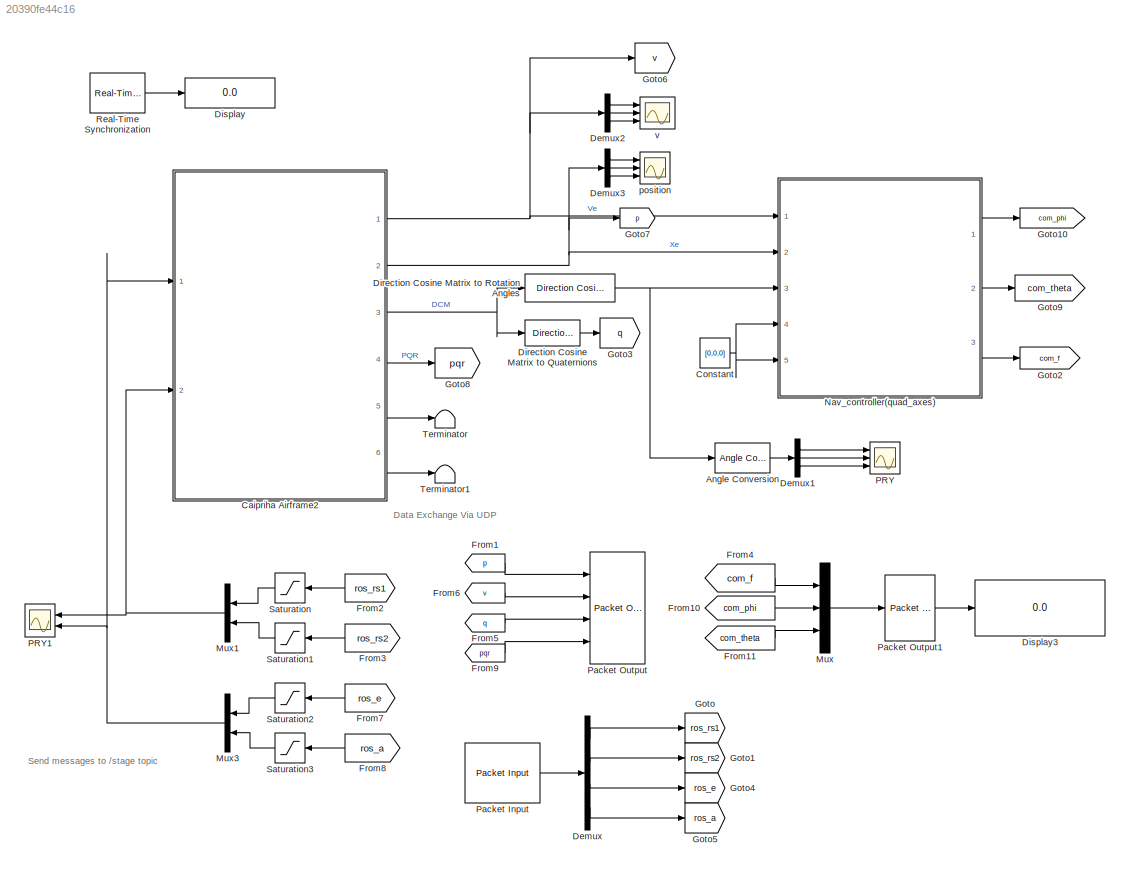
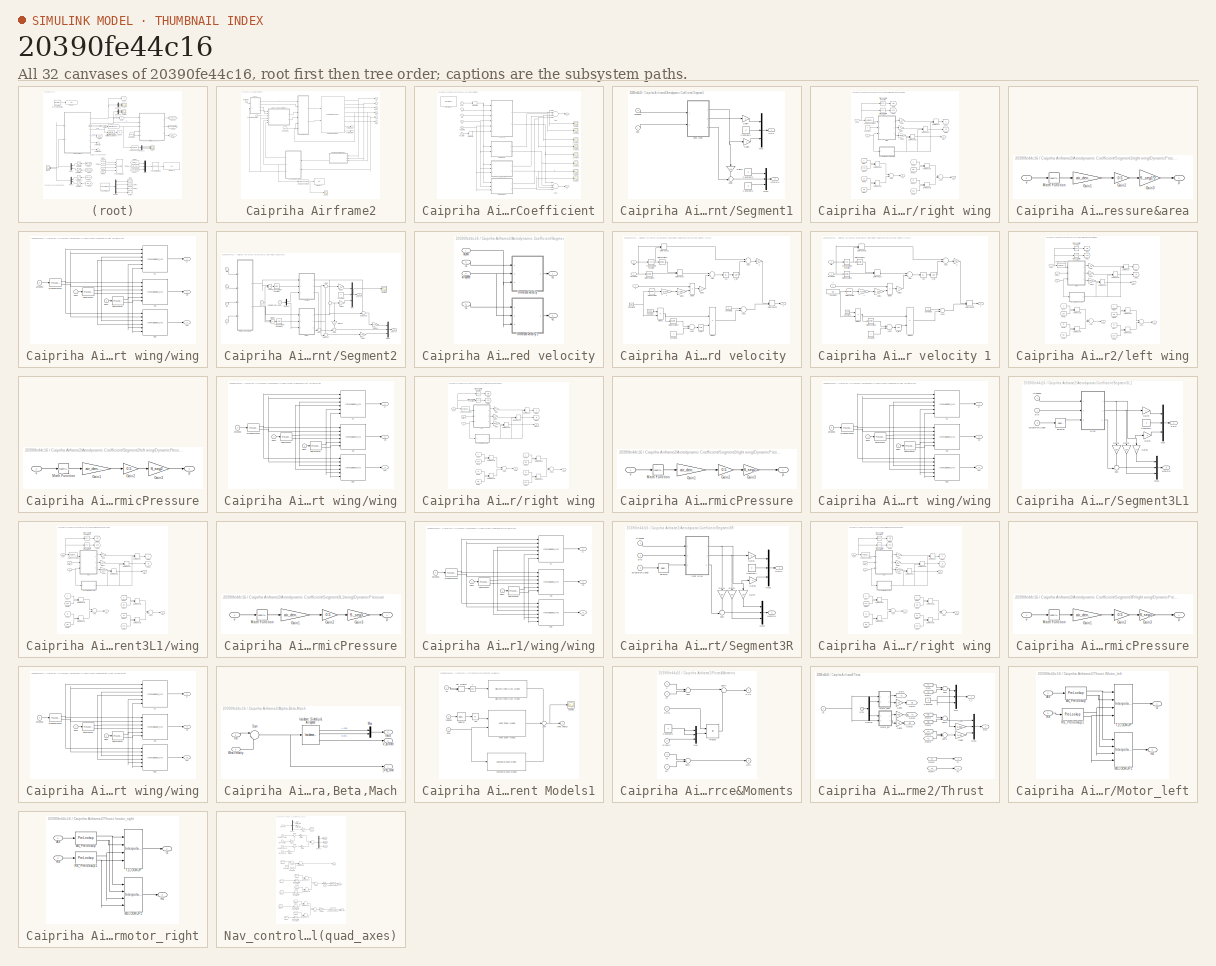
[diagram: thumbnail index - all 32 canvases of the model, root first then tree order]
MODEL slx_20390fe44c16
KIND model
CONFIG AbsTol = auto
CONFIG EnableMultiTasking = on
CONFIG FixedStep = 0.01
CONFIG MaxStep = auto
CONFIG MinStep = auto
CONFIG PreLoadFcn = TBS_Cai_simu_init_20170316\n
CONFIG RelTol = 1e-3
CONFIG SampleTimeConstraint = Unconstrained
CONFIG Solver = ode5
CONFIG SolverName = ode5
CONFIG StartTime = 0.0
CONFIG StopFcn = TBS_SIMULATION_LOG
CONFIG StopTime = 1
BLOCK [Reference] Angle Conversion  REF=aerolibconvert2/Angle Conversion
  Ports = [1, 1]
  SourceBlock = aerolibconvert2/Angle Conversion
  SourceProductBaseCode = AE
  SourceProductName = Aerospace Blockset
  SourceType = Angle Conversion
BLOCK [SubSystem] Caipriha Airframe2
  Ports = [2, 6]
  RequestExecContextInheritance = off
BLOCK [Reference] Caipriha Airframe2/6DOF (Quaternion)  REF=shared6dof/6DOF (Euler Angles)
  Ports = [2, 8]
  SourceBlock = shared6dof/6DOF (Euler Angles)
  SourceProductBaseCode = AE
  SourceProductName = Aerospace Blockset
  SourceType = 6DOF EoM (Body Axis)
BLOCK [Inport] Caipriha Airframe2/Actuators (deg)RL
  IconDisplay = Port number
BLOCK [SubSystem] Caipriha Airframe2/Aerodynamic Coefficient
  Ports = [6, 2]
  RequestExecContextInheritance = off
BLOCK [Inport] Caipriha Airframe2/Aerodynamic Coefficient/Actuators
  IconDisplay = Port number
  Port = 3
BLOCK [Sum] Caipriha Airframe2/Aerodynamic Coefficient/Add
  InputSameDT = off
  Inputs = ++++
  OutDataTypeStr = Inherit: Inherit via internal rule
  Ports = [4, 1]
  SaturateOnIntegerOverflow = off
BLOCK [Sum] Caipriha Airframe2/Aerodynamic Coefficient/Add1
  InputSameDT = off
  Inputs = ++++
  OutDataTypeStr = Inherit: Inherit via internal rule
  Ports = [4, 1]
  SaturateOnIntegerOverflow = off
BLOCK [Reference] Caipriha Airframe2/Aerodynamic Coefficient/DocBlock  REF=simulink/Model-Wide
Utilities/DocBlock
  Ports = []
  SourceBlock = simulink/Model-Wide\nUtilities/DocBlock
  SourceProductBaseCode = SL
  SourceProductName = Simulink
  SourceType = DocBlock
  UserDataPersistent = on
BLOCK [Outport] Caipriha Airframe2/Aerodynamic Coefficient/F
  IconDisplay = Port number
BLOCK [Inport] Caipriha Airframe2/Aerodynamic Coefficient/Incid
  IconDisplay = Port number
  Port = 5
BLOCK [Outport] Caipriha Airframe2/Aerodynamic Coefficient/M
  IconDisplay = Port number
  Port = 2
BLOCK [Scope] Caipriha Airframe2/Aerodynamic Coefficient/Scope
  Floating = off
  NumInputPorts = 1
  Ports = [1]
  ScopeSpecificationString = Simulink.scopes.TimeScopeBlockCfg('CurrentConfiguration', extmgr.ConfigurationSet(extmgr.Configuration('Core','General UI',true),extmgr.Configuration('Core','Source UI',true),extmgr.Configuration('Sources','WiredSimulink',true,'DataLoggingVariableName','ScopeData1'),extmgr.Configuration('Visuals','Time Domain',true,'SerializedDisplays',{struct('MinYLimReal','-1.16913','MaxYLimReal','0.1299','YLabe...<+1399ch>
BLOCK [Scope] Caipriha Airframe2/Aerodynamic Coefficient/Scope1
  Floating = off
  NumInputPorts = 1
  Ports = [1]
  ScopeSpecificationString = Simulink.scopes.TimeScopeBlockCfg('CurrentConfiguration', extmgr.ConfigurationSet(extmgr.Configuration('Core','General UI',true),extmgr.Configuration('Core','Source UI',true),extmgr.Configuration('Sources','WiredSimulink',true,'DataLoggingVariableName','ScopeData2'),extmgr.Configuration('Visuals','Time Domain',true,'SerializedDisplays',{struct('MinYLimReal','-0.19602','MaxYLimReal','0.16519','YLab...<+1401ch>
BLOCK [Scope] Caipriha Airframe2/Aerodynamic Coefficient/Scope2
  Floating = off
  NumInputPorts = 1
  Ports = [1]
  ScopeSpecificationString = Simulink.scopes.TimeScopeBlockCfg('CurrentConfiguration', extmgr.ConfigurationSet(extmgr.Configuration('Core','General UI',true),extmgr.Configuration('Core','Source UI',true),extmgr.Configuration('Sources','WiredSimulink',true,'DataLoggingVariableName','ScopeData3'),extmgr.Configuration('Visuals','Time Domain',true,'SerializedDisplays',{struct('MinYLimReal','-0.00659','MaxYLimReal','0.00073','YLab...<+1404ch>
BLOCK [Scope] Caipriha Airframe2/Aerodynamic Coefficient/Scope3
  Floating = off
  NumInputPorts = 1
  Ports = [1]
  ScopeSpecificationString = Simulink.scopes.TimeScopeBlockCfg('CurrentConfiguration', extmgr.ConfigurationSet(extmgr.Configuration('Core','General UI',true),extmgr.Configuration('Core','Source UI',true),extmgr.Configuration('Sources','WiredSimulink',true,'DataLoggingVariableName','ScopeData4'),extmgr.Configuration('Visuals','Time Domain',true,'SerializedDisplays',{struct('MinYLimReal','-0.00659','MaxYLimReal','0.00073','YLab...<+1407ch>
BLOCK [Scope] Caipriha Airframe2/Aerodynamic Coefficient/Scope4
  Floating = off
  NumInputPorts = 1
  Ports = [1]
  ScopeSpecificationString = Simulink.scopes.TimeScopeBlockCfg('CurrentConfiguration', extmgr.ConfigurationSet(extmgr.Configuration('Core','General UI',true),extmgr.Configuration('Core','Source UI',true),extmgr.Configuration('Sources','WiredSimulink',true,'DataLoggingVariableName','ScopeData5'),extmgr.Configuration('Visuals','Time Domain',true,'SerializedDisplays',{struct('MinYLimReal','-0.81466','MaxYLimReal','1.23466','YLab...<+1401ch>
BLOCK [Scope] Caipriha Airframe2/Aerodynamic Coefficient/Scope5
  Floating = off
  NumInputPorts = 1
  Ports = [1]
  ScopeSpecificationString = Simulink.scopes.TimeScopeBlockCfg('CurrentConfiguration', extmgr.ConfigurationSet(extmgr.Configuration('Core','General UI',true),extmgr.Configuration('Core','Source UI',true),extmgr.Configuration('Sources','WiredSimulink',true,'DataLoggingVariableName','ScopeData6'),extmgr.Configuration('Visuals','Time Domain',true,'SerializedDisplays',{struct('MinYLimReal','-0.0747','MaxYLimReal','0.07291','YLabe...<+1397ch>
BLOCK [Scope] Caipriha Airframe2/Aerodynamic Coefficient/Scope6
  Floating = off
  NumInputPorts = 1
  Ports = [1]
  ScopeSpecificationString = Simulink.scopes.TimeScopeBlockCfg('CurrentConfiguration', extmgr.ConfigurationSet(extmgr.Configuration('Core','General UI',true),extmgr.Configuration('Core','Source UI',true),extmgr.Configuration('Sources','WiredSimulink',true,'DataLoggingVariableName','ScopeData7'),extmgr.Configuration('Visuals','Time Domain',true,'SerializedDisplays',{struct('MinYLimReal','-1.37266','MaxYLimReal','0.5368','YLabe...<+1402ch>
BLOCK [Scope] Caipriha Airframe2/Aerodynamic Coefficient/Scope7
  Floating = off
  NumInputPorts = 1
  Ports = [1]
  ScopeSpecificationString = Simulink.scopes.TimeScopeBlockCfg('CurrentConfiguration', extmgr.ConfigurationSet(extmgr.Configuration('Core','General UI',true),extmgr.Configuration('Core','Source UI',true),extmgr.Configuration('Sources','WiredSimulink',true,'DataLoggingVariableName','ScopeData8'),extmgr.Configuration('Visuals','Time Domain',true,'SerializedDisplays',{struct('MinYLimReal','-0.83641','MaxYLimReal','1.68084','YLab...<+1407ch>
BLOCK [SubSystem] Caipriha Airframe2/Aerodynamic Coefficient/Segment1
  Ports = [2, 2]
  RequestExecContextInheritance = off
BLOCK [Sum] Caipriha Airframe2/Aerodynamic Coefficient/Segment1/Add5
  IconShape = round
  InputSameDT = off
  Inputs = ++|
  OutDataTypeStr = Inherit: Inherit via internal rule
  Ports = [2, 1]
  SaturateOnIntegerOverflow = off
BLOCK [Inport] Caipriha Airframe2/Aerodynamic Coefficient/Segment1/Airspeed
  IconDisplay = Port number
  Port = 2
BLOCK [Constant] Caipriha Airframe2/Aerodynamic Coefficient/Segment1/Constant1
  Value = 0
BLOCK [Constant] Caipriha Airframe2/Aerodynamic Coefficient/Segment1/Constant2
  Value = 0
BLOCK [Constant] Caipriha Airframe2/Aerodynamic Coefficient/Segment1/Constant3
  Value = 0
BLOCK [Outport] Caipriha Airframe2/Aerodynamic Coefficient/Segment1/F(3*1)
  IconDisplay = Port number
BLOCK [Gain] Caipriha Airframe2/Aerodynamic Coefficient/Segment1/Gain11
  Gain = L1X
  OutDataTypeStr = Inherit: Inherit via internal rule
  ParamDataTypeStr = Inherit: Inherit via internal rule
  SaturateOnIntegerOverflow = off
BLOCK [Gain] Caipriha Airframe2/Aerodynamic Coefficient/Segment1/Gain3
  Gain = -1
  OutDataTypeStr = Inherit: Inherit via internal rule
  ParamDataTypeStr = Inherit: Inherit via internal rule
  SaturateOnIntegerOverflow = off
BLOCK [Gain] Caipriha Airframe2/Aerodynamic Coefficient/Segment1/Gain4
  Gain = -1
  OutDataTypeStr = Inherit: Inherit via internal rule
  ParamDataTypeStr = Inherit: Inherit via internal rule
  SaturateOnIntegerOverflow = off
BLOCK [Outport] Caipriha Airframe2/Aerodynamic Coefficient/Segment1/Mcg(3*1)
  IconDisplay = Port number
  Port = 2
BLOCK [Mux] Caipriha Airframe2/Aerodynamic Coefficient/Segment1/Mux
  DisplayOption = bar
  Inputs = 3
  Ports = [3, 1]
BLOCK [Mux] Caipriha Airframe2/Aerodynamic Coefficient/Segment1/Mux1
  DisplayOption = bar
  Inputs = 3
  Ports = [3, 1]
BLOCK [Inport] Caipriha Airframe2/Aerodynamic Coefficient/Segment1/alfa
  IconDisplay = Port number
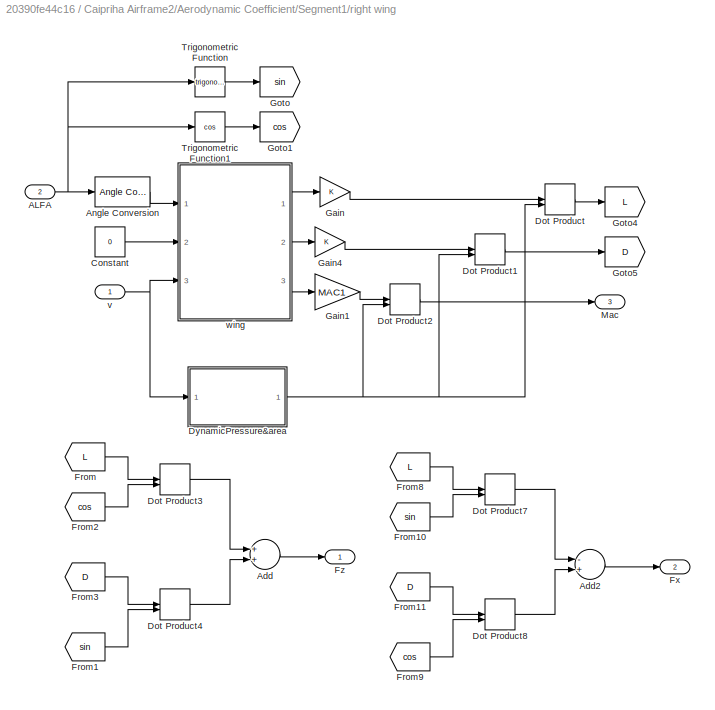
BLOCK [SubSystem] Caipriha Airframe2/Aerodynamic Coefficient/Segment1/right wing
  Ports = [2, 3]
  RequestExecContextInheritance = off
BLOCK [Inport] Caipriha Airframe2/Aerodynamic Coefficient/Segment1/right wing/ALFA 
  IconDisplay = Port number
  Port = 2
BLOCK [Sum] Caipriha Airframe2/Aerodynamic Coefficient/Segment1/right wing/Add
  InputSameDT = off
  OutDataTypeStr = Inherit: Inherit via internal rule
  Ports = [2, 1]
  SaturateOnIntegerOverflow = off
BLOCK [Sum] Caipriha Airframe2/Aerodynamic Coefficient/Segment1/right wing/Add2
  InputSameDT = off
  Inputs = -+
  OutDataTypeStr = Inherit: Inherit via internal rule
  Ports = [2, 1]
  SaturateOnIntegerOverflow = off
BLOCK [Reference] Caipriha Airframe2/Aerodynamic Coefficient/Segment1/right wing/Angle Conversion  REF=aerolibconvert2/Angle Conversion
  Ports = [1, 1]
  SourceBlock = aerolibconvert2/Angle Conversion
  SourceProductBaseCode = AE
  SourceProductName = Aerospace Blockset
  SourceType = Angle Conversion
BLOCK [Constant] Caipriha Airframe2/Aerodynamic Coefficient/Segment1/right wing/Constant
  Value = 0
BLOCK [DotProduct] Caipriha Airframe2/Aerodynamic Coefficient/Segment1/right wing/Dot Product
  OutDataTypeStr = Inherit: Inherit via internal rule
BLOCK [DotProduct] Caipriha Airframe2/Aerodynamic Coefficient/Segment1/right wing/Dot Product1
  OutDataTypeStr = Inherit: Inherit via internal rule
BLOCK [DotProduct] Caipriha Airframe2/Aerodynamic Coefficient/Segment1/right wing/Dot Product2
  OutDataTypeStr = Inherit: Inherit via internal rule
BLOCK [DotProduct] Caipriha Airframe2/Aerodynamic Coefficient/Segment1/right wing/Dot Product3
  OutDataTypeStr = Inherit: Inherit via internal rule
BLOCK [DotProduct] Caipriha Airframe2/Aerodynamic Coefficient/Segment1/right wing/Dot Product4
  OutDataTypeStr = Inherit: Inherit via internal rule
BLOCK [DotProduct] Caipriha Airframe2/Aerodynamic Coefficient/Segment1/right wing/Dot Product7
  OutDataTypeStr = Inherit: Inherit via internal rule
BLOCK [DotProduct] Caipriha Airframe2/Aerodynamic Coefficient/Segment1/right wing/Dot Product8
  OutDataTypeStr = Inherit: Inherit via internal rule
BLOCK [SubSystem] Caipriha Airframe2/Aerodynamic Coefficient/Segment1/right wing/DynamicPressure&area
  Ports = [1, 1]
  RequestExecContextInheritance = off
BLOCK [Gain] Caipriha Airframe2/Aerodynamic Coefficient/Segment1/right wing/DynamicPressure&area/Gain1
  Gain = air_density
  OutDataTypeStr = Inherit: Inherit via internal rule
  ParamDataTypeStr = Inherit: Inherit via internal rule
  SaturateOnIntegerOverflow = off
BLOCK [Gain] Caipriha Airframe2/Aerodynamic Coefficient/Segment1/right wing/DynamicPressure&area/Gain2
  Gain = 0.5
  OutDataTypeStr = Inherit: Inherit via internal rule
  ParamDataTypeStr = Inherit: Inherit via internal rule
  SaturateOnIntegerOverflow = off
BLOCK [Gain] Caipriha Airframe2/Aerodynamic Coefficient/Segment1/right wing/DynamicPressure&area/Gain3
  Gain = S_seg1*2
  OutDataTypeStr = Inherit: Inherit via internal rule
  ParamDataTypeStr = Inherit: Inherit via internal rule
  SaturateOnIntegerOverflow = off
BLOCK [Math] Caipriha Airframe2/Aerodynamic Coefficient/Segment1/right wing/DynamicPressure&area/Math Function
  Operator = magnitude^2
  Ports = [1, 1]
BLOCK [Outport] Caipriha Airframe2/Aerodynamic Coefficient/Segment1/right wing/DynamicPressure&area/p
  IconDisplay = Port number
BLOCK [Inport] Caipriha Airframe2/Aerodynamic Coefficient/Segment1/right wing/DynamicPressure&area/v
  IconDisplay = Port number
BLOCK [From] Caipriha Airframe2/Aerodynamic Coefficient/Segment1/right wing/From
  GotoTag = L
BLOCK [From] Caipriha Airframe2/Aerodynamic Coefficient/Segment1/right wing/From1
  GotoTag = sin
BLOCK [From] Caipriha Airframe2/Aerodynamic Coefficient/Segment1/right wing/From10
  GotoTag = sin
BLOCK [From] Caipriha Airframe2/Aerodynamic Coefficient/Segment1/right wing/From11
  GotoTag = D
BLOCK [From] Caipriha Airframe2/Aerodynamic Coefficient/Segment1/right wing/From2
  GotoTag = cos
BLOCK [From] Caipriha Airframe2/Aerodynamic Coefficient/Segment1/right wing/From3
  GotoTag = D
BLOCK [From] Caipriha Airframe2/Aerodynamic Coefficient/Segment1/right wing/From8
  GotoTag = L
BLOCK [From] Caipriha Airframe2/Aerodynamic Coefficient/Segment1/right wing/From9
  GotoTag = cos
BLOCK [Outport] Caipriha Airframe2/Aerodynamic Coefficient/Segment1/right wing/Fx
  IconDisplay = Port number
  Port = 2
BLOCK [Outport] Caipriha Airframe2/Aerodynamic Coefficient/Segment1/right wing/Fz
  IconDisplay = Port number
BLOCK [Gain] Caipriha Airframe2/Aerodynamic Coefficient/Segment1/right wing/Gain
  OutDataTypeStr = Inherit: Inherit via internal rule
  ParamDataTypeStr = Inherit: Inherit via internal rule
  SaturateOnIntegerOverflow = off
BLOCK [Gain] Caipriha Airframe2/Aerodynamic Coefficient/Segment1/right wing/Gain1
  Gain = MAC1
  OutDataTypeStr = Inherit: Inherit via internal rule
  ParamDataTypeStr = Inherit: Inherit via internal rule
  SaturateOnIntegerOverflow = off
BLOCK [Gain] Caipriha Airframe2/Aerodynamic Coefficient/Segment1/right wing/Gain4
  OutDataTypeStr = Inherit: Inherit via internal rule
  ParamDataTypeStr = Inherit: Inherit via internal rule
  SaturateOnIntegerOverflow = off
BLOCK [Goto] Caipriha Airframe2/Aerodynamic Coefficient/Segment1/right wing/Goto
  GotoTag = sin
BLOCK [Goto] Caipriha Airframe2/Aerodynamic Coefficient/Segment1/right wing/Goto1
  GotoTag = cos
BLOCK [Goto] Caipriha Airframe2/Aerodynamic Coefficient/Segment1/right wing/Goto4
  GotoTag = L
BLOCK [Goto] Caipriha Airframe2/Aerodynamic Coefficient/Segment1/right wing/Goto5
  GotoTag = D
BLOCK [Outport] Caipriha Airframe2/Aerodynamic Coefficient/Segment1/right wing/Mac
  IconDisplay = Port number
  Port = 3
BLOCK [Trigonometry] Caipriha Airframe2/Aerodynamic Coefficient/Segment1/right wing/Trigonometric Function
  Ports = [1, 1]
BLOCK [Trigonometry] Caipriha Airframe2/Aerodynamic Coefficient/Segment1/right wing/Trigonometric Function1
  Operator = cos
  Ports = [1, 1]
BLOCK [Inport] Caipriha Airframe2/Aerodynamic Coefficient/Segment1/right wing/v
  IconDisplay = Port number
BLOCK [SubSystem] Caipriha Airframe2/Aerodynamic Coefficient/Segment1/right wing/wing
  Ports = [3, 3]
  RequestExecContextInheritance = off
BLOCK [PreLookup] Caipriha Airframe2/Aerodynamic Coefficient/Segment1/right wing/wing/AirspeedLookup
  BeginIndexSearchUsingPreviousIndexResult = on
  BreakpointsData = as
  ExtrapMethod = Linear
  InputPortMap = u0
  Ports = [1, 2]
BLOCK [Inport] Caipriha Airframe2/Aerodynamic Coefficient/Segment1/right wing/wing/Alpha
  IconDisplay = Port number
BLOCK [PreLookup] Caipriha Airframe2/Aerodynamic Coefficient/Segment1/right wing/wing/AlphaLookup
  BeginIndexSearchUsingPreviousIndexResult = on
  BreakpointsData = alpha_vec_0
  ExtrapMethod = Linear
  InputPortMap = u0
  Ports = [1, 2]
BLOCK [Interpolation_n-D] Caipriha Airframe2/Aerodynamic Coefficient/Segment1/right wing/wing/CD
  DiagnosticForOutOfRangeInput = Warning
  ExtrapMethod = Clip
  InputPortMap = u0,u1,u2,u3,u4,u5
  IntermediateResultsDataTypeStr = Inherit: Inherit via internal rule
  InternalRulePriority = Speed
  NumberOfTableDimensions = 3
  Ports = [6, 1]
  Table = ORIGIN_CD
BLOCK [Interpolation_n-D] Caipriha Airframe2/Aerodynamic Coefficient/Segment1/right wing/wing/CD1
  DiagnosticForOutOfRangeInput = Warning
  ExtrapMethod = Clip
  InputPortMap = u0,u1,u2,u3,u4,u5
  IntermediateResultsDataTypeStr = Inherit: Inherit via internal rule
  InternalRulePriority = Speed
  NumberOfTableDimensions = 3
  Ports = [6, 1]
  Table = ORIGIN_CM
BLOCK [Interpolation_n-D] Caipriha Airframe2/Aerodynamic Coefficient/Segment1/right wing/wing/CL
  DiagnosticForOutOfRangeInput = Warning
  ExtrapMethod = Clip
  InputPortMap = u0,u1,u2,u3,u4,u5
  IntermediateResultsDataTypeStr = Inherit: Inherit via internal rule
  InternalRulePriority = Speed
  NumberOfTableDimensions = 3
  Ports = [6, 1]
  Table = ORIGIN_CL
BLOCK [Inport] Caipriha Airframe2/Aerodynamic Coefficient/Segment1/right wing/wing/Delta
  IconDisplay = Port number
  Port = 2
BLOCK [PreLookup] Caipriha Airframe2/Aerodynamic Coefficient/Segment1/right wing/wing/DeltaLookup
  BeginIndexSearchUsingPreviousIndexResult = on
  BreakpointsData = ORIGIN_DELTA
  ExtrapMethod = Linear
  InputPortMap = u0
  Ports = [1, 2]
BLOCK [Inport] Caipriha Airframe2/Aerodynamic Coefficient/Segment1/right wing/wing/airspeed
  IconDisplay = Port number
  Port = 3
BLOCK [Outport] Caipriha Airframe2/Aerodynamic Coefficient/Segment1/right wing/wing/cd
  IconDisplay = Port number
  Port = 2
BLOCK [Outport] Caipriha Airframe2/Aerodynamic Coefficient/Segment1/right wing/wing/cl
  IconDisplay = Port number
BLOCK [Outport] Caipriha Airframe2/Aerodynamic Coefficient/Segment1/right wing/wing/cm
  IconDisplay = Port number
  Port = 3
BLOCK [SubSystem] Caipriha Airframe2/Aerodynamic Coefficient/Segment2
  Ports = [6, 2]
  RequestExecContextInheritance = off
BLOCK [Sum] Caipriha Airframe2/Aerodynamic Coefficient/Segment2/Add1
  IconShape = round
  InputSameDT = off
  Inputs = ++|
  OutDataTypeStr = Inherit: Inherit via internal rule
  Ports = [2, 1]
  SaturateOnIntegerOverflow = off
BLOCK [Sum] Caipriha Airframe2/Aerodynamic Coefficient/Segment2/Add3
  IconShape = round
  InputSameDT = off
  Inputs = |++
  OutDataTypeStr = Inherit: Inherit via internal rule
  Ports = [2, 1]
  SaturateOnIntegerOverflow = off
BLOCK [Sum] Caipriha Airframe2/Aerodynamic Coefficient/Segment2/Add5
  IconShape = round
  InputSameDT = off
  Inputs = ++|
  OutDataTypeStr = Inherit: Inherit via internal rule
  Ports = [2, 1]
  SaturateOnIntegerOverflow = off
BLOCK [Constant] Caipriha Airframe2/Aerodynamic Coefficient/Segment2/Constant1
  Value = 0
BLOCK [Demux] Caipriha Airframe2/Aerodynamic Coefficient/Segment2/Demux1
  DisplayOption = bar
  Outputs = 2
  Ports = [1, 2]
BLOCK [Product] Caipriha Airframe2/Aerodynamic Coefficient/Segment2/Divide
  InputSameDT = off
  Inputs = /*
  OutDataTypeStr = Inherit: Inherit via internal rule
  Ports = [2, 1]
  RndMeth = Floor
  SaturateOnIntegerOverflow = off
BLOCK [Product] Caipriha Airframe2/Aerodynamic Coefficient/Segment2/Divide1
  InputSameDT = off
  Inputs = /*
  OutDataTypeStr = Inherit: Inherit via internal rule
  Ports = [2, 1]
  RndMeth = Floor
  SaturateOnIntegerOverflow = off
BLOCK [Outport] Caipriha Airframe2/Aerodynamic Coefficient/Segment2/F(3*1)
  IconDisplay = Port number
BLOCK [Gain] Caipriha Airframe2/Aerodynamic Coefficient/Segment2/Gain11
  Gain = L2X
  OutDataTypeStr = Inherit: Inherit via internal rule
  ParamDataTypeStr = Inherit: Inherit via internal rule
  SaturateOnIntegerOverflow = off
BLOCK [Gain] Caipriha Airframe2/Aerodynamic Coefficient/Segment2/Gain16
  Gain = L2Y
  OutDataTypeStr = Inherit: Inherit via internal rule
  ParamDataTypeStr = Inherit: Inherit via internal rule
  SaturateOnIntegerOverflow = off
BLOCK [Gain] Caipriha Airframe2/Aerodynamic Coefficient/Segment2/Gain3
  Gain = -1
  OutDataTypeStr = Inherit: Inherit via internal rule
  ParamDataTypeStr = Inherit: Inherit via internal rule
  SaturateOnIntegerOverflow = off
BLOCK [Gain] Caipriha Airframe2/Aerodynamic Coefficient/Segment2/Gain4
  Gain = -1
  OutDataTypeStr = Inherit: Inherit via internal rule
  ParamDataTypeStr = Inherit: Inherit via internal rule
  SaturateOnIntegerOverflow = off
BLOCK [Gain] Caipriha Airframe2/Aerodynamic Coefficient/Segment2/Gain9
  Gain = L2Y
  OutDataTypeStr = Inherit: Inherit via internal rule
  ParamDataTypeStr = Inherit: Inherit via internal rule
  SaturateOnIntegerOverflow = off
BLOCK [Sum] Caipriha Airframe2/Aerodynamic Coefficient/Segment2/L
  IconShape = round
  InputSameDT = off
  OutDataTypeStr = Inherit: Inherit via internal rule
  Ports = [2, 1]
  SaturateOnIntegerOverflow = off
BLOCK [Outport] Caipriha Airframe2/Aerodynamic Coefficient/Segment2/M(3*1)
  IconDisplay = Port number
  Port = 2
BLOCK [Mux] Caipriha Airframe2/Aerodynamic Coefficient/Segment2/Mux
  DisplayOption = bar
  Inputs = 3
  Ports = [3, 1]
BLOCK [Mux] Caipriha Airframe2/Aerodynamic Coefficient/Segment2/Mux1
  DisplayOption = bar
  Inputs = 3
  Ports = [3, 1]
BLOCK [Scope] Caipriha Airframe2/Aerodynamic Coefficient/Segment2/Scope
  Floating = off
  NumInputPorts = 1
  Ports = [1]
  ScopeSpecificationString = Simulink.scopes.TimeScopeBlockCfg('CurrentConfiguration', extmgr.ConfigurationSet(extmgr.Configuration('Core','General UI',true),extmgr.Configuration('Core','Source UI',true),extmgr.Configuration('Sources','WiredSimulink',true,'DataLoggingVariableName','ScopeData1'),extmgr.Configuration('Visuals','Time Domain',true,'SerializedDisplays',{struct('MinYLimReal','-6.7547','MaxYLimReal','8.02397','YLabe...<+1380ch>
BLOCK [Sum] Caipriha Airframe2/Aerodynamic Coefficient/Segment2/Subtract
  IconShape = round
  InputSameDT = off
  Inputs = +-|
  OutDataTypeStr = Inherit: Inherit via internal rule
  Ports = [2, 1]
  SaturateOnIntegerOverflow = off
BLOCK [Sum] Caipriha Airframe2/Aerodynamic Coefficient/Segment2/Subtract1
  IconShape = round
  InputSameDT = off
  Inputs = -+|
  OutDataTypeStr = Inherit: Inherit via internal rule
  Ports = [2, 1]
  SaturateOnIntegerOverflow = off
BLOCK [Inport] Caipriha Airframe2/Aerodynamic Coefficient/Segment2/T1 
  IconDisplay = Port number
  Port = 2
BLOCK [Inport] Caipriha Airframe2/Aerodynamic Coefficient/Segment2/T2
  IconDisplay = Port number
  Port = 3
BLOCK [Trigonometry] Caipriha Airframe2/Aerodynamic Coefficient/Segment2/Trigonometric Function
  Operator = atan
  OutputSignalType = real
  Ports = [1, 1]
BLOCK [Trigonometry] Caipriha Airframe2/Aerodynamic Coefficient/Segment2/Trigonometric Function1
  Operator = atan
  Ports = [1, 1]
BLOCK [Inport] Caipriha Airframe2/Aerodynamic Coefficient/Segment2/V
  IconDisplay = Port number
  Port = 4
BLOCK [Inport] Caipriha Airframe2/Aerodynamic Coefficient/Segment2/Vb_z
  IconDisplay = Port number
  Port = 6
BLOCK [Inport] Caipriha Airframe2/Aerodynamic Coefficient/Segment2/actuatorsRL(deg) 
  IconDisplay = Port number
  Port = 5
BLOCK [Inport] Caipriha Airframe2/Aerodynamic Coefficient/Segment2/alfa
  IconDisplay = Port number
BLOCK [SubSystem] Caipriha Airframe2/Aerodynamic Coefficient/Segment2/immersed velocity
  Ports = [4, 2]
  RequestExecContextInheritance = off
BLOCK [SubSystem] Caipriha Airframe2/Aerodynamic Coefficient/Segment2/immersed velocity/Immersed velocity 
  Ports = [3, 1]
  RequestExecContextInheritance = off
BLOCK [Gain] Caipriha Airframe2/Aerodynamic Coefficient/Segment2/immersed velocity/Immersed velocity /A
  Gain = 0.5*pi
  OutDataTypeStr = Inherit: Inherit via internal rule
  ParamDataTypeStr = Inherit: Inherit via internal rule
  SaturateOnIntegerOverflow = off
BLOCK [Abs] Caipriha Airframe2/Aerodynamic Coefficient/Segment2/immersed velocity/Immersed velocity /Abs
  SaturateOnIntegerOverflow = off
BLOCK [Sum] Caipriha Airframe2/Aerodynamic Coefficient/Segment2/immersed velocity/Immersed velocity /Add
  InputSameDT = off
  OutDataTypeStr = Inherit: Inherit via internal rule
  Ports = [2, 1]
  SaturateOnIntegerOverflow = off
BLOCK [Sum] Caipriha Airframe2/Aerodynamic Coefficient/Segment2/immersed velocity/Immersed velocity /Add1
  InputSameDT = off
  OutDataTypeStr = Inherit: Inherit via internal rule
  Ports = [2, 1]
  SaturateOnIntegerOverflow = off
BLOCK [Sum] Caipriha Airframe2/Aerodynamic Coefficient/Segment2/immersed velocity/Immersed velocity /Add2
  InputSameDT = off
  OutDataTypeStr = Inherit: Inherit via internal rule
  Ports = [2, 1]
  SaturateOnIntegerOverflow = off
BLOCK [Sum] Caipriha Airframe2/Aerodynamic Coefficient/Segment2/immersed velocity/Immersed velocity /Add3
  InputSameDT = off
  OutDataTypeStr = Inherit: Inherit via internal rule
  Ports = [2, 1]
  SaturateOnIntegerOverflow = off
BLOCK [Constant] Caipriha Airframe2/Aerodynamic Coefficient/Segment2/immersed velocity/Immersed velocity /Constant
  Value = 0.166
BLOCK [Constant] Caipriha Airframe2/Aerodynamic Coefficient/Segment2/immersed velocity/Immersed velocity /Constant1
  Value = 0.2
BLOCK [Constant] Caipriha Airframe2/Aerodynamic Coefficient/Segment2/immersed velocity/Immersed velocity /Constant2
BLOCK [Constant] Caipriha Airframe2/Aerodynamic Coefficient/Segment2/immersed velocity/Immersed velocity /Constant3
BLOCK [Product] Caipriha Airframe2/Aerodynamic Coefficient/Segment2/immersed velocity/Immersed velocity /Divide
  InputSameDT = off
  Inputs = */
  OutDataTypeStr = Inherit: Inherit via internal rule
  Ports = [2, 1]
  RndMeth = Floor
  SaturateOnIntegerOverflow = off
BLOCK [Product] Caipriha Airframe2/Aerodynamic Coefficient/Segment2/immersed velocity/Immersed velocity /Divide1
  InputSameDT = off
  Inputs = */
  OutDataTypeStr = Inherit: Inherit via internal rule
  Ports = [2, 1]
  RndMeth = Floor
  SaturateOnIntegerOverflow = off
BLOCK [Product] Caipriha Airframe2/Aerodynamic Coefficient/Segment2/immersed velocity/Immersed velocity /Divide2
  InputSameDT = off
  Inputs = */
  OutDataTypeStr = Inherit: Inherit via internal rule
  Ports = [2, 1]
  RndMeth = Floor
  SaturateOnIntegerOverflow = off
BLOCK [DotProduct] Caipriha Airframe2/Aerodynamic Coefficient/Segment2/immersed velocity/Immersed velocity /Dot Product
  OutDataTypeStr = Inherit: Inherit via internal rule
BLOCK [DotProduct] Caipriha Airframe2/Aerodynamic Coefficient/Segment2/immersed velocity/Immersed velocity /Dot Product1
  OutDataTypeStr = Inherit: Inherit via internal rule
BLOCK [DotProduct] Caipriha Airframe2/Aerodynamic Coefficient/Segment2/immersed velocity/Immersed velocity /Dot Product2
  OutDataTypeStr = Inherit: Inherit via internal rule
BLOCK [Gain] Caipriha Airframe2/Aerodynamic Coefficient/Segment2/immersed velocity/Immersed velocity /Gain1
  Gain = 1.225
  OutDataTypeStr = Inherit: Inherit via internal rule
  ParamDataTypeStr = Inherit: Inherit via internal rule
  SaturateOnIntegerOverflow = off
BLOCK [Gain] Caipriha Airframe2/Aerodynamic Coefficient/Segment2/immersed velocity/Immersed velocity /Gain2
  Gain = 2
  OutDataTypeStr = Inherit: Inherit via internal rule
  ParamDataTypeStr = Inherit: Inherit via internal rule
  SaturateOnIntegerOverflow = off
BLOCK [Math] Caipriha Airframe2/Aerodynamic Coefficient/Segment2/immersed velocity/Immersed velocity /Math Function
  Operator = magnitude^2
  Ports = [1, 1]
BLOCK [Math] Caipriha Airframe2/Aerodynamic Coefficient/Segment2/immersed velocity/Immersed velocity /Math Function1
  Operator = magnitude^2
  Ports = [1, 1]
BLOCK [Math] Caipriha Airframe2/Aerodynamic Coefficient/Segment2/immersed velocity/Immersed velocity /Math Function2
  Operator = magnitude^2
  Ports = [1, 1]
BLOCK [Math] Caipriha Airframe2/Aerodynamic Coefficient/Segment2/immersed velocity/Immersed velocity /Math Function3
  Operator = magnitude^2
  Ports = [1, 1]
BLOCK [Inport] Caipriha Airframe2/Aerodynamic Coefficient/Segment2/immersed velocity/Immersed velocity /T
  IconDisplay = Port number
BLOCK [Trigonometry] Caipriha Airframe2/Aerodynamic Coefficient/Segment2/immersed velocity/Immersed velocity /Trigonometric Function
  Operator = cos
  Ports = [1, 1]
BLOCK [Inport] Caipriha Airframe2/Aerodynamic Coefficient/Segment2/immersed velocity/Immersed velocity /airspeed
  IconDisplay = Port number
  Port = 2
BLOCK [Inport] Caipriha Airframe2/Aerodynamic Coefficient/Segment2/immersed velocity/Immersed velocity /alfa
  IconDisplay = Port number
  Port = 3
BLOCK [Gain] Caipriha Airframe2/Aerodynamic Coefficient/Segment2/immersed velocity/Immersed velocity /u
  Gain = 0.5
  OutDataTypeStr = Inherit: Inherit via internal rule
  ParamDataTypeStr = Inherit: Inherit via internal rule
  SaturateOnIntegerOverflow = off
BLOCK [Sqrt] Caipriha Airframe2/Aerodynamic Coefficient/Segment2/immersed velocity/Immersed velocity /u_far
BLOCK [Sqrt] Caipriha Airframe2/Aerodynamic Coefficient/Segment2/immersed velocity/Immersed velocity /u_far1
BLOCK [Outport] Caipriha Airframe2/Aerodynamic Coefficient/Segment2/immersed velocity/Immersed velocity /v
  IconDisplay = Port number
BLOCK [SubSystem] Caipriha Airframe2/Aerodynamic Coefficient/Segment2/immersed velocity/Immersed velocity 1
  Ports = [3, 1]
  RequestExecContextInheritance = off
BLOCK [Gain] Caipriha Airframe2/Aerodynamic Coefficient/Segment2/immersed velocity/Immersed velocity 1/A
  Gain = 0.5*pi
  OutDataTypeStr = Inherit: Inherit via internal rule
  ParamDataTypeStr = Inherit: Inherit via internal rule
  SaturateOnIntegerOverflow = off
BLOCK [Abs] Caipriha Airframe2/Aerodynamic Coefficient/Segment2/immersed velocity/Immersed velocity 1/Abs
  SaturateOnIntegerOverflow = off
BLOCK [Sum] Caipriha Airframe2/Aerodynamic Coefficient/Segment2/immersed velocity/Immersed velocity 1/Add
  InputSameDT = off
  OutDataTypeStr = Inherit: Inherit via internal rule
  Ports = [2, 1]
  SaturateOnIntegerOverflow = off
BLOCK [Sum] Caipriha Airframe2/Aerodynamic Coefficient/Segment2/immersed velocity/Immersed velocity 1/Add1
  InputSameDT = off
  OutDataTypeStr = Inherit: Inherit via internal rule
  Ports = [2, 1]
  SaturateOnIntegerOverflow = off
BLOCK [Sum] Caipriha Airframe2/Aerodynamic Coefficient/Segment2/immersed velocity/Immersed velocity 1/Add2
  InputSameDT = off
  OutDataTypeStr = Inherit: Inherit via internal rule
  Ports = [2, 1]
  SaturateOnIntegerOverflow = off
BLOCK [Sum] Caipriha Airframe2/Aerodynamic Coefficient/Segment2/immersed velocity/Immersed velocity 1/Add3
  InputSameDT = off
  OutDataTypeStr = Inherit: Inherit via internal rule
  Ports = [2, 1]
  SaturateOnIntegerOverflow = off
BLOCK [Constant] Caipriha Airframe2/Aerodynamic Coefficient/Segment2/immersed velocity/Immersed velocity 1/Constant
  Value = 0.166
BLOCK [Constant] Caipriha Airframe2/Aerodynamic Coefficient/Segment2/immersed velocity/Immersed velocity 1/Constant1
  Value = 0.2
BLOCK [Constant] Caipriha Airframe2/Aerodynamic Coefficient/Segment2/immersed velocity/Immersed velocity 1/Constant2
BLOCK [Constant] Caipriha Airframe2/Aerodynamic Coefficient/Segment2/immersed velocity/Immersed velocity 1/Constant3
BLOCK [Product] Caipriha Airframe2/Aerodynamic Coefficient/Segment2/immersed velocity/Immersed velocity 1/Divide
  InputSameDT = off
  Inputs = */
  OutDataTypeStr = Inherit: Inherit via internal rule
  Ports = [2, 1]
  RndMeth = Floor
  SaturateOnIntegerOverflow = off
BLOCK [Product] Caipriha Airframe2/Aerodynamic Coefficient/Segment2/immersed velocity/Immersed velocity 1/Divide1
  InputSameDT = off
  Inputs = */
  OutDataTypeStr = Inherit: Inherit via internal rule
  Ports = [2, 1]
  RndMeth = Floor
  SaturateOnIntegerOverflow = off
BLOCK [Product] Caipriha Airframe2/Aerodynamic Coefficient/Segment2/immersed velocity/Immersed velocity 1/Divide2
  InputSameDT = off
  Inputs = */
  OutDataTypeStr = Inherit: Inherit via internal rule
  Ports = [2, 1]
  RndMeth = Floor
  SaturateOnIntegerOverflow = off
BLOCK [DotProduct] Caipriha Airframe2/Aerodynamic Coefficient/Segment2/immersed velocity/Immersed velocity 1/Dot Product
  OutDataTypeStr = Inherit: Inherit via internal rule
BLOCK [DotProduct] Caipriha Airframe2/Aerodynamic Coefficient/Segment2/immersed velocity/Immersed velocity 1/Dot Product1
  OutDataTypeStr = Inherit: Inherit via internal rule
BLOCK [DotProduct] Caipriha Airframe2/Aerodynamic Coefficient/Segment2/immersed velocity/Immersed velocity 1/Dot Product2
  OutDataTypeStr = Inherit: Inherit via internal rule
BLOCK [Gain] Caipriha Airframe2/Aerodynamic Coefficient/Segment2/immersed velocity/Immersed velocity 1/Gain1
  Gain = 1.225
  OutDataTypeStr = Inherit: Inherit via internal rule
  ParamDataTypeStr = Inherit: Inherit via internal rule
  SaturateOnIntegerOverflow = off
BLOCK [Gain] Caipriha Airframe2/Aerodynamic Coefficient/Segment2/immersed velocity/Immersed velocity 1/Gain2
  Gain = 2
  OutDataTypeStr = Inherit: Inherit via internal rule
  ParamDataTypeStr = Inherit: Inherit via internal rule
  SaturateOnIntegerOverflow = off
BLOCK [Math] Caipriha Airframe2/Aerodynamic Coefficient/Segment2/immersed velocity/Immersed velocity 1/Math Function
  Operator = magnitude^2
  Ports = [1, 1]
BLOCK [Math] Caipriha Airframe2/Aerodynamic Coefficient/Segment2/immersed velocity/Immersed velocity 1/Math Function1
  Operator = magnitude^2
  Ports = [1, 1]
BLOCK [Math] Caipriha Airframe2/Aerodynamic Coefficient/Segment2/immersed velocity/Immersed velocity 1/Math Function2
  Operator = magnitude^2
  Ports = [1, 1]
BLOCK [Math] Caipriha Airframe2/Aerodynamic Coefficient/Segment2/immersed velocity/Immersed velocity 1/Math Function3
  Operator = magnitude^2
  Ports = [1, 1]
BLOCK [Inport] Caipriha Airframe2/Aerodynamic Coefficient/Segment2/immersed velocity/Immersed velocity 1/T
  IconDisplay = Port number
BLOCK [Trigonometry] Caipriha Airframe2/Aerodynamic Coefficient/Segment2/immersed velocity/Immersed velocity 1/Trigonometric Function
  Operator = cos
  Ports = [1, 1]
BLOCK [Inport] Caipriha Airframe2/Aerodynamic Coefficient/Segment2/immersed velocity/Immersed velocity 1/airspeed
  IconDisplay = Port number
  Port = 2
BLOCK [Inport] Caipriha Airframe2/Aerodynamic Coefficient/Segment2/immersed velocity/Immersed velocity 1/alfa
  IconDisplay = Port number
  Port = 3
BLOCK [Gain] Caipriha Airframe2/Aerodynamic Coefficient/Segment2/immersed velocity/Immersed velocity 1/u
  Gain = 0.5
  OutDataTypeStr = Inherit: Inherit via internal rule
  ParamDataTypeStr = Inherit: Inherit via internal rule
  SaturateOnIntegerOverflow = off
BLOCK [Sqrt] Caipriha Airframe2/Aerodynamic Coefficient/Segment2/immersed velocity/Immersed velocity 1/u_far
BLOCK [Sqrt] Caipriha Airframe2/Aerodynamic Coefficient/Segment2/immersed velocity/Immersed velocity 1/u_far1
BLOCK [Outport] Caipriha Airframe2/Aerodynamic Coefficient/Segment2/immersed velocity/Immersed velocity 1/v
  IconDisplay = Port number
BLOCK [Inport] Caipriha Airframe2/Aerodynamic Coefficient/Segment2/immersed velocity/airspeed
  IconDisplay = Port number
  Port = 4
BLOCK [Inport] Caipriha Airframe2/Aerodynamic Coefficient/Segment2/immersed velocity/alpha
  IconDisplay = Port number
BLOCK [Inport] Caipriha Airframe2/Aerodynamic Coefficient/Segment2/immersed velocity/t1 
  IconDisplay = Port number
  Port = 2
BLOCK [Inport] Caipriha Airframe2/Aerodynamic Coefficient/Segment2/immersed velocity/t2
  IconDisplay = Port number
  Port = 3
BLOCK [Outport] Caipriha Airframe2/Aerodynamic Coefficient/Segment2/immersed velocity/v1
  IconDisplay = Port number
BLOCK [Outport] Caipriha Airframe2/Aerodynamic Coefficient/Segment2/immersed velocity/v2
  IconDisplay = Port number
  Port = 2
BLOCK [SubSystem] Caipriha Airframe2/Aerodynamic Coefficient/Segment2/left wing
  Ports = [3, 3]
  RequestExecContextInheritance = off
BLOCK [Inport] Caipriha Airframe2/Aerodynamic Coefficient/Segment2/left wing/ALFA 
  IconDisplay = Port number
  Port = 2
BLOCK [Sum] Caipriha Airframe2/Aerodynamic Coefficient/Segment2/left wing/Add
  InputSameDT = off
  OutDataTypeStr = Inherit: Inherit via internal rule
  Ports = [2, 1]
  SaturateOnIntegerOverflow = off
BLOCK [Sum] Caipriha Airframe2/Aerodynamic Coefficient/Segment2/left wing/Add1
  InputSameDT = off
  Inputs = -+
  OutDataTypeStr = Inherit: Inherit via internal rule
  Ports = [2, 1]
  SaturateOnIntegerOverflow = off
BLOCK [Reference] Caipriha Airframe2/Aerodynamic Coefficient/Segment2/left wing/Angle Conversion1  REF=aerolibconvert2/Angle Conversion
  Ports = [1, 1]
  SourceBlock = aerolibconvert2/Angle Conversion
  SourceProductBaseCode = AE
  SourceProductName = Aerospace Blockset
  SourceType = Angle Conversion
BLOCK [DotProduct] Caipriha Airframe2/Aerodynamic Coefficient/Segment2/left wing/Dot Product
  OutDataTypeStr = Inherit: Inherit via internal rule
BLOCK [DotProduct] Caipriha Airframe2/Aerodynamic Coefficient/Segment2/left wing/Dot Product1
  OutDataTypeStr = Inherit: Inherit via internal rule
BLOCK [DotProduct] Caipriha Airframe2/Aerodynamic Coefficient/Segment2/left wing/Dot Product2
  OutDataTypeStr = Inherit: Inherit via internal rule
BLOCK [DotProduct] Caipriha Airframe2/Aerodynamic Coefficient/Segment2/left wing/Dot Product3
  OutDataTypeStr = Inherit: Inherit via internal rule
BLOCK [DotProduct] Caipriha Airframe2/Aerodynamic Coefficient/Segment2/left wing/Dot Product4
  OutDataTypeStr = Inherit: Inherit via internal rule
BLOCK [DotProduct] Caipriha Airframe2/Aerodynamic Coefficient/Segment2/left wing/Dot Product5
  OutDataTypeStr = Inherit: Inherit via internal rule
BLOCK [DotProduct] Caipriha Airframe2/Aerodynamic Coefficient/Segment2/left wing/Dot Product6
  OutDataTypeStr = Inherit: Inherit via internal rule
BLOCK [SubSystem] Caipriha Airframe2/Aerodynamic Coefficient/Segment2/left wing/DynamicPressure
  Ports = [1, 1]
  RequestExecContextInheritance = off
BLOCK [Gain] Caipriha Airframe2/Aerodynamic Coefficient/Segment2/left wing/DynamicPressure/Gain1
  Gain = air_density
  OutDataTypeStr = Inherit: Inherit via internal rule
  ParamDataTypeStr = Inherit: Inherit via internal rule
  SaturateOnIntegerOverflow = off
BLOCK [Gain] Caipriha Airframe2/Aerodynamic Coefficient/Segment2/left wing/DynamicPressure/Gain2
  Gain = 0.5
  OutDataTypeStr = Inherit: Inherit via internal rule
  ParamDataTypeStr = Inherit: Inherit via internal rule
  SaturateOnIntegerOverflow = off
BLOCK [Gain] Caipriha Airframe2/Aerodynamic Coefficient/Segment2/left wing/DynamicPressure/Gain3
  Gain = S_seg2
  OutDataTypeStr = Inherit: Inherit via internal rule
  ParamDataTypeStr = Inherit: Inherit via internal rule
  SaturateOnIntegerOverflow = off
BLOCK [Math] Caipriha Airframe2/Aerodynamic Coefficient/Segment2/left wing/DynamicPressure/Math Function
  Operator = magnitude^2
  Ports = [1, 1]
BLOCK [Outport] Caipriha Airframe2/Aerodynamic Coefficient/Segment2/left wing/DynamicPressure/p
  IconDisplay = Port number
BLOCK [Inport] Caipriha Airframe2/Aerodynamic Coefficient/Segment2/left wing/DynamicPressure/v
  IconDisplay = Port number
BLOCK [From] Caipriha Airframe2/Aerodynamic Coefficient/Segment2/left wing/From
  GotoTag = L
BLOCK [From] Caipriha Airframe2/Aerodynamic Coefficient/Segment2/left wing/From1
  GotoTag = sin
BLOCK [From] Caipriha Airframe2/Aerodynamic Coefficient/Segment2/left wing/From2
  GotoTag = cos
BLOCK [From] Caipriha Airframe2/Aerodynamic Coefficient/Segment2/left wing/From3
  GotoTag = D
BLOCK [From] Caipriha Airframe2/Aerodynamic Coefficient/Segment2/left wing/From4
  GotoTag = L
BLOCK [From] Caipriha Airframe2/Aerodynamic Coefficient/Segment2/left wing/From5
  GotoTag = cos
BLOCK [From] Caipriha Airframe2/Aerodynamic Coefficient/Segment2/left wing/From6
  GotoTag = sin
BLOCK [From] Caipriha Airframe2/Aerodynamic Coefficient/Segment2/left wing/From7
  GotoTag = D
BLOCK [Outport] Caipriha Airframe2/Aerodynamic Coefficient/Segment2/left wing/FxR
  IconDisplay = Port number
  Port = 2
BLOCK [Outport] Caipriha Airframe2/Aerodynamic Coefficient/Segment2/left wing/FzR
  IconDisplay = Port number
BLOCK [Gain] Caipriha Airframe2/Aerodynamic Coefficient/Segment2/left wing/Gain
  OutDataTypeStr = Inherit: Inherit via internal rule
  ParamDataTypeStr = Inherit: Inherit via internal rule
  SaturateOnIntegerOverflow = off
BLOCK [Gain] Caipriha Airframe2/Aerodynamic Coefficient/Segment2/left wing/Gain1
  Gain = MAC2
  OutDataTypeStr = Inherit: Inherit via internal rule
  ParamDataTypeStr = Inherit: Inherit via internal rule
  SaturateOnIntegerOverflow = off
BLOCK [Gain] Caipriha Airframe2/Aerodynamic Coefficient/Segment2/left wing/Gain4
  Gain = 1.3
  OutDataTypeStr = Inherit: Inherit via internal rule
  ParamDataTypeStr = Inherit: Inherit via internal rule
  SaturateOnIntegerOverflow = off
BLOCK [Goto] Caipriha Airframe2/Aerodynamic Coefficient/Segment2/left wing/Goto
  GotoTag = sin
BLOCK [Goto] Caipriha Airframe2/Aerodynamic Coefficient/Segment2/left wing/Goto1
  GotoTag = cos
BLOCK [Goto] Caipriha Airframe2/Aerodynamic Coefficient/Segment2/left wing/Goto2
  GotoTag = L
BLOCK [Goto] Caipriha Airframe2/Aerodynamic Coefficient/Segment2/left wing/Goto3
  GotoTag = D
BLOCK [Outport] Caipriha Airframe2/Aerodynamic Coefficient/Segment2/left wing/MacL
  IconDisplay = Port number
  Port = 3
BLOCK [Trigonometry] Caipriha Airframe2/Aerodynamic Coefficient/Segment2/left wing/Trigonometric Function
  Ports = [1, 1]
BLOCK [Trigonometry] Caipriha Airframe2/Aerodynamic Coefficient/Segment2/left wing/Trigonometric Function1
  Operator = cos
  Ports = [1, 1]
BLOCK [Inport] Caipriha Airframe2/Aerodynamic Coefficient/Segment2/left wing/delta_L
  IconDisplay = Port number
  Port = 3
BLOCK [Inport] Caipriha Airframe2/Aerodynamic Coefficient/Segment2/left wing/v
  IconDisplay = Port number
BLOCK [SubSystem] Caipriha Airframe2/Aerodynamic Coefficient/Segment2/left wing/wing
  Ports = [3, 3]
  RequestExecContextInheritance = off
BLOCK [PreLookup] Caipriha Airframe2/Aerodynamic Coefficient/Segment2/left wing/wing/AirspeedLookup
  BeginIndexSearchUsingPreviousIndexResult = on
  BreakpointsData = as
  ExtrapMethod = Linear
  InputPortMap = u0
  Ports = [1, 2]
BLOCK [Inport] Caipriha Airframe2/Aerodynamic Coefficient/Segment2/left wing/wing/Alpha
  IconDisplay = Port number
BLOCK [PreLookup] Caipriha Airframe2/Aerodynamic Coefficient/Segment2/left wing/wing/AlphaLookup
  BeginIndexSearchUsingPreviousIndexResult = on
  BreakpointsData = alpha_vec_0
  ExtrapMethod = Linear
  InputPortMap = u0
  Ports = [1, 2]
BLOCK [Interpolation_n-D] Caipriha Airframe2/Aerodynamic Coefficient/Segment2/left wing/wing/CD
  DiagnosticForOutOfRangeInput = Warning
  ExtrapMethod = Clip
  InputPortMap = u0,u1,u2,u3,u4,u5
  IntermediateResultsDataTypeStr = Inherit: Inherit via internal rule
  InternalRulePriority = Speed
  NumberOfTableDimensions = 3
  Ports = [6, 1]
  Table = ORIGIN_CD
BLOCK [Interpolation_n-D] Caipriha Airframe2/Aerodynamic Coefficient/Segment2/left wing/wing/CD1
  DiagnosticForOutOfRangeInput = Warning
  ExtrapMethod = Clip
  InputPortMap = u0,u1,u2,u3,u4,u5
  IntermediateResultsDataTypeStr = Inherit: Inherit via internal rule
  InternalRulePriority = Speed
  NumberOfTableDimensions = 3
  Ports = [6, 1]
  Table = ORIGIN_CM
BLOCK [Interpolation_n-D] Caipriha Airframe2/Aerodynamic Coefficient/Segment2/left wing/wing/CL
  DiagnosticForOutOfRangeInput = Warning
  ExtrapMethod = Clip
  InputPortMap = u0,u1,u2,u3,u4,u5
  IntermediateResultsDataTypeStr = Inherit: Inherit via internal rule
  InternalRulePriority = Speed
  NumberOfTableDimensions = 3
  Ports = [6, 1]
  Table = ORIGIN_CL
BLOCK [Inport] Caipriha Airframe2/Aerodynamic Coefficient/Segment2/left wing/wing/Delta
  IconDisplay = Port number
  Port = 2
BLOCK [PreLookup] Caipriha Airframe2/Aerodynamic Coefficient/Segment2/left wing/wing/DeltaLookup
  BeginIndexSearchUsingPreviousIndexResult = on
  BreakpointsData = ORIGIN_DELTA
  ExtrapMethod = Linear
  InputPortMap = u0
  Ports = [1, 2]
BLOCK [Inport] Caipriha Airframe2/Aerodynamic Coefficient/Segment2/left wing/wing/airspeed
  IconDisplay = Port number
  Port = 3
BLOCK [Outport] Caipriha Airframe2/Aerodynamic Coefficient/Segment2/left wing/wing/cd
  IconDisplay = Port number
  Port = 2
BLOCK [Outport] Caipriha Airframe2/Aerodynamic Coefficient/Segment2/left wing/wing/cl
  IconDisplay = Port number
BLOCK [Outport] Caipriha Airframe2/Aerodynamic Coefficient/Segment2/left wing/wing/cm
  IconDisplay = Port number
  Port = 3
BLOCK [SubSystem] Caipriha Airframe2/Aerodynamic Coefficient/Segment2/right wing
  Ports = [3, 3]
  RequestExecContextInheritance = off
BLOCK [Inport] Caipriha Airframe2/Aerodynamic Coefficient/Segment2/right wing/ALFA 
  IconDisplay = Port number
  Port = 2
BLOCK [Sum] Caipriha Airframe2/Aerodynamic Coefficient/Segment2/right wing/Add
  InputSameDT = off
  OutDataTypeStr = Inherit: Inherit via internal rule
  Ports = [2, 1]
  SaturateOnIntegerOverflow = off
BLOCK [Sum] Caipriha Airframe2/Aerodynamic Coefficient/Segment2/right wing/Add1
  InputSameDT = off
  Inputs = -+
  OutDataTypeStr = Inherit: Inherit via internal rule
  Ports = [2, 1]
  SaturateOnIntegerOverflow = off
BLOCK [Reference] Caipriha Airframe2/Aerodynamic Coefficient/Segment2/right wing/Angle Conversion  REF=aerolibconvert2/Angle Conversion
  Ports = [1, 1]
  SourceBlock = aerolibconvert2/Angle Conversion
  SourceProductBaseCode = AE
  SourceProductName = Aerospace Blockset
  SourceType = Angle Conversion
BLOCK [DotProduct] Caipriha Airframe2/Aerodynamic Coefficient/Segment2/right wing/Dot Product
  OutDataTypeStr = Inherit: Inherit via internal rule
BLOCK [DotProduct] Caipriha Airframe2/Aerodynamic Coefficient/Segment2/right wing/Dot Product1
  OutDataTypeStr = Inherit: Inherit via internal rule
BLOCK [DotProduct] Caipriha Airframe2/Aerodynamic Coefficient/Segment2/right wing/Dot Product2
  OutDataTypeStr = Inherit: Inherit via internal rule
BLOCK [DotProduct] Caipriha Airframe2/Aerodynamic Coefficient/Segment2/right wing/Dot Product3
  OutDataTypeStr = Inherit: Inherit via internal rule
BLOCK [DotProduct] Caipriha Airframe2/Aerodynamic Coefficient/Segment2/right wing/Dot Product4
  OutDataTypeStr = Inherit: Inherit via internal rule
BLOCK [DotProduct] Caipriha Airframe2/Aerodynamic Coefficient/Segment2/right wing/Dot Product5
  OutDataTypeStr = Inherit: Inherit via internal rule
BLOCK [DotProduct] Caipriha Airframe2/Aerodynamic Coefficient/Segment2/right wing/Dot Product6
  OutDataTypeStr = Inherit: Inherit via internal rule
BLOCK [SubSystem] Caipriha Airframe2/Aerodynamic Coefficient/Segment2/right wing/DynamicPressure
  Ports = [1, 1]
  RequestExecContextInheritance = off
BLOCK [Gain] Caipriha Airframe2/Aerodynamic Coefficient/Segment2/right wing/DynamicPressure/Gain1
  Gain = air_density
  OutDataTypeStr = Inherit: Inherit via internal rule
  ParamDataTypeStr = Inherit: Inherit via internal rule
  SaturateOnIntegerOverflow = off
BLOCK [Gain] Caipriha Airframe2/Aerodynamic Coefficient/Segment2/right wing/DynamicPressure/Gain2
  Gain = 0.5
  OutDataTypeStr = Inherit: Inherit via internal rule
  ParamDataTypeStr = Inherit: Inherit via internal rule
  SaturateOnIntegerOverflow = off
BLOCK [Gain] Caipriha Airframe2/Aerodynamic Coefficient/Segment2/right wing/DynamicPressure/Gain3
  Gain = S_seg2
  OutDataTypeStr = Inherit: Inherit via internal rule
  ParamDataTypeStr = Inherit: Inherit via internal rule
  SaturateOnIntegerOverflow = off
BLOCK [Math] Caipriha Airframe2/Aerodynamic Coefficient/Segment2/right wing/DynamicPressure/Math Function
  Operator = magnitude^2
  Ports = [1, 1]
BLOCK [Outport] Caipriha Airframe2/Aerodynamic Coefficient/Segment2/right wing/DynamicPressure/p
  IconDisplay = Port number
BLOCK [Inport] Caipriha Airframe2/Aerodynamic Coefficient/Segment2/right wing/DynamicPressure/v
  IconDisplay = Port number
BLOCK [From] Caipriha Airframe2/Aerodynamic Coefficient/Segment2/right wing/From
  GotoTag = L
BLOCK [From] Caipriha Airframe2/Aerodynamic Coefficient/Segment2/right wing/From1
  GotoTag = sin
BLOCK [From] Caipriha Airframe2/Aerodynamic Coefficient/Segment2/right wing/From2
  GotoTag = cos
BLOCK [From] Caipriha Airframe2/Aerodynamic Coefficient/Segment2/right wing/From3
  GotoTag = D
BLOCK [From] Caipriha Airframe2/Aerodynamic Coefficient/Segment2/right wing/From4
  GotoTag = L
BLOCK [From] Caipriha Airframe2/Aerodynamic Coefficient/Segment2/right wing/From5
  GotoTag = cos
BLOCK [From] Caipriha Airframe2/Aerodynamic Coefficient/Segment2/right wing/From6
  GotoTag = sin
BLOCK [From] Caipriha Airframe2/Aerodynamic Coefficient/Segment2/right wing/From7
  GotoTag = D
BLOCK [Outport] Caipriha Airframe2/Aerodynamic Coefficient/Segment2/right wing/FxR
  IconDisplay = Port number
  Port = 2
BLOCK [Outport] Caipriha Airframe2/Aerodynamic Coefficient/Segment2/right wing/FzR
  IconDisplay = Port number
BLOCK [Gain] Caipriha Airframe2/Aerodynamic Coefficient/Segment2/right wing/Gain
  OutDataTypeStr = Inherit: Inherit via internal rule
  ParamDataTypeStr = Inherit: Inherit via internal rule
  SaturateOnIntegerOverflow = off
BLOCK [Gain] Caipriha Airframe2/Aerodynamic Coefficient/Segment2/right wing/Gain1
  Gain = MAC2
  OutDataTypeStr = Inherit: Inherit via internal rule
  ParamDataTypeStr = Inherit: Inherit via internal rule
  SaturateOnIntegerOverflow = off
BLOCK [Gain] Caipriha Airframe2/Aerodynamic Coefficient/Segment2/right wing/Gain4
  Gain = 1.4
  OutDataTypeStr = Inherit: Inherit via internal rule
  ParamDataTypeStr = Inherit: Inherit via internal rule
  SaturateOnIntegerOverflow = off
BLOCK [Goto] Caipriha Airframe2/Aerodynamic Coefficient/Segment2/right wing/Goto
  GotoTag = sin
BLOCK [Goto] Caipriha Airframe2/Aerodynamic Coefficient/Segment2/right wing/Goto1
  GotoTag = cos
BLOCK [Goto] Caipriha Airframe2/Aerodynamic Coefficient/Segment2/right wing/Goto2
  GotoTag = L
BLOCK [Goto] Caipriha Airframe2/Aerodynamic Coefficient/Segment2/right wing/Goto3
  GotoTag = D
BLOCK [Outport] Caipriha Airframe2/Aerodynamic Coefficient/Segment2/right wing/MacR
  IconDisplay = Port number
  Port = 3
BLOCK [Trigonometry] Caipriha Airframe2/Aerodynamic Coefficient/Segment2/right wing/Trigonometric Function
  Ports = [1, 1]
BLOCK [Trigonometry] Caipriha Airframe2/Aerodynamic Coefficient/Segment2/right wing/Trigonometric Function1
  Operator = cos
  Ports = [1, 1]
BLOCK [Inport] Caipriha Airframe2/Aerodynamic Coefficient/Segment2/right wing/delta_R
  IconDisplay = Port number
  Port = 3
BLOCK [Inport] Caipriha Airframe2/Aerodynamic Coefficient/Segment2/right wing/v
  IconDisplay = Port number
BLOCK [SubSystem] Caipriha Airframe2/Aerodynamic Coefficient/Segment2/right wing/wing
  Ports = [3, 3]
  RequestExecContextInheritance = off
BLOCK [PreLookup] Caipriha Airframe2/Aerodynamic Coefficient/Segment2/right wing/wing/AirspeedLookup
  BeginIndexSearchUsingPreviousIndexResult = on
  BreakpointsData = as
  ExtrapMethod = Linear
  InputPortMap = u0
  Ports = [1, 2]
BLOCK [Inport] Caipriha Airframe2/Aerodynamic Coefficient/Segment2/right wing/wing/Alpha
  IconDisplay = Port number
BLOCK [PreLookup] Caipriha Airframe2/Aerodynamic Coefficient/Segment2/right wing/wing/AlphaLookup
  BeginIndexSearchUsingPreviousIndexResult = on
  BreakpointsData = alpha_vec_0
  ExtrapMethod = Linear
  InputPortMap = u0
  Ports = [1, 2]
BLOCK [Interpolation_n-D] Caipriha Airframe2/Aerodynamic Coefficient/Segment2/right wing/wing/CD
  DiagnosticForOutOfRangeInput = Warning
  ExtrapMethod = Clip
  InputPortMap = u0,u1,u2,u3,u4,u5
  IntermediateResultsDataTypeStr = Inherit: Inherit via internal rule
  InternalRulePriority = Speed
  NumberOfTableDimensions = 3
  Ports = [6, 1]
  Table = ORIGIN_CD
BLOCK [Interpolation_n-D] Caipriha Airframe2/Aerodynamic Coefficient/Segment2/right wing/wing/CD1
  DiagnosticForOutOfRangeInput = Warning
  ExtrapMethod = Clip
  InputPortMap = u0,u1,u2,u3,u4,u5
  IntermediateResultsDataTypeStr = Inherit: Inherit via internal rule
  InternalRulePriority = Speed
  NumberOfTableDimensions = 3
  Ports = [6, 1]
  Table = ORIGIN_CM
BLOCK [Interpolation_n-D] Caipriha Airframe2/Aerodynamic Coefficient/Segment2/right wing/wing/CL
  DiagnosticForOutOfRangeInput = Warning
  ExtrapMethod = Clip
  InputPortMap = u0,u1,u2,u3,u4,u5
  IntermediateResultsDataTypeStr = Inherit: Inherit via internal rule
  InternalRulePriority = Speed
  NumberOfTableDimensions = 3
  Ports = [6, 1]
  Table = ORIGIN_CL
BLOCK [Inport] Caipriha Airframe2/Aerodynamic Coefficient/Segment2/right wing/wing/Delta
  IconDisplay = Port number
  Port = 2
BLOCK [PreLookup] Caipriha Airframe2/Aerodynamic Coefficient/Segment2/right wing/wing/DeltaLookup
  BeginIndexSearchUsingPreviousIndexResult = on
  BreakpointsData = ORIGIN_DELTA
  ExtrapMethod = Linear
  InputPortMap = u0
  Ports = [1, 2]
BLOCK [Inport] Caipriha Airframe2/Aerodynamic Coefficient/Segment2/right wing/wing/airspeed
  IconDisplay = Port number
  Port = 3
BLOCK [Outport] Caipriha Airframe2/Aerodynamic Coefficient/Segment2/right wing/wing/cd
  IconDisplay = Port number
  Port = 2
BLOCK [Outport] Caipriha Airframe2/Aerodynamic Coefficient/Segment2/right wing/wing/cl
  IconDisplay = Port number
BLOCK [Outport] Caipriha Airframe2/Aerodynamic Coefficient/Segment2/right wing/wing/cm
  IconDisplay = Port number
  Port = 3
BLOCK [SubSystem] Caipriha Airframe2/Aerodynamic Coefficient/Segment3L1
  Ports = [3, 2]
  RequestExecContextInheritance = off
BLOCK [Inport] Caipriha Airframe2/Aerodynamic Coefficient/Segment3L1/Airspeed
  IconDisplay = Port number
  Port = 2
BLOCK [Constant] Caipriha Airframe2/Aerodynamic Coefficient/Segment3L1/Constant1
  Value = 0
BLOCK [Outport] Caipriha Airframe2/Aerodynamic Coefficient/Segment3L1/F(3*1)
  IconDisplay = Port number
BLOCK [Gain] Caipriha Airframe2/Aerodynamic Coefficient/Segment3L1/Gain1
  Gain = L3X
  OutDataTypeStr = Inherit: Inherit via internal rule
  ParamDataTypeStr = Inherit: Inherit via internal rule
  SaturateOnIntegerOverflow = off
BLOCK [Gain] Caipriha Airframe2/Aerodynamic Coefficient/Segment3L1/Gain2
  Gain = -L3Y
  OutDataTypeStr = Inherit: Inherit via internal rule
  ParamDataTypeStr = Inherit: Inherit via internal rule
  SaturateOnIntegerOverflow = off
BLOCK [Gain] Caipriha Airframe2/Aerodynamic Coefficient/Segment3L1/Gain3
  Gain = -1
  OutDataTypeStr = Inherit: Inherit via internal rule
  ParamDataTypeStr = Inherit: Inherit via internal rule
  SaturateOnIntegerOverflow = off
BLOCK [Gain] Caipriha Airframe2/Aerodynamic Coefficient/Segment3L1/Gain4
  Gain = -1
  OutDataTypeStr = Inherit: Inherit via internal rule
  ParamDataTypeStr = Inherit: Inherit via internal rule
  SaturateOnIntegerOverflow = off
BLOCK [Gain] Caipriha Airframe2/Aerodynamic Coefficient/Segment3L1/Gain5
  Gain = L3Y
  OutDataTypeStr = Inherit: Inherit via internal rule
  ParamDataTypeStr = Inherit: Inherit via internal rule
  SaturateOnIntegerOverflow = off
BLOCK [Outport] Caipriha Airframe2/Aerodynamic Coefficient/Segment3L1/Mcg(3*1)
  IconDisplay = Port number
  Port = 2
BLOCK [Mux] Caipriha Airframe2/Aerodynamic Coefficient/Segment3L1/Mux
  DisplayOption = bar
  Inputs = 3
  Ports = [3, 1]
BLOCK [Mux] Caipriha Airframe2/Aerodynamic Coefficient/Segment3L1/Mux1
  DisplayOption = bar
  Inputs = 3
  Ports = [3, 1]
BLOCK [Selector] Caipriha Airframe2/Aerodynamic Coefficient/Segment3L1/Selector
  IndexOptions = Index vector (dialog)
  Indices = [2]
  InputPortWidth = 2
  OutputSizes = 1
  Ports = [1, 1]
BLOCK [Sum] Caipriha Airframe2/Aerodynamic Coefficient/Segment3L1/Sum
  IconShape = round
  InputSameDT = off
  Inputs = ++|
  OutDataTypeStr = Inherit: Inherit via internal rule
  Ports = [2, 1]
  SaturateOnIntegerOverflow = off
BLOCK [Inport] Caipriha Airframe2/Aerodynamic Coefficient/Segment3L1/actuatorsRL(deg) 
  IconDisplay = Port number
  Port = 3
BLOCK [Inport] Caipriha Airframe2/Aerodynamic Coefficient/Segment3L1/alfa
  IconDisplay = Port number
BLOCK [SubSystem] Caipriha Airframe2/Aerodynamic Coefficient/Segment3L1/wing
  Ports = [3, 3]
  RequestExecContextInheritance = off
BLOCK [Inport] Caipriha Airframe2/Aerodynamic Coefficient/Segment3L1/wing/ALFA 
  IconDisplay = Port number
  Port = 2
BLOCK [Sum] Caipriha Airframe2/Aerodynamic Coefficient/Segment3L1/wing/Add
  InputSameDT = off
  OutDataTypeStr = Inherit: Inherit via internal rule
  Ports = [2, 1]
  SaturateOnIntegerOverflow = off
BLOCK [Sum] Caipriha Airframe2/Aerodynamic Coefficient/Segment3L1/wing/Add1
  InputSameDT = off
  Inputs = -+
  OutDataTypeStr = Inherit: Inherit via internal rule
  Ports = [2, 1]
  SaturateOnIntegerOverflow = off
BLOCK [Reference] Caipriha Airframe2/Aerodynamic Coefficient/Segment3L1/wing/Angle Conversion  REF=aerolibconvert2/Angle Conversion
  Ports = [1, 1]
  SourceBlock = aerolibconvert2/Angle Conversion
  SourceProductBaseCode = AE
  SourceProductName = Aerospace Blockset
  SourceType = Angle Conversion
BLOCK [DotProduct] Caipriha Airframe2/Aerodynamic Coefficient/Segment3L1/wing/Dot Product
  OutDataTypeStr = Inherit: Inherit via internal rule
BLOCK [DotProduct] Caipriha Airframe2/Aerodynamic Coefficient/Segment3L1/wing/Dot Product1
  OutDataTypeStr = Inherit: Inherit via internal rule
BLOCK [DotProduct] Caipriha Airframe2/Aerodynamic Coefficient/Segment3L1/wing/Dot Product2
  OutDataTypeStr = Inherit: Inherit via internal rule
BLOCK [DotProduct] Caipriha Airframe2/Aerodynamic Coefficient/Segment3L1/wing/Dot Product3
  OutDataTypeStr = Inherit: Inherit via internal rule
BLOCK [DotProduct] Caipriha Airframe2/Aerodynamic Coefficient/Segment3L1/wing/Dot Product4
  OutDataTypeStr = Inherit: Inherit via internal rule
BLOCK [DotProduct] Caipriha Airframe2/Aerodynamic Coefficient/Segment3L1/wing/Dot Product5
  OutDataTypeStr = Inherit: Inherit via internal rule
BLOCK [DotProduct] Caipriha Airframe2/Aerodynamic Coefficient/Segment3L1/wing/Dot Product6
  OutDataTypeStr = Inherit: Inherit via internal rule
BLOCK [SubSystem] Caipriha Airframe2/Aerodynamic Coefficient/Segment3L1/wing/DynamicPressure
  Ports = [1, 1]
  RequestExecContextInheritance = off
BLOCK [Gain] Caipriha Airframe2/Aerodynamic Coefficient/Segment3L1/wing/DynamicPressure/Gain1
  Gain = air_density
  OutDataTypeStr = Inherit: Inherit via internal rule
  ParamDataTypeStr = Inherit: Inherit via internal rule
  SaturateOnIntegerOverflow = off
BLOCK [Gain] Caipriha Airframe2/Aerodynamic Coefficient/Segment3L1/wing/DynamicPressure/Gain2
  Gain = 0.5
  OutDataTypeStr = Inherit: Inherit via internal rule
  ParamDataTypeStr = Inherit: Inherit via internal rule
  SaturateOnIntegerOverflow = off
BLOCK [Gain] Caipriha Airframe2/Aerodynamic Coefficient/Segment3L1/wing/DynamicPressure/Gain3
  Gain = S_seg3
  OutDataTypeStr = Inherit: Inherit via internal rule
  ParamDataTypeStr = Inherit: Inherit via internal rule
  SaturateOnIntegerOverflow = off
BLOCK [Math] Caipriha Airframe2/Aerodynamic Coefficient/Segment3L1/wing/DynamicPressure/Math Function
  Operator = magnitude^2
  Ports = [1, 1]
BLOCK [Outport] Caipriha Airframe2/Aerodynamic Coefficient/Segment3L1/wing/DynamicPressure/p
  IconDisplay = Port number
BLOCK [Inport] Caipriha Airframe2/Aerodynamic Coefficient/Segment3L1/wing/DynamicPressure/v
  IconDisplay = Port number
BLOCK [From] Caipriha Airframe2/Aerodynamic Coefficient/Segment3L1/wing/From
  GotoTag = L
BLOCK [From] Caipriha Airframe2/Aerodynamic Coefficient/Segment3L1/wing/From1
  GotoTag = sin
BLOCK [From] Caipriha Airframe2/Aerodynamic Coefficient/Segment3L1/wing/From2
  GotoTag = cos
BLOCK [From] Caipriha Airframe2/Aerodynamic Coefficient/Segment3L1/wing/From3
  GotoTag = D
BLOCK [From] Caipriha Airframe2/Aerodynamic Coefficient/Segment3L1/wing/From4
  GotoTag = L
BLOCK [From] Caipriha Airframe2/Aerodynamic Coefficient/Segment3L1/wing/From5
  GotoTag = cos
BLOCK [From] Caipriha Airframe2/Aerodynamic Coefficient/Segment3L1/wing/From6
  GotoTag = sin
BLOCK [From] Caipriha Airframe2/Aerodynamic Coefficient/Segment3L1/wing/From7
  GotoTag = D
BLOCK [Outport] Caipriha Airframe2/Aerodynamic Coefficient/Segment3L1/wing/Fx
  IconDisplay = Port number
  Port = 2
BLOCK [Outport] Caipriha Airframe2/Aerodynamic Coefficient/Segment3L1/wing/Fz
  IconDisplay = Port number
BLOCK [Gain] Caipriha Airframe2/Aerodynamic Coefficient/Segment3L1/wing/Gain
  OutDataTypeStr = Inherit: Inherit via internal rule
  ParamDataTypeStr = Inherit: Inherit via internal rule
  SaturateOnIntegerOverflow = off
BLOCK [Gain] Caipriha Airframe2/Aerodynamic Coefficient/Segment3L1/wing/Gain1
  Gain = MAC3
  OutDataTypeStr = Inherit: Inherit via internal rule
  ParamDataTypeStr = Inherit: Inherit via internal rule
  SaturateOnIntegerOverflow = off
BLOCK [Gain] Caipriha Airframe2/Aerodynamic Coefficient/Segment3L1/wing/Gain4
  OutDataTypeStr = Inherit: Inherit via internal rule
  ParamDataTypeStr = Inherit: Inherit via internal rule
  SaturateOnIntegerOverflow = off
BLOCK [Goto] Caipriha Airframe2/Aerodynamic Coefficient/Segment3L1/wing/Goto2
  GotoTag = L
BLOCK [Goto] Caipriha Airframe2/Aerodynamic Coefficient/Segment3L1/wing/Goto3
  GotoTag = D
BLOCK [Goto] Caipriha Airframe2/Aerodynamic Coefficient/Segment3L1/wing/Goto4
  GotoTag = sin
BLOCK [Goto] Caipriha Airframe2/Aerodynamic Coefficient/Segment3L1/wing/Goto5
  GotoTag = cos
BLOCK [Outport] Caipriha Airframe2/Aerodynamic Coefficient/Segment3L1/wing/Mac
  IconDisplay = Port number
  Port = 3
BLOCK [Trigonometry] Caipriha Airframe2/Aerodynamic Coefficient/Segment3L1/wing/Trigonometric Function2
  Ports = [1, 1]
BLOCK [Trigonometry] Caipriha Airframe2/Aerodynamic Coefficient/Segment3L1/wing/Trigonometric Function3
  Operator = cos
  Ports = [1, 1]
BLOCK [Inport] Caipriha Airframe2/Aerodynamic Coefficient/Segment3L1/wing/delta_R
  IconDisplay = Port number
  Port = 3
BLOCK [Inport] Caipriha Airframe2/Aerodynamic Coefficient/Segment3L1/wing/v
  IconDisplay = Port number
BLOCK [SubSystem] Caipriha Airframe2/Aerodynamic Coefficient/Segment3L1/wing/wing
  Ports = [3, 3]
  RequestExecContextInheritance = off
BLOCK [PreLookup] Caipriha Airframe2/Aerodynamic Coefficient/Segment3L1/wing/wing/AirspeedLookup
  BeginIndexSearchUsingPreviousIndexResult = on
  BreakpointsData = as
  ExtrapMethod = Linear
  InputPortMap = u0
  Ports = [1, 2]
BLOCK [Inport] Caipriha Airframe2/Aerodynamic Coefficient/Segment3L1/wing/wing/Alpha
  IconDisplay = Port number
BLOCK [PreLookup] Caipriha Airframe2/Aerodynamic Coefficient/Segment3L1/wing/wing/AlphaLookup
  BeginIndexSearchUsingPreviousIndexResult = on
  BreakpointsData = alpha_vec_0
  ExtrapMethod = Linear
  InputPortMap = u0
  Ports = [1, 2]
BLOCK [Interpolation_n-D] Caipriha Airframe2/Aerodynamic Coefficient/Segment3L1/wing/wing/CD
  DiagnosticForOutOfRangeInput = Warning
  ExtrapMethod = Clip
  InputPortMap = u0,u1,u2,u3,u4,u5
  IntermediateResultsDataTypeStr = Inherit: Inherit via internal rule
  InternalRulePriority = Speed
  NumberOfTableDimensions = 3
  Ports = [6, 1]
  Table = ORIGIN_CD
BLOCK [Interpolation_n-D] Caipriha Airframe2/Aerodynamic Coefficient/Segment3L1/wing/wing/CD1
  DiagnosticForOutOfRangeInput = Warning
  ExtrapMethod = Clip
  InputPortMap = u0,u1,u2,u3,u4,u5
  IntermediateResultsDataTypeStr = Inherit: Inherit via internal rule
  InternalRulePriority = Speed
  NumberOfTableDimensions = 3
  Ports = [6, 1]
  Table = ORIGIN_CM
BLOCK [Interpolation_n-D] Caipriha Airframe2/Aerodynamic Coefficient/Segment3L1/wing/wing/CL
  DiagnosticForOutOfRangeInput = Warning
  ExtrapMethod = Clip
  InputPortMap = u0,u1,u2,u3,u4,u5
  IntermediateResultsDataTypeStr = Inherit: Inherit via internal rule
  InternalRulePriority = Speed
  NumberOfTableDimensions = 3
  Ports = [6, 1]
  Table = ORIGIN_CL
BLOCK [Inport] Caipriha Airframe2/Aerodynamic Coefficient/Segment3L1/wing/wing/Delta
  IconDisplay = Port number
  Port = 2
BLOCK [PreLookup] Caipriha Airframe2/Aerodynamic Coefficient/Segment3L1/wing/wing/DeltaLookup
  BeginIndexSearchUsingPreviousIndexResult = on
  BreakpointsData = ORIGIN_DELTA
  ExtrapMethod = Linear
  InputPortMap = u0
  Ports = [1, 2]
BLOCK [Inport] Caipriha Airframe2/Aerodynamic Coefficient/Segment3L1/wing/wing/airspeed
  IconDisplay = Port number
  Port = 3
BLOCK [Outport] Caipriha Airframe2/Aerodynamic Coefficient/Segment3L1/wing/wing/cd
  IconDisplay = Port number
  Port = 2
BLOCK [Outport] Caipriha Airframe2/Aerodynamic Coefficient/Segment3L1/wing/wing/cl
  IconDisplay = Port number
BLOCK [Outport] Caipriha Airframe2/Aerodynamic Coefficient/Segment3L1/wing/wing/cm
  IconDisplay = Port number
  Port = 3
BLOCK [SubSystem] Caipriha Airframe2/Aerodynamic Coefficient/Segment3R
  Ports = [3, 2]
  RequestExecContextInheritance = off
BLOCK [Inport] Caipriha Airframe2/Aerodynamic Coefficient/Segment3R/Airspeed
  IconDisplay = Port number
  Port = 2
BLOCK [Constant] Caipriha Airframe2/Aerodynamic Coefficient/Segment3R/Constant4
  Value = 0
BLOCK [Outport] Caipriha Airframe2/Aerodynamic Coefficient/Segment3R/F(3*1)1
  IconDisplay = Port number
BLOCK [Gain] Caipriha Airframe2/Aerodynamic Coefficient/Segment3R/Gain1
  Gain = L3X
  OutDataTypeStr = Inherit: Inherit via internal rule
  ParamDataTypeStr = Inherit: Inherit via internal rule
  SaturateOnIntegerOverflow = off
BLOCK [Gain] Caipriha Airframe2/Aerodynamic Coefficient/Segment3R/Gain2
  Gain = L3Y
  OutDataTypeStr = Inherit: Inherit via internal rule
  ParamDataTypeStr = Inherit: Inherit via internal rule
  SaturateOnIntegerOverflow = off
BLOCK [Gain] Caipriha Airframe2/Aerodynamic Coefficient/Segment3R/Gain5
  Gain = -1
  OutDataTypeStr = Inherit: Inherit via internal rule
  ParamDataTypeStr = Inherit: Inherit via internal rule
  SaturateOnIntegerOverflow = off
BLOCK [Gain] Caipriha Airframe2/Aerodynamic Coefficient/Segment3R/Gain6
  Gain = -1
  OutDataTypeStr = Inherit: Inherit via internal rule
  ParamDataTypeStr = Inherit: Inherit via internal rule
  SaturateOnIntegerOverflow = off
BLOCK [Gain] Caipriha Airframe2/Aerodynamic Coefficient/Segment3R/Gain7
  Gain = -L3Y
  OutDataTypeStr = Inherit: Inherit via internal rule
  ParamDataTypeStr = Inherit: Inherit via internal rule
  SaturateOnIntegerOverflow = off
BLOCK [Outport] Caipriha Airframe2/Aerodynamic Coefficient/Segment3R/Mcg(3*1)
  IconDisplay = Port number
  Port = 2
BLOCK [Mux] Caipriha Airframe2/Aerodynamic Coefficient/Segment3R/Mux2
  DisplayOption = bar
  Inputs = 3
  Ports = [3, 1]
BLOCK [Mux] Caipriha Airframe2/Aerodynamic Coefficient/Segment3R/Mux3
  DisplayOption = bar
  Inputs = 3
  Ports = [3, 1]
BLOCK [Selector] Caipriha Airframe2/Aerodynamic Coefficient/Segment3R/Selector
  IndexOptions = Index vector (dialog)
  Indices = [1]
  InputPortWidth = 2
  OutputSizes = 1
  Ports = [1, 1]
BLOCK [Sum] Caipriha Airframe2/Aerodynamic Coefficient/Segment3R/Sum
  IconShape = round
  InputSameDT = off
  Inputs = ++|
  OutDataTypeStr = Inherit: Inherit via internal rule
  Ports = [2, 1]
  SaturateOnIntegerOverflow = off
BLOCK [Inport] Caipriha Airframe2/Aerodynamic Coefficient/Segment3R/actuatorsRL(deg) 
  IconDisplay = Port number
  Port = 3
BLOCK [Inport] Caipriha Airframe2/Aerodynamic Coefficient/Segment3R/alfa
  IconDisplay = Port number
BLOCK [SubSystem] Caipriha Airframe2/Aerodynamic Coefficient/Segment3R/right wing
  Ports = [3, 3]
  RequestExecContextInheritance = off
BLOCK [Inport] Caipriha Airframe2/Aerodynamic Coefficient/Segment3R/right wing/ALFA 
  IconDisplay = Port number
  Port = 2
BLOCK [Sum] Caipriha Airframe2/Aerodynamic Coefficient/Segment3R/right wing/Add
  InputSameDT = off
  OutDataTypeStr = Inherit: Inherit via internal rule
  Ports = [2, 1]
  SaturateOnIntegerOverflow = off
BLOCK [Sum] Caipriha Airframe2/Aerodynamic Coefficient/Segment3R/right wing/Add1
  InputSameDT = off
  Inputs = -+
  OutDataTypeStr = Inherit: Inherit via internal rule
  Ports = [2, 1]
  SaturateOnIntegerOverflow = off
BLOCK [Reference] Caipriha Airframe2/Aerodynamic Coefficient/Segment3R/right wing/Angle Conversion  REF=aerolibconvert2/Angle Conversion
  Ports = [1, 1]
  SourceBlock = aerolibconvert2/Angle Conversion
  SourceProductBaseCode = AE
  SourceProductName = Aerospace Blockset
  SourceType = Angle Conversion
BLOCK [DotProduct] Caipriha Airframe2/Aerodynamic Coefficient/Segment3R/right wing/Dot Product
  OutDataTypeStr = Inherit: Inherit via internal rule
BLOCK [DotProduct] Caipriha Airframe2/Aerodynamic Coefficient/Segment3R/right wing/Dot Product1
  OutDataTypeStr = Inherit: Inherit via internal rule
BLOCK [DotProduct] Caipriha Airframe2/Aerodynamic Coefficient/Segment3R/right wing/Dot Product2
  OutDataTypeStr = Inherit: Inherit via internal rule
BLOCK [DotProduct] Caipriha Airframe2/Aerodynamic Coefficient/Segment3R/right wing/Dot Product3
  OutDataTypeStr = Inherit: Inherit via internal rule
BLOCK [DotProduct] Caipriha Airframe2/Aerodynamic Coefficient/Segment3R/right wing/Dot Product4
  OutDataTypeStr = Inherit: Inherit via internal rule
BLOCK [DotProduct] Caipriha Airframe2/Aerodynamic Coefficient/Segment3R/right wing/Dot Product5
  OutDataTypeStr = Inherit: Inherit via internal rule
BLOCK [DotProduct] Caipriha Airframe2/Aerodynamic Coefficient/Segment3R/right wing/Dot Product6
  OutDataTypeStr = Inherit: Inherit via internal rule
BLOCK [SubSystem] Caipriha Airframe2/Aerodynamic Coefficient/Segment3R/right wing/DynamicPressure
  Ports = [1, 1]
  RequestExecContextInheritance = off
BLOCK [Gain] Caipriha Airframe2/Aerodynamic Coefficient/Segment3R/right wing/DynamicPressure/Gain1
  Gain = air_density
  OutDataTypeStr = Inherit: Inherit via internal rule
  ParamDataTypeStr = Inherit: Inherit via internal rule
  SaturateOnIntegerOverflow = off
BLOCK [Gain] Caipriha Airframe2/Aerodynamic Coefficient/Segment3R/right wing/DynamicPressure/Gain2
  Gain = 0.5
  OutDataTypeStr = Inherit: Inherit via internal rule
  ParamDataTypeStr = Inherit: Inherit via internal rule
  SaturateOnIntegerOverflow = off
BLOCK [Gain] Caipriha Airframe2/Aerodynamic Coefficient/Segment3R/right wing/DynamicPressure/Gain3
  Gain = S_seg3
  OutDataTypeStr = Inherit: Inherit via internal rule
  ParamDataTypeStr = Inherit: Inherit via internal rule
  SaturateOnIntegerOverflow = off
BLOCK [Math] Caipriha Airframe2/Aerodynamic Coefficient/Segment3R/right wing/DynamicPressure/Math Function
  Operator = magnitude^2
  Ports = [1, 1]
BLOCK [Outport] Caipriha Airframe2/Aerodynamic Coefficient/Segment3R/right wing/DynamicPressure/p
  IconDisplay = Port number
BLOCK [Inport] Caipriha Airframe2/Aerodynamic Coefficient/Segment3R/right wing/DynamicPressure/v
  IconDisplay = Port number
BLOCK [From] Caipriha Airframe2/Aerodynamic Coefficient/Segment3R/right wing/From
  GotoTag = L
BLOCK [From] Caipriha Airframe2/Aerodynamic Coefficient/Segment3R/right wing/From1
  GotoTag = sin
BLOCK [From] Caipriha Airframe2/Aerodynamic Coefficient/Segment3R/right wing/From2
  GotoTag = cos
BLOCK [From] Caipriha Airframe2/Aerodynamic Coefficient/Segment3R/right wing/From3
  GotoTag = D
BLOCK [From] Caipriha Airframe2/Aerodynamic Coefficient/Segment3R/right wing/From4
  GotoTag = L
BLOCK [From] Caipriha Airframe2/Aerodynamic Coefficient/Segment3R/right wing/From5
  GotoTag = cos
BLOCK [From] Caipriha Airframe2/Aerodynamic Coefficient/Segment3R/right wing/From6
  GotoTag = sin
BLOCK [From] Caipriha Airframe2/Aerodynamic Coefficient/Segment3R/right wing/From7
  GotoTag = D
BLOCK [Outport] Caipriha Airframe2/Aerodynamic Coefficient/Segment3R/right wing/FxR
  IconDisplay = Port number
  Port = 2
BLOCK [Outport] Caipriha Airframe2/Aerodynamic Coefficient/Segment3R/right wing/FzR
  IconDisplay = Port number
BLOCK [Gain] Caipriha Airframe2/Aerodynamic Coefficient/Segment3R/right wing/Gain
  OutDataTypeStr = Inherit: Inherit via internal rule
  ParamDataTypeStr = Inherit: Inherit via internal rule
  SaturateOnIntegerOverflow = off
BLOCK [Gain] Caipriha Airframe2/Aerodynamic Coefficient/Segment3R/right wing/Gain1
  Gain = MAC3
  OutDataTypeStr = Inherit: Inherit via internal rule
  ParamDataTypeStr = Inherit: Inherit via internal rule
  SaturateOnIntegerOverflow = off
BLOCK [Gain] Caipriha Airframe2/Aerodynamic Coefficient/Segment3R/right wing/Gain4
  OutDataTypeStr = Inherit: Inherit via internal rule
  ParamDataTypeStr = Inherit: Inherit via internal rule
  SaturateOnIntegerOverflow = off
BLOCK [Goto] Caipriha Airframe2/Aerodynamic Coefficient/Segment3R/right wing/Goto2
  GotoTag = L
BLOCK [Goto] Caipriha Airframe2/Aerodynamic Coefficient/Segment3R/right wing/Goto3
  GotoTag = D
BLOCK [Goto] Caipriha Airframe2/Aerodynamic Coefficient/Segment3R/right wing/Goto4
  GotoTag = sin
BLOCK [Goto] Caipriha Airframe2/Aerodynamic Coefficient/Segment3R/right wing/Goto5
  GotoTag = cos
BLOCK [Outport] Caipriha Airframe2/Aerodynamic Coefficient/Segment3R/right wing/MacR
  IconDisplay = Port number
  Port = 3
BLOCK [Trigonometry] Caipriha Airframe2/Aerodynamic Coefficient/Segment3R/right wing/Trigonometric Function2
  Ports = [1, 1]
BLOCK [Trigonometry] Caipriha Airframe2/Aerodynamic Coefficient/Segment3R/right wing/Trigonometric Function3
  Operator = cos
  Ports = [1, 1]
BLOCK [Inport] Caipriha Airframe2/Aerodynamic Coefficient/Segment3R/right wing/delta_R
  IconDisplay = Port number
  Port = 3
BLOCK [Inport] Caipriha Airframe2/Aerodynamic Coefficient/Segment3R/right wing/v
  IconDisplay = Port number
BLOCK [SubSystem] Caipriha Airframe2/Aerodynamic Coefficient/Segment3R/right wing/wing
  Ports = [3, 3]
  RequestExecContextInheritance = off
BLOCK [PreLookup] Caipriha Airframe2/Aerodynamic Coefficient/Segment3R/right wing/wing/AirspeedLookup
  BeginIndexSearchUsingPreviousIndexResult = on
  BreakpointsData = as
  ExtrapMethod = Linear
  InputPortMap = u0
  Ports = [1, 2]
BLOCK [Inport] Caipriha Airframe2/Aerodynamic Coefficient/Segment3R/right wing/wing/Alpha
  IconDisplay = Port number
BLOCK [PreLookup] Caipriha Airframe2/Aerodynamic Coefficient/Segment3R/right wing/wing/AlphaLookup
  BeginIndexSearchUsingPreviousIndexResult = on
  BreakpointsData = alpha_vec_0
  ExtrapMethod = Linear
  InputPortMap = u0
  Ports = [1, 2]
BLOCK [Interpolation_n-D] Caipriha Airframe2/Aerodynamic Coefficient/Segment3R/right wing/wing/CD
  DiagnosticForOutOfRangeInput = Warning
  ExtrapMethod = Clip
  InputPortMap = u0,u1,u2,u3,u4,u5
  IntermediateResultsDataTypeStr = Inherit: Inherit via internal rule
  InternalRulePriority = Speed
  NumberOfTableDimensions = 3
  Ports = [6, 1]
  Table = ORIGIN_CD
BLOCK [Interpolation_n-D] Caipriha Airframe2/Aerodynamic Coefficient/Segment3R/right wing/wing/CD1
  DiagnosticForOutOfRangeInput = Warning
  ExtrapMethod = Clip
  InputPortMap = u0,u1,u2,u3,u4,u5
  IntermediateResultsDataTypeStr = Inherit: Inherit via internal rule
  InternalRulePriority = Speed
  NumberOfTableDimensions = 3
  Ports = [6, 1]
  Table = ORIGIN_CM
BLOCK [Interpolation_n-D] Caipriha Airframe2/Aerodynamic Coefficient/Segment3R/right wing/wing/CL
  DiagnosticForOutOfRangeInput = Warning
  ExtrapMethod = Clip
  InputPortMap = u0,u1,u2,u3,u4,u5
  IntermediateResultsDataTypeStr = Inherit: Inherit via internal rule
  InternalRulePriority = Speed
  NumberOfTableDimensions = 3
  Ports = [6, 1]
  Table = ORIGIN_CL
BLOCK [Inport] Caipriha Airframe2/Aerodynamic Coefficient/Segment3R/right wing/wing/Delta
  IconDisplay = Port number
  Port = 2
BLOCK [PreLookup] Caipriha Airframe2/Aerodynamic Coefficient/Segment3R/right wing/wing/DeltaLookup
  BeginIndexSearchUsingPreviousIndexResult = on
  BreakpointsData = ORIGIN_DELTA
  ExtrapMethod = Linear
  InputPortMap = u0
  Ports = [1, 2]
BLOCK [Inport] Caipriha Airframe2/Aerodynamic Coefficient/Segment3R/right wing/wing/airspeed
  IconDisplay = Port number
  Port = 3
BLOCK [Outport] Caipriha Airframe2/Aerodynamic Coefficient/Segment3R/right wing/wing/cd
  IconDisplay = Port number
  Port = 2
BLOCK [Outport] Caipriha Airframe2/Aerodynamic Coefficient/Segment3R/right wing/wing/cl
  IconDisplay = Port number
BLOCK [Outport] Caipriha Airframe2/Aerodynamic Coefficient/Segment3R/right wing/wing/cm
  IconDisplay = Port number
  Port = 3
BLOCK [Selector] Caipriha Airframe2/Aerodynamic Coefficient/Selector
  IndexOptions = Index vector (dialog)
  Indices = [3]
  InputPortWidth = 3
  OutputSizes = 1
  Ports = [1, 1]
BLOCK [Selector] Caipriha Airframe2/Aerodynamic Coefficient/Selector1
  IndexOptions = Index vector (dialog)
  Indices = [1]
  InputPortWidth = 2
  OutputSizes = 1
  Ports = [1, 1]
BLOCK [Inport] Caipriha Airframe2/Aerodynamic Coefficient/T1 
  IconDisplay = Port number
BLOCK [Inport] Caipriha Airframe2/Aerodynamic Coefficient/T2
  IconDisplay = Port number
  Port = 2
BLOCK [Inport] Caipriha Airframe2/Aerodynamic Coefficient/V
  IconDisplay = Port number
  Port = 4
BLOCK [Inport] Caipriha Airframe2/Aerodynamic Coefficient/Vb_total
  IconDisplay = Port number
  Port = 6
BLOCK [SubSystem] Caipriha Airframe2/Alpha,Beta,Mach
  AncestorBlock = aeroblk_lib_HL20/HL20\nAirframe/Alpha,Beta,Mach
  Ports = [2, 3]
  RequestExecContextInheritance = off
BLOCK [Outport] Caipriha Airframe2/Alpha,Beta,Mach/Incid
  IconDisplay = Port number
  Port = 2
BLOCK [Reference] Caipriha Airframe2/Alpha,Beta,Mach/Incidence, Sideslip & Airspeed  REF=aerolibasang/Incidence, Sideslip,
& Airspeed
  Ports = [1, 3]
  SourceBlock = aerolibasang/Incidence, Sideslip,\n& Airspeed
  SourceProductBaseCode = AE
  SourceProductName = Aerospace Blockset
  SourceType = Incidence,Sideslip,&Airspeed
BLOCK [Mux] Caipriha Airframe2/Alpha,Beta,Mach/Mux
  DisplayOption = bar
  Inputs = 2
  Ports = [2, 1]
BLOCK [Sum] Caipriha Airframe2/Alpha,Beta,Mach/Sum
  IconShape = round
  Inputs = |+-
  Ports = [2, 1]
BLOCK [Outport] Caipriha Airframe2/Alpha,Beta,Mach/V_aircraft
  IconDisplay = Port number
  Port = 3
BLOCK [Inport] Caipriha Airframe2/Alpha,Beta,Mach/Vb
  IconDisplay = Port number
  Port = 2
  PortDimensions = 3
BLOCK [Inport] Caipriha Airframe2/Alpha,Beta,Mach/Wind Velocity
  IconDisplay = Port number
  PortDimensions = 3
BLOCK [Outport] Caipriha Airframe2/Alpha,Beta,Mach/[Vb]_total
  IconDisplay = Port number
BLOCK [Reference] Caipriha Airframe2/Angle Conversion  REF=aerolibconvert2/Angle Conversion
  Ports = [1, 1]
  SourceBlock = aerolibconvert2/Angle Conversion
  SourceProductBaseCode = AE
  SourceProductName = Aerospace Blockset
  SourceType = Angle Conversion
BLOCK [Constant] Caipriha Airframe2/Constant2
  Value = 8.541
BLOCK [Outport] Caipriha Airframe2/DCM
  IconDisplay = Port number
  InitialOutput = 0
  Port = 3
BLOCK [Display] Caipriha Airframe2/Display2
  Decimation = 1
  Ports = [1]
BLOCK [SubSystem] Caipriha Airframe2/Environment Models1
  AncestorBlock = aeroblk_lib_HL20/HL20\nAirframe/Environment Models
  Ports = [3, 1]
  RequestExecContextInheritance = off
BLOCK [Abs] Caipriha Airframe2/Environment Models1/Abs
  SaturateOnIntegerOverflow = off
BLOCK [Inport] Caipriha Airframe2/Environment Models1/DCM
  IconDisplay = Port number
  Port = 3
BLOCK [Reference] Caipriha Airframe2/Environment Models1/Discrete Wind Gust Model  REF=aerolibwind2/Discrete Wind Gust Model
  Ports = [1, 1]
  SourceBlock = aerolibwind2/Discrete Wind Gust Model
  SourceProductBaseCode = AE
  SourceProductName = Aerospace Blockset
  SourceType = Discrete Wind Gust Model
BLOCK [DotProduct] Caipriha Airframe2/Environment Models1/Dot Product
  InputSameDT = off
  OutDataTypeStr = Inherit: Inherit via internal rule
  SaturateOnIntegerOverflow = on
BLOCK [Reference] Caipriha Airframe2/Environment Models1/Horizontal Wind Model1  REF=aerolibwind2/Horizontal Wind Model
  Ports = [1, 1]
  SourceBlock = aerolibwind2/Horizontal Wind Model
  SourceProductBaseCode = AE
  SourceProductName = Aerospace Blockset
  SourceType = Horizontal Wind Model
BLOCK [Inport] Caipriha Airframe2/Environment Models1/Position
  IconDisplay = Port number
  Port = 2
BLOCK [Scope] Caipriha Airframe2/Environment Models1/Scope2
  Floating = off
  NumInputPorts = 1
  Ports = [1]
  ScopeSpecificationString = Simulink.scopes.TimeScopeBlockCfg('CurrentConfiguration', extmgr.ConfigurationSet(extmgr.Configuration('Core','General UI',true),extmgr.Configuration('Core','Source UI',true),extmgr.Configuration('Sources','WiredSimulink',true,'DataLoggingVariableName','LOG_WIND_SPEED','DataLogging',true,'DataLoggingSaveFormat','StructureWithTime'),extmgr.Configuration('Visuals','Time Domain',true,'SerializedDispl...<+1495ch>
BLOCK [Selector] Caipriha Airframe2/Environment Models1/Selector
  IndexOptions = Index vector (dialog)
  Indices = [3]
  InputPortWidth = 3
  OutputSizes = 1
  Ports = [1, 1]
BLOCK [Sum] Caipriha Airframe2/Environment Models1/Sum
  IconShape = round
  InputSameDT = off
  Inputs = +++
  OutDataTypeStr = Inherit: Inherit via internal rule
  Ports = [3, 1]
  SaturateOnIntegerOverflow = off
BLOCK [Math] Caipriha Airframe2/Environment Models1/V
  Operator = sqrt
  Ports = [1, 1]
BLOCK [Inport] Caipriha Airframe2/Environment Models1/Ve
  IconDisplay = Port number
BLOCK [Reference] Caipriha Airframe2/Environment Models1/Wind Shear Model  REF=aerolibwind2/Wind Shear Model
  Ports = [2, 1]
  SourceBlock = aerolibwind2/Wind Shear Model
  SourceProductBaseCode = AE
  SourceProductName = Aerospace Blockset
  SourceType = Wind Shear Model
BLOCK [Outport] Caipriha Airframe2/Environment Models1/Wind Velocity
  IconDisplay = Port number
  InitialOutput = 0
BLOCK [SubSystem] Caipriha Airframe2/Force&Moments
  Ports = [6, 2]
  RequestExecContextInheritance = off
BLOCK [Constant] Caipriha Airframe2/Force&Moments/Constant1
  Value = 0
BLOCK [Inport] Caipriha Airframe2/Force&Moments/DCM
  IconDisplay = Port number
  Port = 6
BLOCK [Inport] Caipriha Airframe2/Force&Moments/F
  IconDisplay = Port number
  Port = 3
BLOCK [Inport] Caipriha Airframe2/Force&Moments/FT 
  IconDisplay = Port number
BLOCK [Inport] Caipriha Airframe2/Force&Moments/Gravity
  IconDisplay = Port number
  Port = 5
BLOCK [Outport] Caipriha Airframe2/Force&Moments/LMN
  IconDisplay = Port number
  InitialOutput = 0
  Port = 2
BLOCK [Inport] Caipriha Airframe2/Force&Moments/M
  IconDisplay = Port number
  Port = 4
BLOCK [Inport] Caipriha Airframe2/Force&Moments/MT
  IconDisplay = Port number
  Port = 2
BLOCK [Mux] Caipriha Airframe2/Force&Moments/Mux
  DisplayOption = bar
  Inputs = 3
  Ports = [3, 1]
BLOCK [Product] Caipriha Airframe2/Force&Moments/Product
  InputSameDT = off
  Multiplication = Matrix(*)
  OutDataTypeStr = Inherit: Inherit via internal rule
  Ports = [2, 1]
  RndMeth = Floor
  SaturateOnIntegerOverflow = off
BLOCK [Sum] Caipriha Airframe2/Force&Moments/Sum
  Ports = [2, 1]
BLOCK [Sum] Caipriha Airframe2/Force&Moments/Sum1
  InputSameDT = off
  OutDataTypeStr = Inherit: Inherit via internal rule
  Ports = [2, 1]
  SaturateOnIntegerOverflow = off
BLOCK [Sum] Caipriha Airframe2/Force&Moments/Sum2
  IconShape = round
  Inputs = |++
  Ports = [2, 1]
BLOCK [Outport] Caipriha Airframe2/Force&Moments/X,Y,Z
  IconDisplay = Port number
  InitialOutput = 0
BLOCK [Inport] Caipriha Airframe2/RS (RPM)
  IconDisplay = Port number
  Port = 2
BLOCK [Scope] Caipriha Airframe2/Scope
  Floating = off
  NumInputPorts = 1
  Ports = [1]
  ScopeSpecificationString = Simulink.scopes.TimeScopeBlockCfg('CurrentConfiguration', extmgr.ConfigurationSet(extmgr.Configuration('Core','General UI',true),extmgr.Configuration('Core','Source UI',true),extmgr.Configuration('Sources','WiredSimulink',true,'DataLoggingVariableName','ScopeData1'),extmgr.Configuration('Visuals','Time Domain',true,'SerializedDisplays',{struct('MinYLimReal','-222.77745','MaxYLimReal','224.61906','...<+1410ch>
BLOCK [Terminator] Caipriha Airframe2/Terminator1
  Commented = on
BLOCK [Terminator] Caipriha Airframe2/Terminator2
  Commented = on
BLOCK [SubSystem] Caipriha Airframe2/Thrust 
  Ports = [2, 4]
  RequestExecContextInheritance = off
BLOCK [Inport] Caipriha Airframe2/Thrust /AS 
  IconDisplay = Port number
  Port = 2
BLOCK [Constant] Caipriha Airframe2/Thrust /Constant
  Value = 0
BLOCK [Demux] Caipriha Airframe2/Thrust /Demux
  DisplayOption = bar
  Outputs = 2
  Ports = [1, 2]
BLOCK [Outport] Caipriha Airframe2/Thrust /F_T
  IconDisplay = Port number
BLOCK [From] Caipriha Airframe2/Thrust /From
  GotoTag = T1
BLOCK [From] Caipriha Airframe2/Thrust /From1
  GotoTag = T2
BLOCK [From] Caipriha Airframe2/Thrust /From2
  GotoTag = T1
BLOCK [From] Caipriha Airframe2/Thrust /From3
  GotoTag = T2
BLOCK [From] Caipriha Airframe2/Thrust /From4
  GotoTag = M1
BLOCK [From] Caipriha Airframe2/Thrust /From5
  GotoTag = M2
BLOCK [From] Caipriha Airframe2/Thrust /From6
  GotoTag = T1
BLOCK [From] Caipriha Airframe2/Thrust /From7
  GotoTag = T2
BLOCK [Gain] Caipriha Airframe2/Thrust /Gain
  Gain = 0.95
  OutDataTypeStr = Inherit: Inherit via internal rule
  ParamDataTypeStr = Inherit: Inherit via internal rule
  SaturateOnIntegerOverflow = off
BLOCK [Gain] Caipriha Airframe2/Thrust /Gain1
  Gain = 0.16
  OutDataTypeStr = Inherit: Inherit via internal rule
  ParamDataTypeStr = Inherit: Inherit via internal rule
  SaturateOnIntegerOverflow = off
BLOCK [Gain] Caipriha Airframe2/Thrust /Gain2
  Gain = 0.9
  OutDataTypeStr = Inherit: Inherit via internal rule
  ParamDataTypeStr = Inherit: Inherit via internal rule
  SaturateOnIntegerOverflow = off
BLOCK [Gain] Caipriha Airframe2/Thrust /Gain3
  Gain = 0.9
  OutDataTypeStr = Inherit: Inherit via internal rule
  ParamDataTypeStr = Inherit: Inherit via internal rule
  SaturateOnIntegerOverflow = off
BLOCK [Gain] Caipriha Airframe2/Thrust /Gain4
  Gain = 0.006
  OutDataTypeStr = Inherit: Inherit via internal rule
  ParamDataTypeStr = Inherit: Inherit via internal rule
  SaturateOnIntegerOverflow = off
BLOCK [Goto] Caipriha Airframe2/Thrust /Goto
  GotoTag = T1
BLOCK [Goto] Caipriha Airframe2/Thrust /Goto1
  GotoTag = M1
BLOCK [Goto] Caipriha Airframe2/Thrust /Goto2
  GotoTag = T2
BLOCK [Goto] Caipriha Airframe2/Thrust /Goto3
  GotoTag = M2
BLOCK [Outport] Caipriha Airframe2/Thrust /MT1
  IconDisplay = Port number
  Port = 2
BLOCK [SubSystem] Caipriha Airframe2/Thrust /Motor_left
  Ports = [2, 2]
  RequestExecContextInheritance = off
BLOCK [Inport] Caipriha Airframe2/Thrust /Motor_left/AS
  IconDisplay = Port number
  Port = 2
BLOCK [PreLookup] Caipriha Airframe2/Thrust /Motor_left/As_Prelookup
  BreakpointsData = AS_R
  ExtrapMethod = Linear
  InputPortMap = u0
  Ports = [1, 2]
BLOCK [Interpolation_n-D] Caipriha Airframe2/Thrust /Motor_left/M1LOOKUP1
  InputPortMap = u0,u1,u2,u3
  IntermediateResultsDataTypeStr = Inherit: Inherit via internal rule
  InternalRulePriority = Speed
  Ports = [4, 1]
  Table = motor_m0'
BLOCK [Inport] Caipriha Airframe2/Thrust /Motor_left/RS
  IconDisplay = Port number
BLOCK [PreLookup] Caipriha Airframe2/Thrust /Motor_left/RS_Prelookup1
  BreakpointsData = RS
  ExtrapMethod = Linear
  InputPortMap = u0
  Ports = [1, 2]
BLOCK [Interpolation_n-D] Caipriha Airframe2/Thrust /Motor_left/T1LOOKUP
  InputPortMap = u0,u1,u2,u3
  IntermediateResultsDataTypeStr = Inherit: Inherit via internal rule
  InternalRulePriority = Speed
  Ports = [4, 1]
  Table = motor_t0'
BLOCK [Outport] Caipriha Airframe2/Thrust /Motor_left/m2 
  IconDisplay = Port number
  Port = 2
BLOCK [Outport] Caipriha Airframe2/Thrust /Motor_left/t2
  IconDisplay = Port number
BLOCK [Mux] Caipriha Airframe2/Thrust /Mux
  DisplayOption = bar
  Inputs = 3
  Ports = [3, 1]
BLOCK [Mux] Caipriha Airframe2/Thrust /Mux1
  DisplayOption = bar
  Inputs = 3
  Ports = [3, 1]
BLOCK [Inport] Caipriha Airframe2/Thrust /RS1
  IconDisplay = Port number
BLOCK [Sum] Caipriha Airframe2/Thrust /Sum
  InputSameDT = off
  OutDataTypeStr = Inherit: Inherit via internal rule
  Ports = [2, 1]
  SaturateOnIntegerOverflow = off
BLOCK [Sum] Caipriha Airframe2/Thrust /Sum1
  InputSameDT = off
  Inputs = +-
  OutDataTypeStr = Inherit: Inherit via internal rule
  Ports = [2, 1]
  SaturateOnIntegerOverflow = off
BLOCK [Sum] Caipriha Airframe2/Thrust /Sum2
  InputSameDT = off
  Inputs = -+
  OutDataTypeStr = Inherit: Inherit via internal rule
  Ports = [2, 1]
  SaturateOnIntegerOverflow = off
BLOCK [Outport] Caipriha Airframe2/Thrust /T1
  IconDisplay = Port number
  Port = 3
BLOCK [Outport] Caipriha Airframe2/Thrust /T2
  IconDisplay = Port number
  Port = 4
BLOCK [SubSystem] Caipriha Airframe2/Thrust /motor_right
  Ports = [2, 2]
  RequestExecContextInheritance = off
BLOCK [Inport] Caipriha Airframe2/Thrust /motor_right/AS
  IconDisplay = Port number
BLOCK [PreLookup] Caipriha Airframe2/Thrust /motor_right/As_Prelookup
  BreakpointsData = AS_R
  ExtrapMethod = Linear
  InputPortMap = u0
  Ports = [1, 2]
BLOCK [Interpolation_n-D] Caipriha Airframe2/Thrust /motor_right/M1LOOKUP1
  InputPortMap = u0,u1,u2,u3
  IntermediateResultsDataTypeStr = Inherit: Inherit via internal rule
  InternalRulePriority = Speed
  Ports = [4, 1]
  Table = motor_m0'
BLOCK [Inport] Caipriha Airframe2/Thrust /motor_right/RS
  IconDisplay = Port number
  Port = 2
BLOCK [PreLookup] Caipriha Airframe2/Thrust /motor_right/RS_Prelookup1
  BreakpointsData = RS
  ExtrapMethod = Linear
  InputPortMap = u0
  Ports = [1, 2]
BLOCK [Interpolation_n-D] Caipriha Airframe2/Thrust /motor_right/T1LOOKUP
  InputPortMap = u0,u1,u2,u3
  IntermediateResultsDataTypeStr = Inherit: Inherit via internal rule
  InternalRulePriority = Speed
  Ports = [4, 1]
  Table = motor_t0'
BLOCK [Outport] Caipriha Airframe2/Thrust /motor_right/m1 
  IconDisplay = Port number
  Port = 2
BLOCK [Outport] Caipriha Airframe2/Thrust /motor_right/t1
  IconDisplay = Port number
BLOCK [Outport] Caipriha Airframe2/VB 
  IconDisplay = Port number
  InitialOutput = 0
  Port = 6
BLOCK [Outport] Caipriha Airframe2/Ve
  IconDisplay = Port number
  InitialOutput = 0
BLOCK [Outport] Caipriha Airframe2/Xe
  IconDisplay = Port number
  InitialOutput = 0
  Port = 2
BLOCK [Outport] Caipriha Airframe2/euler
  IconDisplay = Port number
  InitialOutput = 0
  Port = 5
BLOCK [Outport] Caipriha Airframe2/p,q,r
  IconDisplay = Port number
  InitialOutput = 0
  Port = 4
BLOCK [Constant] Constant
  Value = [0,0,0]
BLOCK [Demux] Demux
  DisplayOption = bar
  Ports = [1, 4]
BLOCK [Demux] Demux1
  DisplayOption = bar
  Outputs = 3
  Ports = [1, 3]
BLOCK [Demux] Demux2
  DisplayOption = bar
  Outputs = 3
  Ports = [1, 3]
BLOCK [Demux] Demux3
  DisplayOption = bar
  Outputs = 3
  Ports = [1, 3]
BLOCK [Reference] Direction Cosine Matrix to Quaternions  REF=sharedtransform/Direction Cosine Matrix 
to Quaternions
  Ports = [1, 1]
  SourceBlock = sharedtransform/Direction Cosine Matrix \nto Quaternions
  SourceProductBaseCode = AE
  SourceProductName = Aerospace Blockset
  SourceType = DCM2Quaternion
BLOCK [Reference] Direction Cosine Matrix to Rotation Angles  REF=sharedtransform/Direction Cosine Matrix
to Rotation Angles
  AttributesFormatString = Rotation Order: %<rotationOrder>
  Ports = [1, 1]
  SourceBlock = sharedtransform/Direction Cosine Matrix\nto Rotation Angles
  SourceProductBaseCode = AE
  SourceProductName = Aerospace Blockset
  SourceType = DCM2Ang
BLOCK [Display] Display
  Decimation = 1
  Ports = [1]
BLOCK [Display] Display3
  Decimation = 1
  Ports = [1]
BLOCK [From] From1
  GotoTag = p
BLOCK [From] From10
  GotoTag = com_phi
BLOCK [From] From11
  GotoTag = com_theta
BLOCK [From] From2
  GotoTag = ros_rs1
BLOCK [From] From3
  GotoTag = ros_rs2
BLOCK [From] From4
  GotoTag = com_f
BLOCK [From] From5
  GotoTag = q
BLOCK [From] From6
  GotoTag = v
BLOCK [From] From7
  GotoTag = ros_e
BLOCK [From] From8
  GotoTag = ros_a
BLOCK [From] From9
  GotoTag = pqr
BLOCK [Goto] Goto
  GotoTag = ros_rs1
BLOCK [Goto] Goto1
  GotoTag = ros_rs2
BLOCK [Goto] Goto10
  GotoTag = com_phi
BLOCK [Goto] Goto2
  GotoTag = com_f
BLOCK [Goto] Goto3
  GotoTag = q
BLOCK [Goto] Goto4
  GotoTag = ros_e
BLOCK [Goto] Goto5
  GotoTag = ros_a
BLOCK [Goto] Goto6
  GotoTag = v
BLOCK [Goto] Goto7
  GotoTag = p
BLOCK [Goto] Goto8
  GotoTag = pqr
BLOCK [Goto] Goto9
  GotoTag = com_theta
BLOCK [Mux] Mux
  DisplayOption = bar
  Inputs = 3
  Ports = [3, 1]
BLOCK [Mux] Mux1
  DisplayOption = bar
  Inputs = 2
  Ports = [2, 1]
BLOCK [Mux] Mux3
  DisplayOption = bar
  Inputs = 2
  Ports = [2, 1]
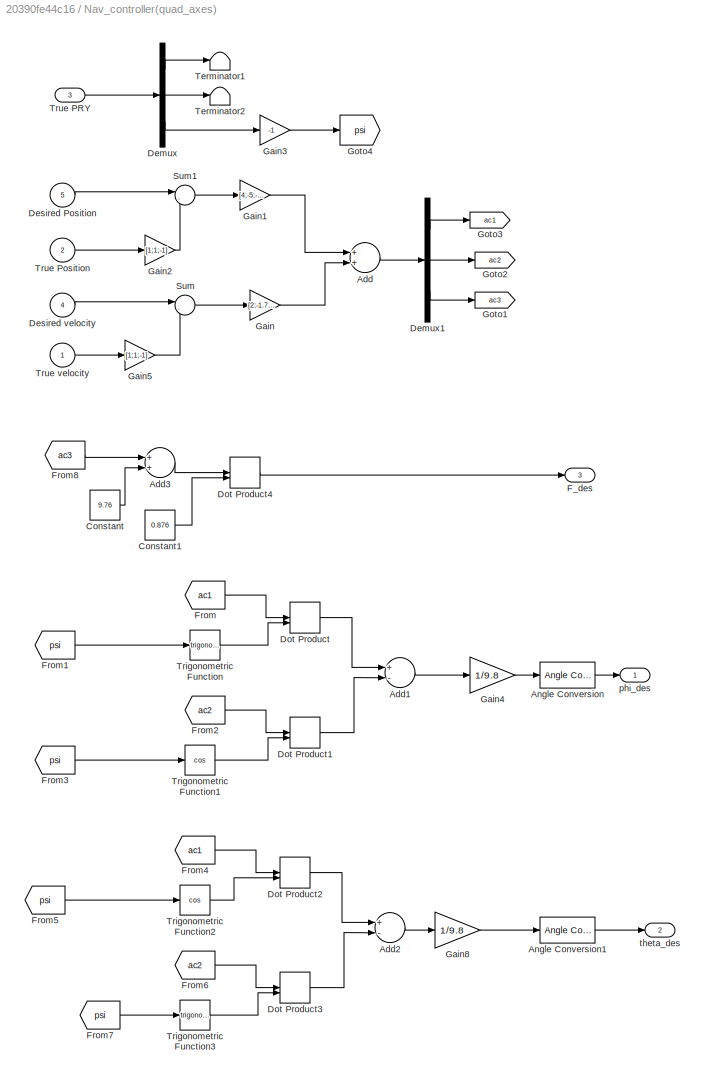
BLOCK [SubSystem] Nav_controller(quad_axes)
  Ports = [5, 3]
  RequestExecContextInheritance = off
BLOCK [Sum] Nav_controller(quad_axes)/Add
  InputSameDT = off
  OutDataTypeStr = Inherit: Inherit via internal rule
  Ports = [2, 1]
  SaturateOnIntegerOverflow = off
BLOCK [Sum] Nav_controller(quad_axes)/Add1
  InputSameDT = off
  Inputs = +-
  OutDataTypeStr = Inherit: Inherit via internal rule
  Ports = [2, 1]
  SaturateOnIntegerOverflow = off
BLOCK [Sum] Nav_controller(quad_axes)/Add2
  InputSameDT = off
  Inputs = +-
  OutDataTypeStr = Inherit: Inherit via internal rule
  Ports = [2, 1]
  SaturateOnIntegerOverflow = off
BLOCK [Sum] Nav_controller(quad_axes)/Add3
  InputSameDT = off
  OutDataTypeStr = Inherit: Inherit via internal rule
  Ports = [2, 1]
  SaturateOnIntegerOverflow = off
BLOCK [Reference] Nav_controller(quad_axes)/Angle Conversion  REF=aerolibconvert2/Angle Conversion
  Ports = [1, 1]
  SourceBlock = aerolibconvert2/Angle Conversion
  SourceProductBaseCode = AE
  SourceProductName = Aerospace Blockset
  SourceType = Angle Conversion
BLOCK [Reference] Nav_controller(quad_axes)/Angle Conversion1  REF=aerolibconvert2/Angle Conversion
  Ports = [1, 1]
  SourceBlock = aerolibconvert2/Angle Conversion
  SourceProductBaseCode = AE
  SourceProductName = Aerospace Blockset
  SourceType = Angle Conversion
BLOCK [Constant] Nav_controller(quad_axes)/Constant
  Value = 9.76
BLOCK [Constant] Nav_controller(quad_axes)/Constant1
  Value = 0.876
BLOCK [Demux] Nav_controller(quad_axes)/Demux
  DisplayOption = bar
  Outputs = 3
  Ports = [1, 3]
BLOCK [Demux] Nav_controller(quad_axes)/Demux1
  DisplayOption = bar
  Outputs = 3
  Ports = [1, 3]
BLOCK [Inport] Nav_controller(quad_axes)/Desired Position
  IconDisplay = Port number
  Port = 5
BLOCK [Inport] Nav_controller(quad_axes)/Desired velocity
  IconDisplay = Port number
  Port = 4
BLOCK [DotProduct] Nav_controller(quad_axes)/Dot Product
  OutDataTypeStr = Inherit: Inherit via internal rule
BLOCK [DotProduct] Nav_controller(quad_axes)/Dot Product1
  OutDataTypeStr = Inherit: Inherit via internal rule
BLOCK [DotProduct] Nav_controller(quad_axes)/Dot Product2
  OutDataTypeStr = Inherit: Inherit via internal rule
BLOCK [DotProduct] Nav_controller(quad_axes)/Dot Product3
  OutDataTypeStr = Inherit: Inherit via internal rule
BLOCK [DotProduct] Nav_controller(quad_axes)/Dot Product4
  OutDataTypeStr = Inherit: Inherit via internal rule
BLOCK [Outport] Nav_controller(quad_axes)/F_des
  IconDisplay = Port number
  Port = 3
BLOCK [From] Nav_controller(quad_axes)/From
  GotoTag = ac1
BLOCK [From] Nav_controller(quad_axes)/From1
  GotoTag = psi
BLOCK [From] Nav_controller(quad_axes)/From2
  GotoTag = ac2
BLOCK [From] Nav_controller(quad_axes)/From3
  GotoTag = psi
BLOCK [From] Nav_controller(quad_axes)/From4
  GotoTag = ac1
BLOCK [From] Nav_controller(quad_axes)/From5
  GotoTag = psi
BLOCK [From] Nav_controller(quad_axes)/From6
  GotoTag = ac2
BLOCK [From] Nav_controller(quad_axes)/From7
  GotoTag = psi
BLOCK [From] Nav_controller(quad_axes)/From8
  GotoTag = ac3
BLOCK [Gain] Nav_controller(quad_axes)/Gain
  Gain = [2;-1.7;-1]
  OutDataTypeStr = Inherit: Inherit via internal rule
  ParamDataTypeStr = Inherit: Inherit via internal rule
  SaturateOnIntegerOverflow = off
BLOCK [Gain] Nav_controller(quad_axes)/Gain1
  Gain = [4;-5;-2]
  OutDataTypeStr = Inherit: Inherit via internal rule
  ParamDataTypeStr = Inherit: Inherit via internal rule
  SaturateOnIntegerOverflow = off
BLOCK [Gain] Nav_controller(quad_axes)/Gain2
  Gain = [1;1;-1]
  OutDataTypeStr = Inherit: Inherit via internal rule
  ParamDataTypeStr = Inherit: Inherit via internal rule
  SaturateOnIntegerOverflow = off
BLOCK [Gain] Nav_controller(quad_axes)/Gain3
  Gain = -1
  OutDataTypeStr = Inherit: Inherit via internal rule
  ParamDataTypeStr = Inherit: Inherit via internal rule
  SaturateOnIntegerOverflow = off
BLOCK [Gain] Nav_controller(quad_axes)/Gain4
  Gain = 1/9.8
  OutDataTypeStr = Inherit: Inherit via internal rule
  ParamDataTypeStr = Inherit: Inherit via internal rule
  SaturateOnIntegerOverflow = off
BLOCK [Gain] Nav_controller(quad_axes)/Gain5
  Gain = [1;1;-1]
  OutDataTypeStr = Inherit: Inherit via internal rule
  ParamDataTypeStr = Inherit: Inherit via internal rule
  SaturateOnIntegerOverflow = off
BLOCK [Gain] Nav_controller(quad_axes)/Gain8
  Gain = 1/9.8
  OutDataTypeStr = Inherit: Inherit via internal rule
  ParamDataTypeStr = Inherit: Inherit via internal rule
  SaturateOnIntegerOverflow = off
BLOCK [Goto] Nav_controller(quad_axes)/Goto1
  GotoTag = ac3
BLOCK [Goto] Nav_controller(quad_axes)/Goto2
  GotoTag = ac2
BLOCK [Goto] Nav_controller(quad_axes)/Goto3
  GotoTag = ac1
BLOCK [Goto] Nav_controller(quad_axes)/Goto4
  GotoTag = psi
BLOCK [Sum] Nav_controller(quad_axes)/Sum
  IconShape = round
  InputSameDT = off
  Inputs = |-+
  OutDataTypeStr = Inherit: Inherit via internal rule
  Ports = [2, 1]
  SaturateOnIntegerOverflow = off
BLOCK [Sum] Nav_controller(quad_axes)/Sum1
  IconShape = round
  InputSameDT = off
  Inputs = |-+
  OutDataTypeStr = Inherit: Inherit via internal rule
  Ports = [2, 1]
  SaturateOnIntegerOverflow = off
BLOCK [Terminator] Nav_controller(quad_axes)/Terminator1
BLOCK [Terminator] Nav_controller(quad_axes)/Terminator2
BLOCK [Trigonometry] Nav_controller(quad_axes)/Trigonometric Function
  Ports = [1, 1]
BLOCK [Trigonometry] Nav_controller(quad_axes)/Trigonometric Function1
  Operator = cos
  Ports = [1, 1]
BLOCK [Trigonometry] Nav_controller(quad_axes)/Trigonometric Function2
  Operator = cos
  Ports = [1, 1]
BLOCK [Trigonometry] Nav_controller(quad_axes)/Trigonometric Function3
  Ports = [1, 1]
BLOCK [Inport] Nav_controller(quad_axes)/True PRY
  IconDisplay = Port number
  Port = 3
BLOCK [Inport] Nav_controller(quad_axes)/True Position
  IconDisplay = Port number
  Port = 2
BLOCK [Inport] Nav_controller(quad_axes)/True velocity
  IconDisplay = Port number
BLOCK [Outport] Nav_controller(quad_axes)/phi_des
  IconDisplay = Port number
BLOCK [Outport] Nav_controller(quad_axes)/theta_des 
  IconDisplay = Port number
  Port = 2
BLOCK [Scope] PRY
  Floating = off
  NumInputPorts = 3
  Ports = [3]
  ScopeSpecificationString = Simulink.scopes.TimeScopeBlockCfg('CurrentConfiguration', extmgr.ConfigurationSet(extmgr.Configuration('Core','General UI',true),extmgr.Configuration('Core','Source UI',true),extmgr.Configuration('Sources','WiredSimulink',true,'DataLoggingLimitDataPoints',true,'DataLoggingDecimation','1','DataLoggingDecimateData',true,'DataLoggingSaveFormat','Array'),extmgr.Configuration('Visuals','Time Domain',tr...<+3003ch>
BLOCK [Scope] PRY1
  Floating = off
  NumInputPorts = 2
  Ports = [2]
  ScopeSpecificationString = Simulink.scopes.TimeScopeBlockCfg('CurrentConfiguration', extmgr.ConfigurationSet(extmgr.Configuration('Core','General UI',true),extmgr.Configuration('Core','Source UI',true),extmgr.Configuration('Sources','WiredSimulink',true,'DataLoggingLimitDataPoints',true,'DataLoggingDecimation','1','DataLoggingDecimateData',true,'DataLoggingSaveFormat','Array','DataLoggingVariableName','ScopeData1'),extmgr.C...<+2339ch>
BLOCK [Reference] Packet Input  REF=sldrtlib/Packet Input
  AttributesFormatString = Standard Devices\nUDP Protocol [BF69h]
  Ports = [0, 1]
  SourceBlock = sldrtlib/Packet Input
  SourceProductBaseCode = WT
  SourceProductName = Simulink Desktop Real-Time
  SourceType = Simulink Desktop Real-Time Packet Input
BLOCK [Reference] Packet Output  REF=sldrtlib/Packet Output
  AttributesFormatString = Standard Devices\nUDP Protocol [BF6Dh]
  Ports = [4]
  SourceBlock = sldrtlib/Packet Output
  SourceProductBaseCode = WT
  SourceProductName = Simulink Desktop Real-Time
  SourceType = Simulink Desktop Real-Time Packet Output
BLOCK [Reference] Packet Output1  REF=sldrtlib/Packet Output
  AttributesFormatString = Standard Devices\nUDP Protocol [BF6Eh]
  Ports = [1, 1]
  SourceBlock = sldrtlib/Packet Output
  SourceProductBaseCode = WT
  SourceProductName = Simulink Desktop Real-Time
  SourceType = Simulink Desktop Real-Time Packet Output
BLOCK [Reference] Real-Time Synchronization  REF=sldrtlib/Real-Time
Synchronization
  Ports = [0, 1]
  SourceBlock = sldrtlib/Real-Time\nSynchronization
  SourceProductBaseCode = WT
  SourceProductName = Simulink Desktop Real-Time
  SourceType = Simulink Desktop Real-Time Synchronization
BLOCK [Saturate] Saturation
  InputPortMap = u0
  LowerLimit = 0
  Ports = [1, 1]
  UpperLimit = 10000
BLOCK [Saturate] Saturation1
  InputPortMap = u0
  LowerLimit = 0
  Ports = [1, 1]
  UpperLimit = 10000
BLOCK [Saturate] Saturation2
  InputPortMap = u0
  LowerLimit = -23
  Ports = [1, 1]
  UpperLimit = 16.5
BLOCK [Saturate] Saturation3
  InputPortMap = u0
  LowerLimit = -23
  Ports = [1, 1]
  UpperLimit = 16.5
BLOCK [Terminator] Terminator
BLOCK [Terminator] Terminator1
BLOCK [Scope] position
  Floating = off
  NumInputPorts = 3
  Ports = [3]
  ScopeSpecificationString = Simulink.scopes.TimeScopeBlockCfg('CurrentConfiguration', extmgr.ConfigurationSet(extmgr.Configuration('Core','General UI',true),extmgr.Configuration('Core','Source UI',true),extmgr.Configuration('Sources','WiredSimulink',true,'DataLoggingVariableName','ScopeData4','DataLoggingLimitDataPoints',true,'DataLoggingSaveFormat','Array','DataLoggingDecimation','1','DataLoggingDecimateData',true),extmgr.C...<+3088ch>
BLOCK [Scope] v 
  Floating = off
  NumInputPorts = 3
  Ports = [3]
  ScopeSpecificationString = Simulink.scopes.TimeScopeBlockCfg('CurrentConfiguration', extmgr.ConfigurationSet(extmgr.Configuration('Core','General UI',true,'FigureColor',[0.501960784313725 0.501960784313725 0.501960784313725]),extmgr.Configuration('Core','Source UI',true),extmgr.Configuration('Sources','WiredSimulink',true,'DataLoggingVariableName','ScopeData3','DataLoggingLimitDataPoints',true,'DataLoggingSaveFormat','Array...<+5008ch>
ANNOTATION (root): Send messages to /stage topic
ANNOTATION (root): Data Exchange Via UDP
LINE Angle Conversion:1 -> Demux1:1
NET Caipriha Airframe2/6DOF (Quaternion):1 -> Caipriha Airframe2/Environment Models1:1, Caipriha Airframe2/Ve:1
NET Caipriha Airframe2/6DOF (Quaternion):2 -> Caipriha Airframe2/Environment Models1:2, Caipriha Airframe2/Xe:1
LINE Caipriha Airframe2/6DOF (Quaternion):3 -> Caipriha Airframe2/euler:1
NET Caipriha Airframe2/6DOF (Quaternion):4 -> Caipriha Airframe2/DCM:1, Caipriha Airframe2/Environment Models1:3, Caipriha Airframe2/Force&Moments:6
NET Caipriha Airframe2/6DOF (Quaternion):5 -> Caipriha Airframe2/Alpha,Beta,Mach:2, Caipriha Airframe2/VB :1
LINE Caipriha Airframe2/6DOF (Quaternion):6 -> Caipriha Airframe2/p,q,r:1
LINE Caipriha Airframe2/6DOF (Quaternion):7 -> Caipriha Airframe2/Terminator2:1
LINE Caipriha Airframe2/6DOF (Quaternion):8 -> Caipriha Airframe2/Terminator1:1
LINE Caipriha Airframe2/Actuators (deg)RL:1 -> Caipriha Airframe2/Aerodynamic Coefficient:3
NET Caipriha Airframe2/Aerodynamic Coefficient/Actuators:1 -> Caipriha Airframe2/Aerodynamic Coefficient/Segment2:5, Caipriha Airframe2/Aerodynamic Coefficient/Segment3L1:3, Caipriha Airframe2/Aerodynamic Coefficient/Segment3R:3
LINE Caipriha Airframe2/Aerodynamic Coefficient/Add1:1 -> Caipriha Airframe2/Aerodynamic Coefficient/M:1
LINE Caipriha Airframe2/Aerodynamic Coefficient/Add:1 -> Caipriha Airframe2/Aerodynamic Coefficient/F:1
LINE Caipriha Airframe2/Aerodynamic Coefficient/Incid:1 -> Caipriha Airframe2/Aerodynamic Coefficient/Selector1:1
LINE Caipriha Airframe2/Aerodynamic Coefficient/Segment1/Add5:1 -> Caipriha Airframe2/Aerodynamic Coefficient/Segment1/Mux1:2
LINE Caipriha Airframe2/Aerodynamic Coefficient/Segment1/Airspeed:1 -> Caipriha Airframe2/Aerodynamic Coefficient/Segment1/right wing:1
LINE Caipriha Airframe2/Aerodynamic Coefficient/Segment1/Constant1:1 -> Caipriha Airframe2/Aerodynamic Coefficient/Segment1/Mux:2
LINE Caipriha Airframe2/Aerodynamic Coefficient/Segment1/Constant2:1 -> Caipriha Airframe2/Aerodynamic Coefficient/Segment1/Mux1:1
LINE Caipriha Airframe2/Aerodynamic Coefficient/Segment1/Constant3:1 -> Caipriha Airframe2/Aerodynamic Coefficient/Segment1/Mux1:3
LINE Caipriha Airframe2/Aerodynamic Coefficient/Segment1/Gain11:1 -> Caipriha Airframe2/Aerodynamic Coefficient/Segment1/Add5:1
LINE Caipriha Airframe2/Aerodynamic Coefficient/Segment1/Gain3:1 -> Caipriha Airframe2/Aerodynamic Coefficient/Segment1/Mux:3
LINE Caipriha Airframe2/Aerodynamic Coefficient/Segment1/Gain4:1 -> Caipriha Airframe2/Aerodynamic Coefficient/Segment1/Mux:1
LINE Caipriha Airframe2/Aerodynamic Coefficient/Segment1/Mux1:1 -> Caipriha Airframe2/Aerodynamic Coefficient/Segment1/Mcg(3*1):1
LINE Caipriha Airframe2/Aerodynamic Coefficient/Segment1/Mux:1 -> Caipriha Airframe2/Aerodynamic Coefficient/Segment1/F(3*1):1
LINE Caipriha Airframe2/Aerodynamic Coefficient/Segment1/alfa:1 -> Caipriha Airframe2/Aerodynamic Coefficient/Segment1/right wing:2
NET Caipriha Airframe2/Aerodynamic Coefficient/Segment1/right wing/ALFA :1 -> Caipriha Airframe2/Aerodynamic Coefficient/Segment1/right wing/Angle Conversion:1, Caipriha Airframe2/Aerodynamic Coefficient/Segment1/right wing/Trigonometric Function1:1, Caipriha Airframe2/Aerodynamic Coefficient/Segment1/right wing/Trigonometric Function:1
LINE Caipriha Airframe2/Aerodynamic Coefficient/Segment1/right wing/Add2:1 -> Caipriha Airframe2/Aerodynamic Coefficient/Segment1/right wing/Fx:1
LINE Caipriha Airframe2/Aerodynamic Coefficient/Segment1/right wing/Add:1 -> Caipriha Airframe2/Aerodynamic Coefficient/Segment1/right wing/Fz:1
LINE Caipriha Airframe2/Aerodynamic Coefficient/Segment1/right wing/Angle Conversion:1 -> Caipriha Airframe2/Aerodynamic Coefficient/Segment1/right wing/wing:1
LINE Caipriha Airframe2/Aerodynamic Coefficient/Segment1/right wing/Constant:1 -> Caipriha Airframe2/Aerodynamic Coefficient/Segment1/right wing/wing:2
LINE Caipriha Airframe2/Aerodynamic Coefficient/Segment1/right wing/Dot Product1:1 -> Caipriha Airframe2/Aerodynamic Coefficient/Segment1/right wing/Goto5:1
LINE Caipriha Airframe2/Aerodynamic Coefficient/Segment1/right wing/Dot Product2:1 -> Caipriha Airframe2/Aerodynamic Coefficient/Segment1/right wing/Mac:1
LINE Caipriha Airframe2/Aerodynamic Coefficient/Segment1/right wing/Dot Product3:1 -> Caipriha Airframe2/Aerodynamic Coefficient/Segment1/right wing/Add:1
LINE Caipriha Airframe2/Aerodynamic Coefficient/Segment1/right wing/Dot Product4:1 -> Caipriha Airframe2/Aerodynamic Coefficient/Segment1/right wing/Add:2
LINE Caipriha Airframe2/Aerodynamic Coefficient/Segment1/right wing/Dot Product7:1 -> Caipriha Airframe2/Aerodynamic Coefficient/Segment1/right wing/Add2:1
LINE Caipriha Airframe2/Aerodynamic Coefficient/Segment1/right wing/Dot Product8:1 -> Caipriha Airframe2/Aerodynamic Coefficient/Segment1/right wing/Add2:2
LINE Caipriha Airframe2/Aerodynamic Coefficient/Segment1/right wing/Dot Product:1 -> Caipriha Airframe2/Aerodynamic Coefficient/Segment1/right wing/Goto4:1
LINE Caipriha Airframe2/Aerodynamic Coefficient/Segment1/right wing/DynamicPressure&area/Gain1:1 -> Caipriha Airframe2/Aerodynamic Coefficient/Segment1/right wing/DynamicPressure&area/Gain2:1
LINE Caipriha Airframe2/Aerodynamic Coefficient/Segment1/right wing/DynamicPressure&area/Gain2:1 -> Caipriha Airframe2/Aerodynamic Coefficient/Segment1/right wing/DynamicPressure&area/Gain3:1
LINE Caipriha Airframe2/Aerodynamic Coefficient/Segment1/right wing/DynamicPressure&area/Gain3:1 -> Caipriha Airframe2/Aerodynamic Coefficient/Segment1/right wing/DynamicPressure&area/p:1
LINE Caipriha Airframe2/Aerodynamic Coefficient/Segment1/right wing/DynamicPressure&area/Math Function:1 -> Caipriha Airframe2/Aerodynamic Coefficient/Segment1/right wing/DynamicPressure&area/Gain1:1
LINE Caipriha Airframe2/Aerodynamic Coefficient/Segment1/right wing/DynamicPressure&area/v:1 -> Caipriha Airframe2/Aerodynamic Coefficient/Segment1/right wing/DynamicPressure&area/Math Function:1
NET Caipriha Airframe2/Aerodynamic Coefficient/Segment1/right wing/DynamicPressure&area:1 -> Caipriha Airframe2/Aerodynamic Coefficient/Segment1/right wing/Dot Product1:2, Caipriha Airframe2/Aerodynamic Coefficient/Segment1/right wing/Dot Product2:2, Caipriha Airframe2/Aerodynamic Coefficient/Segment1/right wing/Dot Product:2
LINE Caipriha Airframe2/Aerodynamic Coefficient/Segment1/right wing/From10:1 -> Caipriha Airframe2/Aerodynamic Coefficient/Segment1/right wing/Dot Product7:2
LINE Caipriha Airframe2/Aerodynamic Coefficient/Segment1/right wing/From11:1 -> Caipriha Airframe2/Aerodynamic Coefficient/Segment1/right wing/Dot Product8:1
LINE Caipriha Airframe2/Aerodynamic Coefficient/Segment1/right wing/From1:1 -> Caipriha Airframe2/Aerodynamic Coefficient/Segment1/right wing/Dot Product4:2
LINE Caipriha Airframe2/Aerodynamic Coefficient/Segment1/right wing/From2:1 -> Caipriha Airframe2/Aerodynamic Coefficient/Segment1/right wing/Dot Product3:2
LINE Caipriha Airframe2/Aerodynamic Coefficient/Segment1/right wing/From3:1 -> Caipriha Airframe2/Aerodynamic Coefficient/Segment1/right wing/Dot Product4:1
LINE Caipriha Airframe2/Aerodynamic Coefficient/Segment1/right wing/From8:1 -> Caipriha Airframe2/Aerodynamic Coefficient/Segment1/right wing/Dot Product7:1
LINE Caipriha Airframe2/Aerodynamic Coefficient/Segment1/right wing/From9:1 -> Caipriha Airframe2/Aerodynamic Coefficient/Segment1/right wing/Dot Product8:2
LINE Caipriha Airframe2/Aerodynamic Coefficient/Segment1/right wing/From:1 -> Caipriha Airframe2/Aerodynamic Coefficient/Segment1/right wing/Dot Product3:1
LINE Caipriha Airframe2/Aerodynamic Coefficient/Segment1/right wing/Gain1:1 -> Caipriha Airframe2/Aerodynamic Coefficient/Segment1/right wing/Dot Product2:1
LINE Caipriha Airframe2/Aerodynamic Coefficient/Segment1/right wing/Gain4:1 -> Caipriha Airframe2/Aerodynamic Coefficient/Segment1/right wing/Dot Product1:1
LINE Caipriha Airframe2/Aerodynamic Coefficient/Segment1/right wing/Gain:1 -> Caipriha Airframe2/Aerodynamic Coefficient/Segment1/right wing/Dot Product:1
LINE Caipriha Airframe2/Aerodynamic Coefficient/Segment1/right wing/Trigonometric Function1:1 -> Caipriha Airframe2/Aerodynamic Coefficient/Segment1/right wing/Goto1:1
LINE Caipriha Airframe2/Aerodynamic Coefficient/Segment1/right wing/Trigonometric Function:1 -> Caipriha Airframe2/Aerodynamic Coefficient/Segment1/right wing/Goto:1
NET Caipriha Airframe2/Aerodynamic Coefficient/Segment1/right wing/v:1 -> Caipriha Airframe2/Aerodynamic Coefficient/Segment1/right wing/DynamicPressure&area:1, Caipriha Airframe2/Aerodynamic Coefficient/Segment1/right wing/wing:3
NET Caipriha Airframe2/Aerodynamic Coefficient/Segment1/right wing/wing/AirspeedLookup:1 -> Caipriha Airframe2/Aerodynamic Coefficient/Segment1/right wing/wing/CD1:1, Caipriha Airframe2/Aerodynamic Coefficient/Segment1/right wing/wing/CD:1, Caipriha Airframe2/Aerodynamic Coefficient/Segment1/right wing/wing/CL:1
NET Caipriha Airframe2/Aerodynamic Coefficient/Segment1/right wing/wing/AirspeedLookup:2 -> Caipriha Airframe2/Aerodynamic Coefficient/Segment1/right wing/wing/CD1:2, Caipriha Airframe2/Aerodynamic Coefficient/Segment1/right wing/wing/CD:2, Caipriha Airframe2/Aerodynamic Coefficient/Segment1/right wing/wing/CL:2
LINE Caipriha Airframe2/Aerodynamic Coefficient/Segment1/right wing/wing/Alpha:1 -> Caipriha Airframe2/Aerodynamic Coefficient/Segment1/right wing/wing/AlphaLookup:1
NET Caipriha Airframe2/Aerodynamic Coefficient/Segment1/right wing/wing/AlphaLookup:1 -> Caipriha Airframe2/Aerodynamic Coefficient/Segment1/right wing/wing/CD1:3, Caipriha Airframe2/Aerodynamic Coefficient/Segment1/right wing/wing/CD:3, Caipriha Airframe2/Aerodynamic Coefficient/Segment1/right wing/wing/CL:3
NET Caipriha Airframe2/Aerodynamic Coefficient/Segment1/right wing/wing/AlphaLookup:2 -> Caipriha Airframe2/Aerodynamic Coefficient/Segment1/right wing/wing/CD1:4, Caipriha Airframe2/Aerodynamic Coefficient/Segment1/right wing/wing/CD:4, Caipriha Airframe2/Aerodynamic Coefficient/Segment1/right wing/wing/CL:4
LINE Caipriha Airframe2/Aerodynamic Coefficient/Segment1/right wing/wing/CD1:1 -> Caipriha Airframe2/Aerodynamic Coefficient/Segment1/right wing/wing/cm:1
LINE Caipriha Airframe2/Aerodynamic Coefficient/Segment1/right wing/wing/CD:1 -> Caipriha Airframe2/Aerodynamic Coefficient/Segment1/right wing/wing/cd:1
LINE Caipriha Airframe2/Aerodynamic Coefficient/Segment1/right wing/wing/CL:1 -> Caipriha Airframe2/Aerodynamic Coefficient/Segment1/right wing/wing/cl:1
LINE Caipriha Airframe2/Aerodynamic Coefficient/Segment1/right wing/wing/Delta:1 -> Caipriha Airframe2/Aerodynamic Coefficient/Segment1/right wing/wing/DeltaLookup:1
NET Caipriha Airframe2/Aerodynamic Coefficient/Segment1/right wing/wing/DeltaLookup:1 -> Caipriha Airframe2/Aerodynamic Coefficient/Segment1/right wing/wing/CD1:5, Caipriha Airframe2/Aerodynamic Coefficient/Segment1/right wing/wing/CD:5, Caipriha Airframe2/Aerodynamic Coefficient/Segment1/right wing/wing/CL:5
NET Caipriha Airframe2/Aerodynamic Coefficient/Segment1/right wing/wing/DeltaLookup:2 -> Caipriha Airframe2/Aerodynamic Coefficient/Segment1/right wing/wing/CD1:6, Caipriha Airframe2/Aerodynamic Coefficient/Segment1/right wing/wing/CD:6, Caipriha Airframe2/Aerodynamic Coefficient/Segment1/right wing/wing/CL:6
LINE Caipriha Airframe2/Aerodynamic Coefficient/Segment1/right wing/wing/airspeed:1 -> Caipriha Airframe2/Aerodynamic Coefficient/Segment1/right wing/wing/AirspeedLookup:1
LINE Caipriha Airframe2/Aerodynamic Coefficient/Segment1/right wing/wing:1 -> Caipriha Airframe2/Aerodynamic Coefficient/Segment1/right wing/Gain:1
LINE Caipriha Airframe2/Aerodynamic Coefficient/Segment1/right wing/wing:2 -> Caipriha Airframe2/Aerodynamic Coefficient/Segment1/right wing/Gain4:1
LINE Caipriha Airframe2/Aerodynamic Coefficient/Segment1/right wing/wing:3 -> Caipriha Airframe2/Aerodynamic Coefficient/Segment1/right wing/Gain1:1
NET Caipriha Airframe2/Aerodynamic Coefficient/Segment1/right wing:1 -> Caipriha Airframe2/Aerodynamic Coefficient/Segment1/Gain11:1, Caipriha Airframe2/Aerodynamic Coefficient/Segment1/Gain3:1
LINE Caipriha Airframe2/Aerodynamic Coefficient/Segment1/right wing:2 -> Caipriha Airframe2/Aerodynamic Coefficient/Segment1/Gain4:1
LINE Caipriha Airframe2/Aerodynamic Coefficient/Segment1/right wing:3 -> Caipriha Airframe2/Aerodynamic Coefficient/Segment1/Add5:2
NET Caipriha Airframe2/Aerodynamic Coefficient/Segment1:1 -> Caipriha Airframe2/Aerodynamic Coefficient/Add:2, Caipriha Airframe2/Aerodynamic Coefficient/Scope1:1
NET Caipriha Airframe2/Aerodynamic Coefficient/Segment1:2 -> Caipriha Airframe2/Aerodynamic Coefficient/Add1:2, Caipriha Airframe2/Aerodynamic Coefficient/Scope5:1
LINE Caipriha Airframe2/Aerodynamic Coefficient/Segment2/Add1:1 -> Caipriha Airframe2/Aerodynamic Coefficient/Segment2/Add5:2
LINE Caipriha Airframe2/Aerodynamic Coefficient/Segment2/Add3:1 -> Caipriha Airframe2/Aerodynamic Coefficient/Segment2/Gain4:1
LINE Caipriha Airframe2/Aerodynamic Coefficient/Segment2/Add5:1 -> Caipriha Airframe2/Aerodynamic Coefficient/Segment2/Mux1:2
LINE Caipriha Airframe2/Aerodynamic Coefficient/Segment2/Constant1:1 -> Caipriha Airframe2/Aerodynamic Coefficient/Segment2/Mux:2
LINE Caipriha Airframe2/Aerodynamic Coefficient/Segment2/Demux1:1 -> Caipriha Airframe2/Aerodynamic Coefficient/Segment2/right wing:3
LINE Caipriha Airframe2/Aerodynamic Coefficient/Segment2/Demux1:2 -> Caipriha Airframe2/Aerodynamic Coefficient/Segment2/left wing:3
LINE Caipriha Airframe2/Aerodynamic Coefficient/Segment2/Divide1:1 -> Caipriha Airframe2/Aerodynamic Coefficient/Segment2/Trigonometric Function1:1
LINE Caipriha Airframe2/Aerodynamic Coefficient/Segment2/Divide:1 -> Caipriha Airframe2/Aerodynamic Coefficient/Segment2/Trigonometric Function:1
LINE Caipriha Airframe2/Aerodynamic Coefficient/Segment2/Gain11:1 -> Caipriha Airframe2/Aerodynamic Coefficient/Segment2/Add5:1
LINE Caipriha Airframe2/Aerodynamic Coefficient/Segment2/Gain16:1 -> Caipriha Airframe2/Aerodynamic Coefficient/Segment2/Mux1:1
LINE Caipriha Airframe2/Aerodynamic Coefficient/Segment2/Gain3:1 -> Caipriha Airframe2/Aerodynamic Coefficient/Segment2/Mux:3
LINE Caipriha Airframe2/Aerodynamic Coefficient/Segment2/Gain4:1 -> Caipriha Airframe2/Aerodynamic Coefficient/Segment2/Mux:1
LINE Caipriha Airframe2/Aerodynamic Coefficient/Segment2/Gain9:1 -> Caipriha Airframe2/Aerodynamic Coefficient/Segment2/Mux1:3
NET Caipriha Airframe2/Aerodynamic Coefficient/Segment2/L:1 -> Caipriha Airframe2/Aerodynamic Coefficient/Segment2/Gain11:1, Caipriha Airframe2/Aerodynamic Coefficient/Segment2/Gain3:1
LINE Caipriha Airframe2/Aerodynamic Coefficient/Segment2/Mux1:1 -> Caipriha Airframe2/Aerodynamic Coefficient/Segment2/M(3*1):1
NET Caipriha Airframe2/Aerodynamic Coefficient/Segment2/Mux:1 -> Caipriha Airframe2/Aerodynamic Coefficient/Segment2/F(3*1):1, Caipriha Airframe2/Aerodynamic Coefficient/Segment2/Scope:1
LINE Caipriha Airframe2/Aerodynamic Coefficient/Segment2/Subtract1:1 -> Caipriha Airframe2/Aerodynamic Coefficient/Segment2/Gain16:1
LINE Caipriha Airframe2/Aerodynamic Coefficient/Segment2/Subtract:1 -> Caipriha Airframe2/Aerodynamic Coefficient/Segment2/Gain9:1
LINE Caipriha Airframe2/Aerodynamic Coefficient/Segment2/T1 :1 -> Caipriha Airframe2/Aerodynamic Coefficient/Segment2/immersed velocity:2
LINE Caipriha Airframe2/Aerodynamic Coefficient/Segment2/T2:1 -> Caipriha Airframe2/Aerodynamic Coefficient/Segment2/immersed velocity:3
LINE Caipriha Airframe2/Aerodynamic Coefficient/Segment2/Trigonometric Function1:1 -> Caipriha Airframe2/Aerodynamic Coefficient/Segment2/left wing:2
LINE Caipriha Airframe2/Aerodynamic Coefficient/Segment2/Trigonometric Function:1 -> Caipriha Airframe2/Aerodynamic Coefficient/Segment2/right wing:2
LINE Caipriha Airframe2/Aerodynamic Coefficient/Segment2/V:1 -> Caipriha Airframe2/Aerodynamic Coefficient/Segment2/immersed velocity:4
NET Caipriha Airframe2/Aerodynamic Coefficient/Segment2/Vb_z:1 -> Caipriha Airframe2/Aerodynamic Coefficient/Segment2/Divide1:2, Caipriha Airframe2/Aerodynamic Coefficient/Segment2/Divide:2
LINE Caipriha Airframe2/Aerodynamic Coefficient/Segment2/actuatorsRL(deg) :1 -> Caipriha Airframe2/Aerodynamic Coefficient/Segment2/Demux1:1
LINE Caipriha Airframe2/Aerodynamic Coefficient/Segment2/alfa:1 -> Caipriha Airframe2/Aerodynamic Coefficient/Segment2/immersed velocity:1
LINE Caipriha Airframe2/Aerodynamic Coefficient/Segment2/immersed velocity/Immersed velocity /A:1 -> Caipriha Airframe2/Aerodynamic Coefficient/Segment2/immersed velocity/Immersed velocity /Gain1:1
LINE Caipriha Airframe2/Aerodynamic Coefficient/Segment2/immersed velocity/Immersed velocity /Abs:1 -> Caipriha Airframe2/Aerodynamic Coefficient/Segment2/immersed velocity/Immersed velocity /u_far:1
LINE Caipriha Airframe2/Aerodynamic Coefficient/Segment2/immersed velocity/Immersed velocity /Add1:1 -> Caipriha Airframe2/Aerodynamic Coefficient/Segment2/immersed velocity/Immersed velocity /u:1
LINE Caipriha Airframe2/Aerodynamic Coefficient/Segment2/immersed velocity/Immersed velocity /Add2:1 -> Caipriha Airframe2/Aerodynamic Coefficient/Segment2/immersed velocity/Immersed velocity /u_far1:1
LINE Caipriha Airframe2/Aerodynamic Coefficient/Segment2/immersed velocity/Immersed velocity /Add3:1 -> Caipriha Airframe2/Aerodynamic Coefficient/Segment2/immersed velocity/Immersed velocity /Dot Product2:2
LINE Caipriha Airframe2/Aerodynamic Coefficient/Segment2/immersed velocity/Immersed velocity /Add:1 -> Caipriha Airframe2/Aerodynamic Coefficient/Segment2/immersed velocity/Immersed velocity /Abs:1
NET Caipriha Airframe2/Aerodynamic Coefficient/Segment2/immersed velocity/Immersed velocity /Constant1:1 -> Caipriha Airframe2/Aerodynamic Coefficient/Segment2/immersed velocity/Immersed velocity /Divide1:2, Caipriha Airframe2/Aerodynamic Coefficient/Segment2/immersed velocity/Immersed velocity /Math Function:1
LINE Caipriha Airframe2/Aerodynamic Coefficient/Segment2/immersed velocity/Immersed velocity /Constant2:1 -> Caipriha Airframe2/Aerodynamic Coefficient/Segment2/immersed velocity/Immersed velocity /Add2:2
LINE Caipriha Airframe2/Aerodynamic Coefficient/Segment2/immersed velocity/Immersed velocity /Constant3:1 -> Caipriha Airframe2/Aerodynamic Coefficient/Segment2/immersed velocity/Immersed velocity /Add3:1
LINE Caipriha Airframe2/Aerodynamic Coefficient/Segment2/immersed velocity/Immersed velocity /Constant:1 -> Caipriha Airframe2/Aerodynamic Coefficient/Segment2/immersed velocity/Immersed velocity /Divide1:1
NET Caipriha Airframe2/Aerodynamic Coefficient/Segment2/immersed velocity/Immersed velocity /Divide1:1 -> Caipriha Airframe2/Aerodynamic Coefficient/Segment2/immersed velocity/Immersed velocity /Divide2:1, Caipriha Airframe2/Aerodynamic Coefficient/Segment2/immersed velocity/Immersed velocity /Math Function3:1
LINE Caipriha Airframe2/Aerodynamic Coefficient/Segment2/immersed velocity/Immersed velocity /Divide2:1 -> Caipriha Airframe2/Aerodynamic Coefficient/Segment2/immersed velocity/Immersed velocity /Add3:2
LINE Caipriha Airframe2/Aerodynamic Coefficient/Segment2/immersed velocity/Immersed velocity /Divide:1 -> Caipriha Airframe2/Aerodynamic Coefficient/Segment2/immersed velocity/Immersed velocity /Gain2:1
LINE Caipriha Airframe2/Aerodynamic Coefficient/Segment2/immersed velocity/Immersed velocity /Dot Product1:1 -> Caipriha Airframe2/Aerodynamic Coefficient/Segment2/immersed velocity/Immersed velocity /Add1:1
LINE Caipriha Airframe2/Aerodynamic Coefficient/Segment2/immersed velocity/Immersed velocity /Dot Product2:1 -> Caipriha Airframe2/Aerodynamic Coefficient/Segment2/immersed velocity/Immersed velocity /v:1
LINE Caipriha Airframe2/Aerodynamic Coefficient/Segment2/immersed velocity/Immersed velocity /Dot Product:1 -> Caipriha Airframe2/Aerodynamic Coefficient/Segment2/immersed velocity/Immersed velocity /Add:1
LINE Caipriha Airframe2/Aerodynamic Coefficient/Segment2/immersed velocity/Immersed velocity /Gain1:1 -> Caipriha Airframe2/Aerodynamic Coefficient/Segment2/immersed velocity/Immersed velocity /Divide:2
LINE Caipriha Airframe2/Aerodynamic Coefficient/Segment2/immersed velocity/Immersed velocity /Gain2:1 -> Caipriha Airframe2/Aerodynamic Coefficient/Segment2/immersed velocity/Immersed velocity /Add:2
LINE Caipriha Airframe2/Aerodynamic Coefficient/Segment2/immersed velocity/Immersed velocity /Math Function1:1 -> Caipriha Airframe2/Aerodynamic Coefficient/Segment2/immersed velocity/Immersed velocity /Dot Product:2
LINE Caipriha Airframe2/Aerodynamic Coefficient/Segment2/immersed velocity/Immersed velocity /Math Function2:1 -> Caipriha Airframe2/Aerodynamic Coefficient/Segment2/immersed velocity/Immersed velocity /Dot Product:1
LINE Caipriha Airframe2/Aerodynamic Coefficient/Segment2/immersed velocity/Immersed velocity /Math Function3:1 -> Caipriha Airframe2/Aerodynamic Coefficient/Segment2/immersed velocity/Immersed velocity /Add2:1
LINE Caipriha Airframe2/Aerodynamic Coefficient/Segment2/immersed velocity/Immersed velocity /Math Function:1 -> Caipriha Airframe2/Aerodynamic Coefficient/Segment2/immersed velocity/Immersed velocity /A:1
LINE Caipriha Airframe2/Aerodynamic Coefficient/Segment2/immersed velocity/Immersed velocity /T:1 -> Caipriha Airframe2/Aerodynamic Coefficient/Segment2/immersed velocity/Immersed velocity /Divide:1
NET Caipriha Airframe2/Aerodynamic Coefficient/Segment2/immersed velocity/Immersed velocity /Trigonometric Function:1 -> Caipriha Airframe2/Aerodynamic Coefficient/Segment2/immersed velocity/Immersed velocity /Dot Product1:2, Caipriha Airframe2/Aerodynamic Coefficient/Segment2/immersed velocity/Immersed velocity /Math Function2:1
NET Caipriha Airframe2/Aerodynamic Coefficient/Segment2/immersed velocity/Immersed velocity /airspeed:1 -> Caipriha Airframe2/Aerodynamic Coefficient/Segment2/immersed velocity/Immersed velocity /Dot Product1:1, Caipriha Airframe2/Aerodynamic Coefficient/Segment2/immersed velocity/Immersed velocity /Math Function1:1
LINE Caipriha Airframe2/Aerodynamic Coefficient/Segment2/immersed velocity/Immersed velocity /alfa:1 -> Caipriha Airframe2/Aerodynamic Coefficient/Segment2/immersed velocity/Immersed velocity /Trigonometric Function:1
LINE Caipriha Airframe2/Aerodynamic Coefficient/Segment2/immersed velocity/Immersed velocity /u:1 -> Caipriha Airframe2/Aerodynamic Coefficient/Segment2/immersed velocity/Immersed velocity /Dot Product2:1
LINE Caipriha Airframe2/Aerodynamic Coefficient/Segment2/immersed velocity/Immersed velocity /u_far1:1 -> Caipriha Airframe2/Aerodynamic Coefficient/Segment2/immersed velocity/Immersed velocity /Divide2:2
LINE Caipriha Airframe2/Aerodynamic Coefficient/Segment2/immersed velocity/Immersed velocity /u_far:1 -> Caipriha Airframe2/Aerodynamic Coefficient/Segment2/immersed velocity/Immersed velocity /Add1:2
LINE Caipriha Airframe2/Aerodynamic Coefficient/Segment2/immersed velocity/Immersed velocity 1/A:1 -> Caipriha Airframe2/Aerodynamic Coefficient/Segment2/immersed velocity/Immersed velocity 1/Gain1:1
LINE Caipriha Airframe2/Aerodynamic Coefficient/Segment2/immersed velocity/Immersed velocity 1/Abs:1 -> Caipriha Airframe2/Aerodynamic Coefficient/Segment2/immersed velocity/Immersed velocity 1/u_far:1
LINE Caipriha Airframe2/Aerodynamic Coefficient/Segment2/immersed velocity/Immersed velocity 1/Add1:1 -> Caipriha Airframe2/Aerodynamic Coefficient/Segment2/immersed velocity/Immersed velocity 1/u:1
LINE Caipriha Airframe2/Aerodynamic Coefficient/Segment2/immersed velocity/Immersed velocity 1/Add2:1 -> Caipriha Airframe2/Aerodynamic Coefficient/Segment2/immersed velocity/Immersed velocity 1/u_far1:1
LINE Caipriha Airframe2/Aerodynamic Coefficient/Segment2/immersed velocity/Immersed velocity 1/Add3:1 -> Caipriha Airframe2/Aerodynamic Coefficient/Segment2/immersed velocity/Immersed velocity 1/Dot Product2:2
LINE Caipriha Airframe2/Aerodynamic Coefficient/Segment2/immersed velocity/Immersed velocity 1/Add:1 -> Caipriha Airframe2/Aerodynamic Coefficient/Segment2/immersed velocity/Immersed velocity 1/Abs:1
NET Caipriha Airframe2/Aerodynamic Coefficient/Segment2/immersed velocity/Immersed velocity 1/Constant1:1 -> Caipriha Airframe2/Aerodynamic Coefficient/Segment2/immersed velocity/Immersed velocity 1/Divide1:2, Caipriha Airframe2/Aerodynamic Coefficient/Segment2/immersed velocity/Immersed velocity 1/Math Function:1
LINE Caipriha Airframe2/Aerodynamic Coefficient/Segment2/immersed velocity/Immersed velocity 1/Constant2:1 -> Caipriha Airframe2/Aerodynamic Coefficient/Segment2/immersed velocity/Immersed velocity 1/Add2:2
LINE Caipriha Airframe2/Aerodynamic Coefficient/Segment2/immersed velocity/Immersed velocity 1/Constant3:1 -> Caipriha Airframe2/Aerodynamic Coefficient/Segment2/immersed velocity/Immersed velocity 1/Add3:1
LINE Caipriha Airframe2/Aerodynamic Coefficient/Segment2/immersed velocity/Immersed velocity 1/Constant:1 -> Caipriha Airframe2/Aerodynamic Coefficient/Segment2/immersed velocity/Immersed velocity 1/Divide1:1
NET Caipriha Airframe2/Aerodynamic Coefficient/Segment2/immersed velocity/Immersed velocity 1/Divide1:1 -> Caipriha Airframe2/Aerodynamic Coefficient/Segment2/immersed velocity/Immersed velocity 1/Divide2:1, Caipriha Airframe2/Aerodynamic Coefficient/Segment2/immersed velocity/Immersed velocity 1/Math Function3:1
LINE Caipriha Airframe2/Aerodynamic Coefficient/Segment2/immersed velocity/Immersed velocity 1/Divide2:1 -> Caipriha Airframe2/Aerodynamic Coefficient/Segment2/immersed velocity/Immersed velocity 1/Add3:2
LINE Caipriha Airframe2/Aerodynamic Coefficient/Segment2/immersed velocity/Immersed velocity 1/Divide:1 -> Caipriha Airframe2/Aerodynamic Coefficient/Segment2/immersed velocity/Immersed velocity 1/Gain2:1
LINE Caipriha Airframe2/Aerodynamic Coefficient/Segment2/immersed velocity/Immersed velocity 1/Dot Product1:1 -> Caipriha Airframe2/Aerodynamic Coefficient/Segment2/immersed velocity/Immersed velocity 1/Add1:1
LINE Caipriha Airframe2/Aerodynamic Coefficient/Segment2/immersed velocity/Immersed velocity 1/Dot Product2:1 -> Caipriha Airframe2/Aerodynamic Coefficient/Segment2/immersed velocity/Immersed velocity 1/v:1
LINE Caipriha Airframe2/Aerodynamic Coefficient/Segment2/immersed velocity/Immersed velocity 1/Dot Product:1 -> Caipriha Airframe2/Aerodynamic Coefficient/Segment2/immersed velocity/Immersed velocity 1/Add:1
LINE Caipriha Airframe2/Aerodynamic Coefficient/Segment2/immersed velocity/Immersed velocity 1/Gain1:1 -> Caipriha Airframe2/Aerodynamic Coefficient/Segment2/immersed velocity/Immersed velocity 1/Divide:2
LINE Caipriha Airframe2/Aerodynamic Coefficient/Segment2/immersed velocity/Immersed velocity 1/Gain2:1 -> Caipriha Airframe2/Aerodynamic Coefficient/Segment2/immersed velocity/Immersed velocity 1/Add:2
LINE Caipriha Airframe2/Aerodynamic Coefficient/Segment2/immersed velocity/Immersed velocity 1/Math Function1:1 -> Caipriha Airframe2/Aerodynamic Coefficient/Segment2/immersed velocity/Immersed velocity 1/Dot Product:2
LINE Caipriha Airframe2/Aerodynamic Coefficient/Segment2/immersed velocity/Immersed velocity 1/Math Function2:1 -> Caipriha Airframe2/Aerodynamic Coefficient/Segment2/immersed velocity/Immersed velocity 1/Dot Product:1
LINE Caipriha Airframe2/Aerodynamic Coefficient/Segment2/immersed velocity/Immersed velocity 1/Math Function3:1 -> Caipriha Airframe2/Aerodynamic Coefficient/Segment2/immersed velocity/Immersed velocity 1/Add2:1
LINE Caipriha Airframe2/Aerodynamic Coefficient/Segment2/immersed velocity/Immersed velocity 1/Math Function:1 -> Caipriha Airframe2/Aerodynamic Coefficient/Segment2/immersed velocity/Immersed velocity 1/A:1
LINE Caipriha Airframe2/Aerodynamic Coefficient/Segment2/immersed velocity/Immersed velocity 1/T:1 -> Caipriha Airframe2/Aerodynamic Coefficient/Segment2/immersed velocity/Immersed velocity 1/Divide:1
NET Caipriha Airframe2/Aerodynamic Coefficient/Segment2/immersed velocity/Immersed velocity 1/Trigonometric Function:1 -> Caipriha Airframe2/Aerodynamic Coefficient/Segment2/immersed velocity/Immersed velocity 1/Dot Product1:2, Caipriha Airframe2/Aerodynamic Coefficient/Segment2/immersed velocity/Immersed velocity 1/Math Function2:1
NET Caipriha Airframe2/Aerodynamic Coefficient/Segment2/immersed velocity/Immersed velocity 1/airspeed:1 -> Caipriha Airframe2/Aerodynamic Coefficient/Segment2/immersed velocity/Immersed velocity 1/Dot Product1:1, Caipriha Airframe2/Aerodynamic Coefficient/Segment2/immersed velocity/Immersed velocity 1/Math Function1:1
LINE Caipriha Airframe2/Aerodynamic Coefficient/Segment2/immersed velocity/Immersed velocity 1/alfa:1 -> Caipriha Airframe2/Aerodynamic Coefficient/Segment2/immersed velocity/Immersed velocity 1/Trigonometric Function:1
LINE Caipriha Airframe2/Aerodynamic Coefficient/Segment2/immersed velocity/Immersed velocity 1/u:1 -> Caipriha Airframe2/Aerodynamic Coefficient/Segment2/immersed velocity/Immersed velocity 1/Dot Product2:1
LINE Caipriha Airframe2/Aerodynamic Coefficient/Segment2/immersed velocity/Immersed velocity 1/u_far1:1 -> Caipriha Airframe2/Aerodynamic Coefficient/Segment2/immersed velocity/Immersed velocity 1/Divide2:2
LINE Caipriha Airframe2/Aerodynamic Coefficient/Segment2/immersed velocity/Immersed velocity 1/u_far:1 -> Caipriha Airframe2/Aerodynamic Coefficient/Segment2/immersed velocity/Immersed velocity 1/Add1:2
LINE Caipriha Airframe2/Aerodynamic Coefficient/Segment2/immersed velocity/Immersed velocity 1:1 -> Caipriha Airframe2/Aerodynamic Coefficient/Segment2/immersed velocity/v2:1
LINE Caipriha Airframe2/Aerodynamic Coefficient/Segment2/immersed velocity/Immersed velocity :1 -> Caipriha Airframe2/Aerodynamic Coefficient/Segment2/immersed velocity/v1:1
NET Caipriha Airframe2/Aerodynamic Coefficient/Segment2/immersed velocity/airspeed:1 -> Caipriha Airframe2/Aerodynamic Coefficient/Segment2/immersed velocity/Immersed velocity 1:2, Caipriha Airframe2/Aerodynamic Coefficient/Segment2/immersed velocity/Immersed velocity :2
NET Caipriha Airframe2/Aerodynamic Coefficient/Segment2/immersed velocity/alpha:1 -> Caipriha Airframe2/Aerodynamic Coefficient/Segment2/immersed velocity/Immersed velocity 1:3, Caipriha Airframe2/Aerodynamic Coefficient/Segment2/immersed velocity/Immersed velocity :3
LINE Caipriha Airframe2/Aerodynamic Coefficient/Segment2/immersed velocity/t1 :1 -> Caipriha Airframe2/Aerodynamic Coefficient/Segment2/immersed velocity/Immersed velocity :1
LINE Caipriha Airframe2/Aerodynamic Coefficient/Segment2/immersed velocity/t2:1 -> Caipriha Airframe2/Aerodynamic Coefficient/Segment2/immersed velocity/Immersed velocity 1:1
NET Caipriha Airframe2/Aerodynamic Coefficient/Segment2/immersed velocity:1 -> Caipriha Airframe2/Aerodynamic Coefficient/Segment2/Divide:1, Caipriha Airframe2/Aerodynamic Coefficient/Segment2/right wing:1
NET Caipriha Airframe2/Aerodynamic Coefficient/Segment2/immersed velocity:2 -> Caipriha Airframe2/Aerodynamic Coefficient/Segment2/Divide1:1, Caipriha Airframe2/Aerodynamic Coefficient/Segment2/left wing:1
NET Caipriha Airframe2/Aerodynamic Coefficient/Segment2/left wing/ALFA :1 -> Caipriha Airframe2/Aerodynamic Coefficient/Segment2/left wing/Angle Conversion1:1, Caipriha Airframe2/Aerodynamic Coefficient/Segment2/left wing/Trigonometric Function1:1, Caipriha Airframe2/Aerodynamic Coefficient/Segment2/left wing/Trigonometric Function:1
LINE Caipriha Airframe2/Aerodynamic Coefficient/Segment2/left wing/Add1:1 -> Caipriha Airframe2/Aerodynamic Coefficient/Segment2/left wing/FxR:1
LINE Caipriha Airframe2/Aerodynamic Coefficient/Segment2/left wing/Add:1 -> Caipriha Airframe2/Aerodynamic Coefficient/Segment2/left wing/FzR:1
LINE Caipriha Airframe2/Aerodynamic Coefficient/Segment2/left wing/Angle Conversion1:1 -> Caipriha Airframe2/Aerodynamic Coefficient/Segment2/left wing/wing:1
LINE Caipriha Airframe2/Aerodynamic Coefficient/Segment2/left wing/Dot Product1:1 -> Caipriha Airframe2/Aerodynamic Coefficient/Segment2/left wing/Goto3:1
LINE Caipriha Airframe2/Aerodynamic Coefficient/Segment2/left wing/Dot Product2:1 -> Caipriha Airframe2/Aerodynamic Coefficient/Segment2/left wing/MacL:1
LINE Caipriha Airframe2/Aerodynamic Coefficient/Segment2/left wing/Dot Product3:1 -> Caipriha Airframe2/Aerodynamic Coefficient/Segment2/left wing/Add:1
LINE Caipriha Airframe2/Aerodynamic Coefficient/Segment2/left wing/Dot Product4:1 -> Caipriha Airframe2/Aerodynamic Coefficient/Segment2/left wing/Add:2
LINE Caipriha Airframe2/Aerodynamic Coefficient/Segment2/left wing/Dot Product5:1 -> Caipriha Airframe2/Aerodynamic Coefficient/Segment2/left wing/Add1:1
LINE Caipriha Airframe2/Aerodynamic Coefficient/Segment2/left wing/Dot Product6:1 -> Caipriha Airframe2/Aerodynamic Coefficient/Segment2/left wing/Add1:2
LINE Caipriha Airframe2/Aerodynamic Coefficient/Segment2/left wing/Dot Product:1 -> Caipriha Airframe2/Aerodynamic Coefficient/Segment2/left wing/Goto2:1
LINE Caipriha Airframe2/Aerodynamic Coefficient/Segment2/left wing/DynamicPressure/Gain1:1 -> Caipriha Airframe2/Aerodynamic Coefficient/Segment2/left wing/DynamicPressure/Gain2:1
LINE Caipriha Airframe2/Aerodynamic Coefficient/Segment2/left wing/DynamicPressure/Gain2:1 -> Caipriha Airframe2/Aerodynamic Coefficient/Segment2/left wing/DynamicPressure/Gain3:1
LINE Caipriha Airframe2/Aerodynamic Coefficient/Segment2/left wing/DynamicPressure/Gain3:1 -> Caipriha Airframe2/Aerodynamic Coefficient/Segment2/left wing/DynamicPressure/p:1
LINE Caipriha Airframe2/Aerodynamic Coefficient/Segment2/left wing/DynamicPressure/Math Function:1 -> Caipriha Airframe2/Aerodynamic Coefficient/Segment2/left wing/DynamicPressure/Gain1:1
LINE Caipriha Airframe2/Aerodynamic Coefficient/Segment2/left wing/DynamicPressure/v:1 -> Caipriha Airframe2/Aerodynamic Coefficient/Segment2/left wing/DynamicPressure/Math Function:1
NET Caipriha Airframe2/Aerodynamic Coefficient/Segment2/left wing/DynamicPressure:1 -> Caipriha Airframe2/Aerodynamic Coefficient/Segment2/left wing/Dot Product1:2, Caipriha Airframe2/Aerodynamic Coefficient/Segment2/left wing/Dot Product2:2, Caipriha Airframe2/Aerodynamic Coefficient/Segment2/left wing/Dot Product:2
LINE Caipriha Airframe2/Aerodynamic Coefficient/Segment2/left wing/From1:1 -> Caipriha Airframe2/Aerodynamic Coefficient/Segment2/left wing/Dot Product4:2
LINE Caipriha Airframe2/Aerodynamic Coefficient/Segment2/left wing/From2:1 -> Caipriha Airframe2/Aerodynamic Coefficient/Segment2/left wing/Dot Product3:2
LINE Caipriha Airframe2/Aerodynamic Coefficient/Segment2/left wing/From3:1 -> Caipriha Airframe2/Aerodynamic Coefficient/Segment2/left wing/Dot Product4:1
LINE Caipriha Airframe2/Aerodynamic Coefficient/Segment2/left wing/From4:1 -> Caipriha Airframe2/Aerodynamic Coefficient/Segment2/left wing/Dot Product5:1
LINE Caipriha Airframe2/Aerodynamic Coefficient/Segment2/left wing/From5:1 -> Caipriha Airframe2/Aerodynamic Coefficient/Segment2/left wing/Dot Product6:2
LINE Caipriha Airframe2/Aerodynamic Coefficient/Segment2/left wing/From6:1 -> Caipriha Airframe2/Aerodynamic Coefficient/Segment2/left wing/Dot Product5:2
LINE Caipriha Airframe2/Aerodynamic Coefficient/Segment2/left wing/From7:1 -> Caipriha Airframe2/Aerodynamic Coefficient/Segment2/left wing/Dot Product6:1
LINE Caipriha Airframe2/Aerodynamic Coefficient/Segment2/left wing/From:1 -> Caipriha Airframe2/Aerodynamic Coefficient/Segment2/left wing/Dot Product3:1
LINE Caipriha Airframe2/Aerodynamic Coefficient/Segment2/left wing/Gain1:1 -> Caipriha Airframe2/Aerodynamic Coefficient/Segment2/left wing/Dot Product2:1
LINE Caipriha Airframe2/Aerodynamic Coefficient/Segment2/left wing/Gain4:1 -> Caipriha Airframe2/Aerodynamic Coefficient/Segment2/left wing/Dot Product1:1
LINE Caipriha Airframe2/Aerodynamic Coefficient/Segment2/left wing/Gain:1 -> Caipriha Airframe2/Aerodynamic Coefficient/Segment2/left wing/Dot Product:1
LINE Caipriha Airframe2/Aerodynamic Coefficient/Segment2/left wing/Trigonometric Function1:1 -> Caipriha Airframe2/Aerodynamic Coefficient/Segment2/left wing/Goto1:1
LINE Caipriha Airframe2/Aerodynamic Coefficient/Segment2/left wing/Trigonometric Function:1 -> Caipriha Airframe2/Aerodynamic Coefficient/Segment2/left wing/Goto:1
LINE Caipriha Airframe2/Aerodynamic Coefficient/Segment2/left wing/delta_L:1 -> Caipriha Airframe2/Aerodynamic Coefficient/Segment2/left wing/wing:2
NET Caipriha Airframe2/Aerodynamic Coefficient/Segment2/left wing/v:1 -> Caipriha Airframe2/Aerodynamic Coefficient/Segment2/left wing/DynamicPressure:1, Caipriha Airframe2/Aerodynamic Coefficient/Segment2/left wing/wing:3
NET Caipriha Airframe2/Aerodynamic Coefficient/Segment2/left wing/wing/AirspeedLookup:1 -> Caipriha Airframe2/Aerodynamic Coefficient/Segment2/left wing/wing/CD1:1, Caipriha Airframe2/Aerodynamic Coefficient/Segment2/left wing/wing/CD:1, Caipriha Airframe2/Aerodynamic Coefficient/Segment2/left wing/wing/CL:1
NET Caipriha Airframe2/Aerodynamic Coefficient/Segment2/left wing/wing/AirspeedLookup:2 -> Caipriha Airframe2/Aerodynamic Coefficient/Segment2/left wing/wing/CD1:2, Caipriha Airframe2/Aerodynamic Coefficient/Segment2/left wing/wing/CD:2, Caipriha Airframe2/Aerodynamic Coefficient/Segment2/left wing/wing/CL:2
LINE Caipriha Airframe2/Aerodynamic Coefficient/Segment2/left wing/wing/Alpha:1 -> Caipriha Airframe2/Aerodynamic Coefficient/Segment2/left wing/wing/AlphaLookup:1
NET Caipriha Airframe2/Aerodynamic Coefficient/Segment2/left wing/wing/AlphaLookup:1 -> Caipriha Airframe2/Aerodynamic Coefficient/Segment2/left wing/wing/CD1:3, Caipriha Airframe2/Aerodynamic Coefficient/Segment2/left wing/wing/CD:3, Caipriha Airframe2/Aerodynamic Coefficient/Segment2/left wing/wing/CL:3
NET Caipriha Airframe2/Aerodynamic Coefficient/Segment2/left wing/wing/AlphaLookup:2 -> Caipriha Airframe2/Aerodynamic Coefficient/Segment2/left wing/wing/CD1:4, Caipriha Airframe2/Aerodynamic Coefficient/Segment2/left wing/wing/CD:4, Caipriha Airframe2/Aerodynamic Coefficient/Segment2/left wing/wing/CL:4
LINE Caipriha Airframe2/Aerodynamic Coefficient/Segment2/left wing/wing/CD1:1 -> Caipriha Airframe2/Aerodynamic Coefficient/Segment2/left wing/wing/cm:1
LINE Caipriha Airframe2/Aerodynamic Coefficient/Segment2/left wing/wing/CD:1 -> Caipriha Airframe2/Aerodynamic Coefficient/Segment2/left wing/wing/cd:1
LINE Caipriha Airframe2/Aerodynamic Coefficient/Segment2/left wing/wing/CL:1 -> Caipriha Airframe2/Aerodynamic Coefficient/Segment2/left wing/wing/cl:1
LINE Caipriha Airframe2/Aerodynamic Coefficient/Segment2/left wing/wing/Delta:1 -> Caipriha Airframe2/Aerodynamic Coefficient/Segment2/left wing/wing/DeltaLookup:1
NET Caipriha Airframe2/Aerodynamic Coefficient/Segment2/left wing/wing/DeltaLookup:1 -> Caipriha Airframe2/Aerodynamic Coefficient/Segment2/left wing/wing/CD1:5, Caipriha Airframe2/Aerodynamic Coefficient/Segment2/left wing/wing/CD:5, Caipriha Airframe2/Aerodynamic Coefficient/Segment2/left wing/wing/CL:5
NET Caipriha Airframe2/Aerodynamic Coefficient/Segment2/left wing/wing/DeltaLookup:2 -> Caipriha Airframe2/Aerodynamic Coefficient/Segment2/left wing/wing/CD1:6, Caipriha Airframe2/Aerodynamic Coefficient/Segment2/left wing/wing/CD:6, Caipriha Airframe2/Aerodynamic Coefficient/Segment2/left wing/wing/CL:6
LINE Caipriha Airframe2/Aerodynamic Coefficient/Segment2/left wing/wing/airspeed:1 -> Caipriha Airframe2/Aerodynamic Coefficient/Segment2/left wing/wing/AirspeedLookup:1
LINE Caipriha Airframe2/Aerodynamic Coefficient/Segment2/left wing/wing:1 -> Caipriha Airframe2/Aerodynamic Coefficient/Segment2/left wing/Gain:1
LINE Caipriha Airframe2/Aerodynamic Coefficient/Segment2/left wing/wing:2 -> Caipriha Airframe2/Aerodynamic Coefficient/Segment2/left wing/Gain4:1
LINE Caipriha Airframe2/Aerodynamic Coefficient/Segment2/left wing/wing:3 -> Caipriha Airframe2/Aerodynamic Coefficient/Segment2/left wing/Gain1:1
NET Caipriha Airframe2/Aerodynamic Coefficient/Segment2/left wing:1 -> Caipriha Airframe2/Aerodynamic Coefficient/Segment2/L:2, Caipriha Airframe2/Aerodynamic Coefficient/Segment2/Subtract1:2
NET Caipriha Airframe2/Aerodynamic Coefficient/Segment2/left wing:2 -> Caipriha Airframe2/Aerodynamic Coefficient/Segment2/Add3:2, Caipriha Airframe2/Aerodynamic Coefficient/Segment2/Subtract:1
LINE Caipriha Airframe2/Aerodynamic Coefficient/Segment2/left wing:3 -> Caipriha Airframe2/Aerodynamic Coefficient/Segment2/Add1:2
NET Caipriha Airframe2/Aerodynamic Coefficient/Segment2/right wing/ALFA :1 -> Caipriha Airframe2/Aerodynamic Coefficient/Segment2/right wing/Angle Conversion:1, Caipriha Airframe2/Aerodynamic Coefficient/Segment2/right wing/Trigonometric Function1:1, Caipriha Airframe2/Aerodynamic Coefficient/Segment2/right wing/Trigonometric Function:1
LINE Caipriha Airframe2/Aerodynamic Coefficient/Segment2/right wing/Add1:1 -> Caipriha Airframe2/Aerodynamic Coefficient/Segment2/right wing/FxR:1
LINE Caipriha Airframe2/Aerodynamic Coefficient/Segment2/right wing/Add:1 -> Caipriha Airframe2/Aerodynamic Coefficient/Segment2/right wing/FzR:1
LINE Caipriha Airframe2/Aerodynamic Coefficient/Segment2/right wing/Angle Conversion:1 -> Caipriha Airframe2/Aerodynamic Coefficient/Segment2/right wing/wing:1
LINE Caipriha Airframe2/Aerodynamic Coefficient/Segment2/right wing/Dot Product1:1 -> Caipriha Airframe2/Aerodynamic Coefficient/Segment2/right wing/Goto3:1
LINE Caipriha Airframe2/Aerodynamic Coefficient/Segment2/right wing/Dot Product2:1 -> Caipriha Airframe2/Aerodynamic Coefficient/Segment2/right wing/MacR:1
LINE Caipriha Airframe2/Aerodynamic Coefficient/Segment2/right wing/Dot Product3:1 -> Caipriha Airframe2/Aerodynamic Coefficient/Segment2/right wing/Add:1
LINE Caipriha Airframe2/Aerodynamic Coefficient/Segment2/right wing/Dot Product4:1 -> Caipriha Airframe2/Aerodynamic Coefficient/Segment2/right wing/Add:2
LINE Caipriha Airframe2/Aerodynamic Coefficient/Segment2/right wing/Dot Product5:1 -> Caipriha Airframe2/Aerodynamic Coefficient/Segment2/right wing/Add1:1
LINE Caipriha Airframe2/Aerodynamic Coefficient/Segment2/right wing/Dot Product6:1 -> Caipriha Airframe2/Aerodynamic Coefficient/Segment2/right wing/Add1:2
LINE Caipriha Airframe2/Aerodynamic Coefficient/Segment2/right wing/Dot Product:1 -> Caipriha Airframe2/Aerodynamic Coefficient/Segment2/right wing/Goto2:1
LINE Caipriha Airframe2/Aerodynamic Coefficient/Segment2/right wing/DynamicPressure/Gain1:1 -> Caipriha Airframe2/Aerodynamic Coefficient/Segment2/right wing/DynamicPressure/Gain2:1
LINE Caipriha Airframe2/Aerodynamic Coefficient/Segment2/right wing/DynamicPressure/Gain2:1 -> Caipriha Airframe2/Aerodynamic Coefficient/Segment2/right wing/DynamicPressure/Gain3:1
LINE Caipriha Airframe2/Aerodynamic Coefficient/Segment2/right wing/DynamicPressure/Gain3:1 -> Caipriha Airframe2/Aerodynamic Coefficient/Segment2/right wing/DynamicPressure/p:1
LINE Caipriha Airframe2/Aerodynamic Coefficient/Segment2/right wing/DynamicPressure/Math Function:1 -> Caipriha Airframe2/Aerodynamic Coefficient/Segment2/right wing/DynamicPressure/Gain1:1
LINE Caipriha Airframe2/Aerodynamic Coefficient/Segment2/right wing/DynamicPressure/v:1 -> Caipriha Airframe2/Aerodynamic Coefficient/Segment2/right wing/DynamicPressure/Math Function:1
NET Caipriha Airframe2/Aerodynamic Coefficient/Segment2/right wing/DynamicPressure:1 -> Caipriha Airframe2/Aerodynamic Coefficient/Segment2/right wing/Dot Product1:2, Caipriha Airframe2/Aerodynamic Coefficient/Segment2/right wing/Dot Product2:2, Caipriha Airframe2/Aerodynamic Coefficient/Segment2/right wing/Dot Product:2
LINE Caipriha Airframe2/Aerodynamic Coefficient/Segment2/right wing/From1:1 -> Caipriha Airframe2/Aerodynamic Coefficient/Segment2/right wing/Dot Product4:2
LINE Caipriha Airframe2/Aerodynamic Coefficient/Segment2/right wing/From2:1 -> Caipriha Airframe2/Aerodynamic Coefficient/Segment2/right wing/Dot Product3:2
LINE Caipriha Airframe2/Aerodynamic Coefficient/Segment2/right wing/From3:1 -> Caipriha Airframe2/Aerodynamic Coefficient/Segment2/right wing/Dot Product4:1
LINE Caipriha Airframe2/Aerodynamic Coefficient/Segment2/right wing/From4:1 -> Caipriha Airframe2/Aerodynamic Coefficient/Segment2/right wing/Dot Product5:1
LINE Caipriha Airframe2/Aerodynamic Coefficient/Segment2/right wing/From5:1 -> Caipriha Airframe2/Aerodynamic Coefficient/Segment2/right wing/Dot Product6:2
LINE Caipriha Airframe2/Aerodynamic Coefficient/Segment2/right wing/From6:1 -> Caipriha Airframe2/Aerodynamic Coefficient/Segment2/right wing/Dot Product5:2
LINE Caipriha Airframe2/Aerodynamic Coefficient/Segment2/right wing/From7:1 -> Caipriha Airframe2/Aerodynamic Coefficient/Segment2/right wing/Dot Product6:1
LINE Caipriha Airframe2/Aerodynamic Coefficient/Segment2/right wing/From:1 -> Caipriha Airframe2/Aerodynamic Coefficient/Segment2/right wing/Dot Product3:1
LINE Caipriha Airframe2/Aerodynamic Coefficient/Segment2/right wing/Gain1:1 -> Caipriha Airframe2/Aerodynamic Coefficient/Segment2/right wing/Dot Product2:1
LINE Caipriha Airframe2/Aerodynamic Coefficient/Segment2/right wing/Gain4:1 -> Caipriha Airframe2/Aerodynamic Coefficient/Segment2/right wing/Dot Product1:1
LINE Caipriha Airframe2/Aerodynamic Coefficient/Segment2/right wing/Gain:1 -> Caipriha Airframe2/Aerodynamic Coefficient/Segment2/right wing/Dot Product:1
LINE Caipriha Airframe2/Aerodynamic Coefficient/Segment2/right wing/Trigonometric Function1:1 -> Caipriha Airframe2/Aerodynamic Coefficient/Segment2/right wing/Goto1:1
LINE Caipriha Airframe2/Aerodynamic Coefficient/Segment2/right wing/Trigonometric Function:1 -> Caipriha Airframe2/Aerodynamic Coefficient/Segment2/right wing/Goto:1
LINE Caipriha Airframe2/Aerodynamic Coefficient/Segment2/right wing/delta_R:1 -> Caipriha Airframe2/Aerodynamic Coefficient/Segment2/right wing/wing:2
NET Caipriha Airframe2/Aerodynamic Coefficient/Segment2/right wing/v:1 -> Caipriha Airframe2/Aerodynamic Coefficient/Segment2/right wing/DynamicPressure:1, Caipriha Airframe2/Aerodynamic Coefficient/Segment2/right wing/wing:3
NET Caipriha Airframe2/Aerodynamic Coefficient/Segment2/right wing/wing/AirspeedLookup:1 -> Caipriha Airframe2/Aerodynamic Coefficient/Segment2/right wing/wing/CD1:1, Caipriha Airframe2/Aerodynamic Coefficient/Segment2/right wing/wing/CD:1, Caipriha Airframe2/Aerodynamic Coefficient/Segment2/right wing/wing/CL:1
NET Caipriha Airframe2/Aerodynamic Coefficient/Segment2/right wing/wing/AirspeedLookup:2 -> Caipriha Airframe2/Aerodynamic Coefficient/Segment2/right wing/wing/CD1:2, Caipriha Airframe2/Aerodynamic Coefficient/Segment2/right wing/wing/CD:2, Caipriha Airframe2/Aerodynamic Coefficient/Segment2/right wing/wing/CL:2
LINE Caipriha Airframe2/Aerodynamic Coefficient/Segment2/right wing/wing/Alpha:1 -> Caipriha Airframe2/Aerodynamic Coefficient/Segment2/right wing/wing/AlphaLookup:1
NET Caipriha Airframe2/Aerodynamic Coefficient/Segment2/right wing/wing/AlphaLookup:1 -> Caipriha Airframe2/Aerodynamic Coefficient/Segment2/right wing/wing/CD1:3, Caipriha Airframe2/Aerodynamic Coefficient/Segment2/right wing/wing/CD:3, Caipriha Airframe2/Aerodynamic Coefficient/Segment2/right wing/wing/CL:3
NET Caipriha Airframe2/Aerodynamic Coefficient/Segment2/right wing/wing/AlphaLookup:2 -> Caipriha Airframe2/Aerodynamic Coefficient/Segment2/right wing/wing/CD1:4, Caipriha Airframe2/Aerodynamic Coefficient/Segment2/right wing/wing/CD:4, Caipriha Airframe2/Aerodynamic Coefficient/Segment2/right wing/wing/CL:4
LINE Caipriha Airframe2/Aerodynamic Coefficient/Segment2/right wing/wing/CD1:1 -> Caipriha Airframe2/Aerodynamic Coefficient/Segment2/right wing/wing/cm:1
LINE Caipriha Airframe2/Aerodynamic Coefficient/Segment2/right wing/wing/CD:1 -> Caipriha Airframe2/Aerodynamic Coefficient/Segment2/right wing/wing/cd:1
LINE Caipriha Airframe2/Aerodynamic Coefficient/Segment2/right wing/wing/CL:1 -> Caipriha Airframe2/Aerodynamic Coefficient/Segment2/right wing/wing/cl:1
LINE Caipriha Airframe2/Aerodynamic Coefficient/Segment2/right wing/wing/Delta:1 -> Caipriha Airframe2/Aerodynamic Coefficient/Segment2/right wing/wing/DeltaLookup:1
NET Caipriha Airframe2/Aerodynamic Coefficient/Segment2/right wing/wing/DeltaLookup:1 -> Caipriha Airframe2/Aerodynamic Coefficient/Segment2/right wing/wing/CD1:5, Caipriha Airframe2/Aerodynamic Coefficient/Segment2/right wing/wing/CD:5, Caipriha Airframe2/Aerodynamic Coefficient/Segment2/right wing/wing/CL:5
NET Caipriha Airframe2/Aerodynamic Coefficient/Segment2/right wing/wing/DeltaLookup:2 -> Caipriha Airframe2/Aerodynamic Coefficient/Segment2/right wing/wing/CD1:6, Caipriha Airframe2/Aerodynamic Coefficient/Segment2/right wing/wing/CD:6, Caipriha Airframe2/Aerodynamic Coefficient/Segment2/right wing/wing/CL:6
LINE Caipriha Airframe2/Aerodynamic Coefficient/Segment2/right wing/wing/airspeed:1 -> Caipriha Airframe2/Aerodynamic Coefficient/Segment2/right wing/wing/AirspeedLookup:1
LINE Caipriha Airframe2/Aerodynamic Coefficient/Segment2/right wing/wing:1 -> Caipriha Airframe2/Aerodynamic Coefficient/Segment2/right wing/Gain:1
LINE Caipriha Airframe2/Aerodynamic Coefficient/Segment2/right wing/wing:2 -> Caipriha Airframe2/Aerodynamic Coefficient/Segment2/right wing/Gain4:1
LINE Caipriha Airframe2/Aerodynamic Coefficient/Segment2/right wing/wing:3 -> Caipriha Airframe2/Aerodynamic Coefficient/Segment2/right wing/Gain1:1
NET Caipriha Airframe2/Aerodynamic Coefficient/Segment2/right wing:1 -> Caipriha Airframe2/Aerodynamic Coefficient/Segment2/L:1, Caipriha Airframe2/Aerodynamic Coefficient/Segment2/Subtract1:1
NET Caipriha Airframe2/Aerodynamic Coefficient/Segment2/right wing:2 -> Caipriha Airframe2/Aerodynamic Coefficient/Segment2/Add3:1, Caipriha Airframe2/Aerodynamic Coefficient/Segment2/Subtract:2
LINE Caipriha Airframe2/Aerodynamic Coefficient/Segment2/right wing:3 -> Caipriha Airframe2/Aerodynamic Coefficient/Segment2/Add1:1
NET Caipriha Airframe2/Aerodynamic Coefficient/Segment2:1 -> Caipriha Airframe2/Aerodynamic Coefficient/Add:1, Caipriha Airframe2/Aerodynamic Coefficient/Scope:1
NET Caipriha Airframe2/Aerodynamic Coefficient/Segment2:2 -> Caipriha Airframe2/Aerodynamic Coefficient/Add1:1, Caipriha Airframe2/Aerodynamic Coefficient/Scope4:1
LINE Caipriha Airframe2/Aerodynamic Coefficient/Segment3L1/Airspeed:1 -> Caipriha Airframe2/Aerodynamic Coefficient/Segment3L1/wing:1
LINE Caipriha Airframe2/Aerodynamic Coefficient/Segment3L1/Constant1:1 -> Caipriha Airframe2/Aerodynamic Coefficient/Segment3L1/Mux:2
LINE Caipriha Airframe2/Aerodynamic Coefficient/Segment3L1/Gain1:1 -> Caipriha Airframe2/Aerodynamic Coefficient/Segment3L1/Sum:1
LINE Caipriha Airframe2/Aerodynamic Coefficient/Segment3L1/Gain2:1 -> Caipriha Airframe2/Aerodynamic Coefficient/Segment3L1/Mux1:3
LINE Caipriha Airframe2/Aerodynamic Coefficient/Segment3L1/Gain3:1 -> Caipriha Airframe2/Aerodynamic Coefficient/Segment3L1/Mux:3
LINE Caipriha Airframe2/Aerodynamic Coefficient/Segment3L1/Gain4:1 -> Caipriha Airframe2/Aerodynamic Coefficient/Segment3L1/Mux:1
LINE Caipriha Airframe2/Aerodynamic Coefficient/Segment3L1/Gain5:1 -> Caipriha Airframe2/Aerodynamic Coefficient/Segment3L1/Mux1:1
LINE Caipriha Airframe2/Aerodynamic Coefficient/Segment3L1/Mux1:1 -> Caipriha Airframe2/Aerodynamic Coefficient/Segment3L1/Mcg(3*1):1
LINE Caipriha Airframe2/Aerodynamic Coefficient/Segment3L1/Mux:1 -> Caipriha Airframe2/Aerodynamic Coefficient/Segment3L1/F(3*1):1
LINE Caipriha Airframe2/Aerodynamic Coefficient/Segment3L1/Selector:1 -> Caipriha Airframe2/Aerodynamic Coefficient/Segment3L1/wing:3
LINE Caipriha Airframe2/Aerodynamic Coefficient/Segment3L1/Sum:1 -> Caipriha Airframe2/Aerodynamic Coefficient/Segment3L1/Mux1:2
LINE Caipriha Airframe2/Aerodynamic Coefficient/Segment3L1/actuatorsRL(deg) :1 -> Caipriha Airframe2/Aerodynamic Coefficient/Segment3L1/Selector:1
LINE Caipriha Airframe2/Aerodynamic Coefficient/Segment3L1/alfa:1 -> Caipriha Airframe2/Aerodynamic Coefficient/Segment3L1/wing:2
NET Caipriha Airframe2/Aerodynamic Coefficient/Segment3L1/wing/ALFA :1 -> Caipriha Airframe2/Aerodynamic Coefficient/Segment3L1/wing/Angle Conversion:1, Caipriha Airframe2/Aerodynamic Coefficient/Segment3L1/wing/Trigonometric Function2:1, Caipriha Airframe2/Aerodynamic Coefficient/Segment3L1/wing/Trigonometric Function3:1
LINE Caipriha Airframe2/Aerodynamic Coefficient/Segment3L1/wing/Add1:1 -> Caipriha Airframe2/Aerodynamic Coefficient/Segment3L1/wing/Fx:1
LINE Caipriha Airframe2/Aerodynamic Coefficient/Segment3L1/wing/Add:1 -> Caipriha Airframe2/Aerodynamic Coefficient/Segment3L1/wing/Fz:1
LINE Caipriha Airframe2/Aerodynamic Coefficient/Segment3L1/wing/Angle Conversion:1 -> Caipriha Airframe2/Aerodynamic Coefficient/Segment3L1/wing/wing:1
LINE Caipriha Airframe2/Aerodynamic Coefficient/Segment3L1/wing/Dot Product1:1 -> Caipriha Airframe2/Aerodynamic Coefficient/Segment3L1/wing/Goto3:1
LINE Caipriha Airframe2/Aerodynamic Coefficient/Segment3L1/wing/Dot Product2:1 -> Caipriha Airframe2/Aerodynamic Coefficient/Segment3L1/wing/Mac:1
LINE Caipriha Airframe2/Aerodynamic Coefficient/Segment3L1/wing/Dot Product3:1 -> Caipriha Airframe2/Aerodynamic Coefficient/Segment3L1/wing/Add:1
LINE Caipriha Airframe2/Aerodynamic Coefficient/Segment3L1/wing/Dot Product4:1 -> Caipriha Airframe2/Aerodynamic Coefficient/Segment3L1/wing/Add:2
LINE Caipriha Airframe2/Aerodynamic Coefficient/Segment3L1/wing/Dot Product5:1 -> Caipriha Airframe2/Aerodynamic Coefficient/Segment3L1/wing/Add1:1
LINE Caipriha Airframe2/Aerodynamic Coefficient/Segment3L1/wing/Dot Product6:1 -> Caipriha Airframe2/Aerodynamic Coefficient/Segment3L1/wing/Add1:2
LINE Caipriha Airframe2/Aerodynamic Coefficient/Segment3L1/wing/Dot Product:1 -> Caipriha Airframe2/Aerodynamic Coefficient/Segment3L1/wing/Goto2:1
LINE Caipriha Airframe2/Aerodynamic Coefficient/Segment3L1/wing/DynamicPressure/Gain1:1 -> Caipriha Airframe2/Aerodynamic Coefficient/Segment3L1/wing/DynamicPressure/Gain2:1
LINE Caipriha Airframe2/Aerodynamic Coefficient/Segment3L1/wing/DynamicPressure/Gain2:1 -> Caipriha Airframe2/Aerodynamic Coefficient/Segment3L1/wing/DynamicPressure/Gain3:1
LINE Caipriha Airframe2/Aerodynamic Coefficient/Segment3L1/wing/DynamicPressure/Gain3:1 -> Caipriha Airframe2/Aerodynamic Coefficient/Segment3L1/wing/DynamicPressure/p:1
LINE Caipriha Airframe2/Aerodynamic Coefficient/Segment3L1/wing/DynamicPressure/Math Function:1 -> Caipriha Airframe2/Aerodynamic Coefficient/Segment3L1/wing/DynamicPressure/Gain1:1
LINE Caipriha Airframe2/Aerodynamic Coefficient/Segment3L1/wing/DynamicPressure/v:1 -> Caipriha Airframe2/Aerodynamic Coefficient/Segment3L1/wing/DynamicPressure/Math Function:1
NET Caipriha Airframe2/Aerodynamic Coefficient/Segment3L1/wing/DynamicPressure:1 -> Caipriha Airframe2/Aerodynamic Coefficient/Segment3L1/wing/Dot Product1:2, Caipriha Airframe2/Aerodynamic Coefficient/Segment3L1/wing/Dot Product2:2, Caipriha Airframe2/Aerodynamic Coefficient/Segment3L1/wing/Dot Product:2
LINE Caipriha Airframe2/Aerodynamic Coefficient/Segment3L1/wing/From1:1 -> Caipriha Airframe2/Aerodynamic Coefficient/Segment3L1/wing/Dot Product4:2
LINE Caipriha Airframe2/Aerodynamic Coefficient/Segment3L1/wing/From2:1 -> Caipriha Airframe2/Aerodynamic Coefficient/Segment3L1/wing/Dot Product3:2
LINE Caipriha Airframe2/Aerodynamic Coefficient/Segment3L1/wing/From3:1 -> Caipriha Airframe2/Aerodynamic Coefficient/Segment3L1/wing/Dot Product4:1
LINE Caipriha Airframe2/Aerodynamic Coefficient/Segment3L1/wing/From4:1 -> Caipriha Airframe2/Aerodynamic Coefficient/Segment3L1/wing/Dot Product5:1
LINE Caipriha Airframe2/Aerodynamic Coefficient/Segment3L1/wing/From5:1 -> Caipriha Airframe2/Aerodynamic Coefficient/Segment3L1/wing/Dot Product6:2
LINE Caipriha Airframe2/Aerodynamic Coefficient/Segment3L1/wing/From6:1 -> Caipriha Airframe2/Aerodynamic Coefficient/Segment3L1/wing/Dot Product5:2
LINE Caipriha Airframe2/Aerodynamic Coefficient/Segment3L1/wing/From7:1 -> Caipriha Airframe2/Aerodynamic Coefficient/Segment3L1/wing/Dot Product6:1
LINE Caipriha Airframe2/Aerodynamic Coefficient/Segment3L1/wing/From:1 -> Caipriha Airframe2/Aerodynamic Coefficient/Segment3L1/wing/Dot Product3:1
LINE Caipriha Airframe2/Aerodynamic Coefficient/Segment3L1/wing/Gain1:1 -> Caipriha Airframe2/Aerodynamic Coefficient/Segment3L1/wing/Dot Product2:1
LINE Caipriha Airframe2/Aerodynamic Coefficient/Segment3L1/wing/Gain4:1 -> Caipriha Airframe2/Aerodynamic Coefficient/Segment3L1/wing/Dot Product1:1
LINE Caipriha Airframe2/Aerodynamic Coefficient/Segment3L1/wing/Gain:1 -> Caipriha Airframe2/Aerodynamic Coefficient/Segment3L1/wing/Dot Product:1
LINE Caipriha Airframe2/Aerodynamic Coefficient/Segment3L1/wing/Trigonometric Function2:1 -> Caipriha Airframe2/Aerodynamic Coefficient/Segment3L1/wing/Goto4:1
LINE Caipriha Airframe2/Aerodynamic Coefficient/Segment3L1/wing/Trigonometric Function3:1 -> Caipriha Airframe2/Aerodynamic Coefficient/Segment3L1/wing/Goto5:1
LINE Caipriha Airframe2/Aerodynamic Coefficient/Segment3L1/wing/delta_R:1 -> Caipriha Airframe2/Aerodynamic Coefficient/Segment3L1/wing/wing:2
NET Caipriha Airframe2/Aerodynamic Coefficient/Segment3L1/wing/v:1 -> Caipriha Airframe2/Aerodynamic Coefficient/Segment3L1/wing/DynamicPressure:1, Caipriha Airframe2/Aerodynamic Coefficient/Segment3L1/wing/wing:3
NET Caipriha Airframe2/Aerodynamic Coefficient/Segment3L1/wing/wing/AirspeedLookup:1 -> Caipriha Airframe2/Aerodynamic Coefficient/Segment3L1/wing/wing/CD1:1, Caipriha Airframe2/Aerodynamic Coefficient/Segment3L1/wing/wing/CD:1, Caipriha Airframe2/Aerodynamic Coefficient/Segment3L1/wing/wing/CL:1
NET Caipriha Airframe2/Aerodynamic Coefficient/Segment3L1/wing/wing/AirspeedLookup:2 -> Caipriha Airframe2/Aerodynamic Coefficient/Segment3L1/wing/wing/CD1:2, Caipriha Airframe2/Aerodynamic Coefficient/Segment3L1/wing/wing/CD:2, Caipriha Airframe2/Aerodynamic Coefficient/Segment3L1/wing/wing/CL:2
LINE Caipriha Airframe2/Aerodynamic Coefficient/Segment3L1/wing/wing/Alpha:1 -> Caipriha Airframe2/Aerodynamic Coefficient/Segment3L1/wing/wing/AlphaLookup:1
NET Caipriha Airframe2/Aerodynamic Coefficient/Segment3L1/wing/wing/AlphaLookup:1 -> Caipriha Airframe2/Aerodynamic Coefficient/Segment3L1/wing/wing/CD1:3, Caipriha Airframe2/Aerodynamic Coefficient/Segment3L1/wing/wing/CD:3, Caipriha Airframe2/Aerodynamic Coefficient/Segment3L1/wing/wing/CL:3
NET Caipriha Airframe2/Aerodynamic Coefficient/Segment3L1/wing/wing/AlphaLookup:2 -> Caipriha Airframe2/Aerodynamic Coefficient/Segment3L1/wing/wing/CD1:4, Caipriha Airframe2/Aerodynamic Coefficient/Segment3L1/wing/wing/CD:4, Caipriha Airframe2/Aerodynamic Coefficient/Segment3L1/wing/wing/CL:4
LINE Caipriha Airframe2/Aerodynamic Coefficient/Segment3L1/wing/wing/CD1:1 -> Caipriha Airframe2/Aerodynamic Coefficient/Segment3L1/wing/wing/cm:1
LINE Caipriha Airframe2/Aerodynamic Coefficient/Segment3L1/wing/wing/CD:1 -> Caipriha Airframe2/Aerodynamic Coefficient/Segment3L1/wing/wing/cd:1
LINE Caipriha Airframe2/Aerodynamic Coefficient/Segment3L1/wing/wing/CL:1 -> Caipriha Airframe2/Aerodynamic Coefficient/Segment3L1/wing/wing/cl:1
LINE Caipriha Airframe2/Aerodynamic Coefficient/Segment3L1/wing/wing/Delta:1 -> Caipriha Airframe2/Aerodynamic Coefficient/Segment3L1/wing/wing/DeltaLookup:1
NET Caipriha Airframe2/Aerodynamic Coefficient/Segment3L1/wing/wing/DeltaLookup:1 -> Caipriha Airframe2/Aerodynamic Coefficient/Segment3L1/wing/wing/CD1:5, Caipriha Airframe2/Aerodynamic Coefficient/Segment3L1/wing/wing/CD:5, Caipriha Airframe2/Aerodynamic Coefficient/Segment3L1/wing/wing/CL:5
NET Caipriha Airframe2/Aerodynamic Coefficient/Segment3L1/wing/wing/DeltaLookup:2 -> Caipriha Airframe2/Aerodynamic Coefficient/Segment3L1/wing/wing/CD1:6, Caipriha Airframe2/Aerodynamic Coefficient/Segment3L1/wing/wing/CD:6, Caipriha Airframe2/Aerodynamic Coefficient/Segment3L1/wing/wing/CL:6
LINE Caipriha Airframe2/Aerodynamic Coefficient/Segment3L1/wing/wing/airspeed:1 -> Caipriha Airframe2/Aerodynamic Coefficient/Segment3L1/wing/wing/AirspeedLookup:1
LINE Caipriha Airframe2/Aerodynamic Coefficient/Segment3L1/wing/wing:1 -> Caipriha Airframe2/Aerodynamic Coefficient/Segment3L1/wing/Gain:1
LINE Caipriha Airframe2/Aerodynamic Coefficient/Segment3L1/wing/wing:2 -> Caipriha Airframe2/Aerodynamic Coefficient/Segment3L1/wing/Gain4:1
LINE Caipriha Airframe2/Aerodynamic Coefficient/Segment3L1/wing/wing:3 -> Caipriha Airframe2/Aerodynamic Coefficient/Segment3L1/wing/Gain1:1
NET Caipriha Airframe2/Aerodynamic Coefficient/Segment3L1/wing:1 -> Caipriha Airframe2/Aerodynamic Coefficient/Segment3L1/Gain1:1, Caipriha Airframe2/Aerodynamic Coefficient/Segment3L1/Gain3:1, Caipriha Airframe2/Aerodynamic Coefficient/Segment3L1/Gain5:1
NET Caipriha Airframe2/Aerodynamic Coefficient/Segment3L1/wing:2 -> Caipriha Airframe2/Aerodynamic Coefficient/Segment3L1/Gain2:1, Caipriha Airframe2/Aerodynamic Coefficient/Segment3L1/Gain4:1
LINE Caipriha Airframe2/Aerodynamic Coefficient/Segment3L1/wing:3 -> Caipriha Airframe2/Aerodynamic Coefficient/Segment3L1/Sum:2
NET Caipriha Airframe2/Aerodynamic Coefficient/Segment3L1:1 -> Caipriha Airframe2/Aerodynamic Coefficient/Add:4, Caipriha Airframe2/Aerodynamic Coefficient/Scope3:1
NET Caipriha Airframe2/Aerodynamic Coefficient/Segment3L1:2 -> Caipriha Airframe2/Aerodynamic Coefficient/Add1:4, Caipriha Airframe2/Aerodynamic Coefficient/Scope7:1
LINE Caipriha Airframe2/Aerodynamic Coefficient/Segment3R/Airspeed:1 -> Caipriha Airframe2/Aerodynamic Coefficient/Segment3R/right wing:1
LINE Caipriha Airframe2/Aerodynamic Coefficient/Segment3R/Constant4:1 -> Caipriha Airframe2/Aerodynamic Coefficient/Segment3R/Mux2:2
LINE Caipriha Airframe2/Aerodynamic Coefficient/Segment3R/Gain1:1 -> Caipriha Airframe2/Aerodynamic Coefficient/Segment3R/Sum:1
LINE Caipriha Airframe2/Aerodynamic Coefficient/Segment3R/Gain2:1 -> Caipriha Airframe2/Aerodynamic Coefficient/Segment3R/Mux3:3
LINE Caipriha Airframe2/Aerodynamic Coefficient/Segment3R/Gain5:1 -> Caipriha Airframe2/Aerodynamic Coefficient/Segment3R/Mux2:3
LINE Caipriha Airframe2/Aerodynamic Coefficient/Segment3R/Gain6:1 -> Caipriha Airframe2/Aerodynamic Coefficient/Segment3R/Mux2:1
LINE Caipriha Airframe2/Aerodynamic Coefficient/Segment3R/Gain7:1 -> Caipriha Airframe2/Aerodynamic Coefficient/Segment3R/Mux3:1
LINE Caipriha Airframe2/Aerodynamic Coefficient/Segment3R/Mux2:1 -> Caipriha Airframe2/Aerodynamic Coefficient/Segment3R/F(3*1)1:1
LINE Caipriha Airframe2/Aerodynamic Coefficient/Segment3R/Mux3:1 -> Caipriha Airframe2/Aerodynamic Coefficient/Segment3R/Mcg(3*1):1
LINE Caipriha Airframe2/Aerodynamic Coefficient/Segment3R/Selector:1 -> Caipriha Airframe2/Aerodynamic Coefficient/Segment3R/right wing:3
LINE Caipriha Airframe2/Aerodynamic Coefficient/Segment3R/Sum:1 -> Caipriha Airframe2/Aerodynamic Coefficient/Segment3R/Mux3:2
LINE Caipriha Airframe2/Aerodynamic Coefficient/Segment3R/actuatorsRL(deg) :1 -> Caipriha Airframe2/Aerodynamic Coefficient/Segment3R/Selector:1
LINE Caipriha Airframe2/Aerodynamic Coefficient/Segment3R/alfa:1 -> Caipriha Airframe2/Aerodynamic Coefficient/Segment3R/right wing:2
NET Caipriha Airframe2/Aerodynamic Coefficient/Segment3R/right wing/ALFA :1 -> Caipriha Airframe2/Aerodynamic Coefficient/Segment3R/right wing/Angle Conversion:1, Caipriha Airframe2/Aerodynamic Coefficient/Segment3R/right wing/Trigonometric Function2:1, Caipriha Airframe2/Aerodynamic Coefficient/Segment3R/right wing/Trigonometric Function3:1
LINE Caipriha Airframe2/Aerodynamic Coefficient/Segment3R/right wing/Add1:1 -> Caipriha Airframe2/Aerodynamic Coefficient/Segment3R/right wing/FxR:1
LINE Caipriha Airframe2/Aerodynamic Coefficient/Segment3R/right wing/Add:1 -> Caipriha Airframe2/Aerodynamic Coefficient/Segment3R/right wing/FzR:1
LINE Caipriha Airframe2/Aerodynamic Coefficient/Segment3R/right wing/Angle Conversion:1 -> Caipriha Airframe2/Aerodynamic Coefficient/Segment3R/right wing/wing:1
LINE Caipriha Airframe2/Aerodynamic Coefficient/Segment3R/right wing/Dot Product1:1 -> Caipriha Airframe2/Aerodynamic Coefficient/Segment3R/right wing/Goto3:1
LINE Caipriha Airframe2/Aerodynamic Coefficient/Segment3R/right wing/Dot Product2:1 -> Caipriha Airframe2/Aerodynamic Coefficient/Segment3R/right wing/MacR:1
LINE Caipriha Airframe2/Aerodynamic Coefficient/Segment3R/right wing/Dot Product3:1 -> Caipriha Airframe2/Aerodynamic Coefficient/Segment3R/right wing/Add:1
LINE Caipriha Airframe2/Aerodynamic Coefficient/Segment3R/right wing/Dot Product4:1 -> Caipriha Airframe2/Aerodynamic Coefficient/Segment3R/right wing/Add:2
LINE Caipriha Airframe2/Aerodynamic Coefficient/Segment3R/right wing/Dot Product5:1 -> Caipriha Airframe2/Aerodynamic Coefficient/Segment3R/right wing/Add1:1
LINE Caipriha Airframe2/Aerodynamic Coefficient/Segment3R/right wing/Dot Product6:1 -> Caipriha Airframe2/Aerodynamic Coefficient/Segment3R/right wing/Add1:2
LINE Caipriha Airframe2/Aerodynamic Coefficient/Segment3R/right wing/Dot Product:1 -> Caipriha Airframe2/Aerodynamic Coefficient/Segment3R/right wing/Goto2:1
LINE Caipriha Airframe2/Aerodynamic Coefficient/Segment3R/right wing/DynamicPressure/Gain1:1 -> Caipriha Airframe2/Aerodynamic Coefficient/Segment3R/right wing/DynamicPressure/Gain2:1
LINE Caipriha Airframe2/Aerodynamic Coefficient/Segment3R/right wing/DynamicPressure/Gain2:1 -> Caipriha Airframe2/Aerodynamic Coefficient/Segment3R/right wing/DynamicPressure/Gain3:1
LINE Caipriha Airframe2/Aerodynamic Coefficient/Segment3R/right wing/DynamicPressure/Gain3:1 -> Caipriha Airframe2/Aerodynamic Coefficient/Segment3R/right wing/DynamicPressure/p:1
LINE Caipriha Airframe2/Aerodynamic Coefficient/Segment3R/right wing/DynamicPressure/Math Function:1 -> Caipriha Airframe2/Aerodynamic Coefficient/Segment3R/right wing/DynamicPressure/Gain1:1
LINE Caipriha Airframe2/Aerodynamic Coefficient/Segment3R/right wing/DynamicPressure/v:1 -> Caipriha Airframe2/Aerodynamic Coefficient/Segment3R/right wing/DynamicPressure/Math Function:1
NET Caipriha Airframe2/Aerodynamic Coefficient/Segment3R/right wing/DynamicPressure:1 -> Caipriha Airframe2/Aerodynamic Coefficient/Segment3R/right wing/Dot Product1:2, Caipriha Airframe2/Aerodynamic Coefficient/Segment3R/right wing/Dot Product2:2, Caipriha Airframe2/Aerodynamic Coefficient/Segment3R/right wing/Dot Product:2
LINE Caipriha Airframe2/Aerodynamic Coefficient/Segment3R/right wing/From1:1 -> Caipriha Airframe2/Aerodynamic Coefficient/Segment3R/right wing/Dot Product4:2
LINE Caipriha Airframe2/Aerodynamic Coefficient/Segment3R/right wing/From2:1 -> Caipriha Airframe2/Aerodynamic Coefficient/Segment3R/right wing/Dot Product3:2
LINE Caipriha Airframe2/Aerodynamic Coefficient/Segment3R/right wing/From3:1 -> Caipriha Airframe2/Aerodynamic Coefficient/Segment3R/right wing/Dot Product4:1
LINE Caipriha Airframe2/Aerodynamic Coefficient/Segment3R/right wing/From4:1 -> Caipriha Airframe2/Aerodynamic Coefficient/Segment3R/right wing/Dot Product5:1
LINE Caipriha Airframe2/Aerodynamic Coefficient/Segment3R/right wing/From5:1 -> Caipriha Airframe2/Aerodynamic Coefficient/Segment3R/right wing/Dot Product6:2
LINE Caipriha Airframe2/Aerodynamic Coefficient/Segment3R/right wing/From6:1 -> Caipriha Airframe2/Aerodynamic Coefficient/Segment3R/right wing/Dot Product5:2
LINE Caipriha Airframe2/Aerodynamic Coefficient/Segment3R/right wing/From7:1 -> Caipriha Airframe2/Aerodynamic Coefficient/Segment3R/right wing/Dot Product6:1
LINE Caipriha Airframe2/Aerodynamic Coefficient/Segment3R/right wing/From:1 -> Caipriha Airframe2/Aerodynamic Coefficient/Segment3R/right wing/Dot Product3:1
LINE Caipriha Airframe2/Aerodynamic Coefficient/Segment3R/right wing/Gain1:1 -> Caipriha Airframe2/Aerodynamic Coefficient/Segment3R/right wing/Dot Product2:1
LINE Caipriha Airframe2/Aerodynamic Coefficient/Segment3R/right wing/Gain4:1 -> Caipriha Airframe2/Aerodynamic Coefficient/Segment3R/right wing/Dot Product1:1
LINE Caipriha Airframe2/Aerodynamic Coefficient/Segment3R/right wing/Gain:1 -> Caipriha Airframe2/Aerodynamic Coefficient/Segment3R/right wing/Dot Product:1
LINE Caipriha Airframe2/Aerodynamic Coefficient/Segment3R/right wing/Trigonometric Function2:1 -> Caipriha Airframe2/Aerodynamic Coefficient/Segment3R/right wing/Goto4:1
LINE Caipriha Airframe2/Aerodynamic Coefficient/Segment3R/right wing/Trigonometric Function3:1 -> Caipriha Airframe2/Aerodynamic Coefficient/Segment3R/right wing/Goto5:1
LINE Caipriha Airframe2/Aerodynamic Coefficient/Segment3R/right wing/delta_R:1 -> Caipriha Airframe2/Aerodynamic Coefficient/Segment3R/right wing/wing:2
NET Caipriha Airframe2/Aerodynamic Coefficient/Segment3R/right wing/v:1 -> Caipriha Airframe2/Aerodynamic Coefficient/Segment3R/right wing/DynamicPressure:1, Caipriha Airframe2/Aerodynamic Coefficient/Segment3R/right wing/wing:3
NET Caipriha Airframe2/Aerodynamic Coefficient/Segment3R/right wing/wing/AirspeedLookup:1 -> Caipriha Airframe2/Aerodynamic Coefficient/Segment3R/right wing/wing/CD1:1, Caipriha Airframe2/Aerodynamic Coefficient/Segment3R/right wing/wing/CD:1, Caipriha Airframe2/Aerodynamic Coefficient/Segment3R/right wing/wing/CL:1
NET Caipriha Airframe2/Aerodynamic Coefficient/Segment3R/right wing/wing/AirspeedLookup:2 -> Caipriha Airframe2/Aerodynamic Coefficient/Segment3R/right wing/wing/CD1:2, Caipriha Airframe2/Aerodynamic Coefficient/Segment3R/right wing/wing/CD:2, Caipriha Airframe2/Aerodynamic Coefficient/Segment3R/right wing/wing/CL:2
LINE Caipriha Airframe2/Aerodynamic Coefficient/Segment3R/right wing/wing/Alpha:1 -> Caipriha Airframe2/Aerodynamic Coefficient/Segment3R/right wing/wing/AlphaLookup:1
NET Caipriha Airframe2/Aerodynamic Coefficient/Segment3R/right wing/wing/AlphaLookup:1 -> Caipriha Airframe2/Aerodynamic Coefficient/Segment3R/right wing/wing/CD1:3, Caipriha Airframe2/Aerodynamic Coefficient/Segment3R/right wing/wing/CD:3, Caipriha Airframe2/Aerodynamic Coefficient/Segment3R/right wing/wing/CL:3
NET Caipriha Airframe2/Aerodynamic Coefficient/Segment3R/right wing/wing/AlphaLookup:2 -> Caipriha Airframe2/Aerodynamic Coefficient/Segment3R/right wing/wing/CD1:4, Caipriha Airframe2/Aerodynamic Coefficient/Segment3R/right wing/wing/CD:4, Caipriha Airframe2/Aerodynamic Coefficient/Segment3R/right wing/wing/CL:4
LINE Caipriha Airframe2/Aerodynamic Coefficient/Segment3R/right wing/wing/CD1:1 -> Caipriha Airframe2/Aerodynamic Coefficient/Segment3R/right wing/wing/cm:1
LINE Caipriha Airframe2/Aerodynamic Coefficient/Segment3R/right wing/wing/CD:1 -> Caipriha Airframe2/Aerodynamic Coefficient/Segment3R/right wing/wing/cd:1
LINE Caipriha Airframe2/Aerodynamic Coefficient/Segment3R/right wing/wing/CL:1 -> Caipriha Airframe2/Aerodynamic Coefficient/Segment3R/right wing/wing/cl:1
LINE Caipriha Airframe2/Aerodynamic Coefficient/Segment3R/right wing/wing/Delta:1 -> Caipriha Airframe2/Aerodynamic Coefficient/Segment3R/right wing/wing/DeltaLookup:1
NET Caipriha Airframe2/Aerodynamic Coefficient/Segment3R/right wing/wing/DeltaLookup:1 -> Caipriha Airframe2/Aerodynamic Coefficient/Segment3R/right wing/wing/CD1:5, Caipriha Airframe2/Aerodynamic Coefficient/Segment3R/right wing/wing/CD:5, Caipriha Airframe2/Aerodynamic Coefficient/Segment3R/right wing/wing/CL:5
NET Caipriha Airframe2/Aerodynamic Coefficient/Segment3R/right wing/wing/DeltaLookup:2 -> Caipriha Airframe2/Aerodynamic Coefficient/Segment3R/right wing/wing/CD1:6, Caipriha Airframe2/Aerodynamic Coefficient/Segment3R/right wing/wing/CD:6, Caipriha Airframe2/Aerodynamic Coefficient/Segment3R/right wing/wing/CL:6
LINE Caipriha Airframe2/Aerodynamic Coefficient/Segment3R/right wing/wing/airspeed:1 -> Caipriha Airframe2/Aerodynamic Coefficient/Segment3R/right wing/wing/AirspeedLookup:1
LINE Caipriha Airframe2/Aerodynamic Coefficient/Segment3R/right wing/wing:1 -> Caipriha Airframe2/Aerodynamic Coefficient/Segment3R/right wing/Gain:1
LINE Caipriha Airframe2/Aerodynamic Coefficient/Segment3R/right wing/wing:2 -> Caipriha Airframe2/Aerodynamic Coefficient/Segment3R/right wing/Gain4:1
LINE Caipriha Airframe2/Aerodynamic Coefficient/Segment3R/right wing/wing:3 -> Caipriha Airframe2/Aerodynamic Coefficient/Segment3R/right wing/Gain1:1
NET Caipriha Airframe2/Aerodynamic Coefficient/Segment3R/right wing:1 -> Caipriha Airframe2/Aerodynamic Coefficient/Segment3R/Gain1:1, Caipriha Airframe2/Aerodynamic Coefficient/Segment3R/Gain5:1, Caipriha Airframe2/Aerodynamic Coefficient/Segment3R/Gain7:1
NET Caipriha Airframe2/Aerodynamic Coefficient/Segment3R/right wing:2 -> Caipriha Airframe2/Aerodynamic Coefficient/Segment3R/Gain2:1, Caipriha Airframe2/Aerodynamic Coefficient/Segment3R/Gain6:1
LINE Caipriha Airframe2/Aerodynamic Coefficient/Segment3R/right wing:3 -> Caipriha Airframe2/Aerodynamic Coefficient/Segment3R/Sum:2
NET Caipriha Airframe2/Aerodynamic Coefficient/Segment3R:1 -> Caipriha Airframe2/Aerodynamic Coefficient/Add:3, Caipriha Airframe2/Aerodynamic Coefficient/Scope2:1
NET Caipriha Airframe2/Aerodynamic Coefficient/Segment3R:2 -> Caipriha Airframe2/Aerodynamic Coefficient/Add1:3, Caipriha Airframe2/Aerodynamic Coefficient/Scope6:1
NET Caipriha Airframe2/Aerodynamic Coefficient/Selector1:1 -> Caipriha Airframe2/Aerodynamic Coefficient/Segment1:1, Caipriha Airframe2/Aerodynamic Coefficient/Segment2:1, Caipriha Airframe2/Aerodynamic Coefficient/Segment3L1:1, Caipriha Airframe2/Aerodynamic Coefficient/Segment3R:1
LINE Caipriha Airframe2/Aerodynamic Coefficient/Selector:1 -> Caipriha Airframe2/Aerodynamic Coefficient/Segment2:6
LINE Caipriha Airframe2/Aerodynamic Coefficient/T1 :1 -> Caipriha Airframe2/Aerodynamic Coefficient/Segment2:2
LINE Caipriha Airframe2/Aerodynamic Coefficient/T2:1 -> Caipriha Airframe2/Aerodynamic Coefficient/Segment2:3
NET Caipriha Airframe2/Aerodynamic Coefficient/V:1 -> Caipriha Airframe2/Aerodynamic Coefficient/Segment1:2, Caipriha Airframe2/Aerodynamic Coefficient/Segment2:4, Caipriha Airframe2/Aerodynamic Coefficient/Segment3L1:2, Caipriha Airframe2/Aerodynamic Coefficient/Segment3R:2
LINE Caipriha Airframe2/Aerodynamic Coefficient/Vb_total:1 -> Caipriha Airframe2/Aerodynamic Coefficient/Selector:1
LINE Caipriha Airframe2/Aerodynamic Coefficient:1 -> Caipriha Airframe2/Force&Moments:3
LINE Caipriha Airframe2/Aerodynamic Coefficient:2 -> Caipriha Airframe2/Force&Moments:4
LINE Caipriha Airframe2/Alpha,Beta,Mach:1 -> Caipriha Airframe2/Aerodynamic Coefficient:6
NET Caipriha Airframe2/Alpha,Beta,Mach:2 -> Caipriha Airframe2/Aerodynamic Coefficient:5, Caipriha Airframe2/Angle Conversion:1
NET Caipriha Airframe2/Alpha,Beta,Mach:3 -> Caipriha Airframe2/Aerodynamic Coefficient:4, Caipriha Airframe2/Thrust :2
NET Caipriha Airframe2/Angle Conversion:1 -> Caipriha Airframe2/Display2:1, Caipriha Airframe2/Scope:1
LINE Caipriha Airframe2/Constant2:1 -> Caipriha Airframe2/Force&Moments:5
LINE Caipriha Airframe2/Environment Models1:1 -> Caipriha Airframe2/Alpha,Beta,Mach:1
NET Caipriha Airframe2/Force&Moments/Constant1:1 -> Caipriha Airframe2/Force&Moments/Mux:1, Caipriha Airframe2/Force&Moments/Mux:2
LINE Caipriha Airframe2/Force&Moments/DCM:1 -> Caipriha Airframe2/Force&Moments/Product:1
LINE Caipriha Airframe2/Force&Moments/F:1 -> Caipriha Airframe2/Force&Moments/Sum:1
LINE Caipriha Airframe2/Force&Moments/FT :1 -> Caipriha Airframe2/Force&Moments/Sum:2
LINE Caipriha Airframe2/Force&Moments/Gravity:1 -> Caipriha Airframe2/Force&Moments/Mux:3
LINE Caipriha Airframe2/Force&Moments/M:1 -> Caipriha Airframe2/Force&Moments/Sum1:1
LINE Caipriha Airframe2/Force&Moments/MT:1 -> Caipriha Airframe2/Force&Moments/Sum1:2
LINE Caipriha Airframe2/Force&Moments/Mux:1 -> Caipriha Airframe2/Force&Moments/Product:2
LINE Caipriha Airframe2/Force&Moments/Product:1 -> Caipriha Airframe2/Force&Moments/Sum2:2
LINE Caipriha Airframe2/Force&Moments/Sum1:1 -> Caipriha Airframe2/Force&Moments/LMN:1
LINE Caipriha Airframe2/Force&Moments/Sum2:1 -> Caipriha Airframe2/Force&Moments/X,Y,Z:1
LINE Caipriha Airframe2/Force&Moments/Sum:1 -> Caipriha Airframe2/Force&Moments/Sum2:1
LINE Caipriha Airframe2/Force&Moments:1 -> Caipriha Airframe2/6DOF (Quaternion):1
LINE Caipriha Airframe2/Force&Moments:2 -> Caipriha Airframe2/6DOF (Quaternion):2
LINE Caipriha Airframe2/RS (RPM):1 -> Caipriha Airframe2/Thrust :1
NET Caipriha Airframe2/Thrust /AS :1 -> Caipriha Airframe2/Thrust /Motor_left:2, Caipriha Airframe2/Thrust /motor_right:1
NET Caipriha Airframe2/Thrust /Constant:1 -> Caipriha Airframe2/Thrust /Mux:2, Caipriha Airframe2/Thrust /Mux:3
LINE Caipriha Airframe2/Thrust /Demux:1 -> Caipriha Airframe2/Thrust /motor_right:2
LINE Caipriha Airframe2/Thrust /Demux:2 -> Caipriha Airframe2/Thrust /Motor_left:1
LINE Caipriha Airframe2/Thrust /From1:1 -> Caipriha Airframe2/Thrust /Sum:2
LINE Caipriha Airframe2/Thrust /From2:1 -> Caipriha Airframe2/Thrust /Sum2:1
LINE Caipriha Airframe2/Thrust /From3:1 -> Caipriha Airframe2/Thrust /Sum2:2
LINE Caipriha Airframe2/Thrust /From4:1 -> Caipriha Airframe2/Thrust /Sum1:1
LINE Caipriha Airframe2/Thrust /From5:1 -> Caipriha Airframe2/Thrust /Sum1:2
LINE Caipriha Airframe2/Thrust /From6:1 -> Caipriha Airframe2/Thrust /T1:1
LINE Caipriha Airframe2/Thrust /From7:1 -> Caipriha Airframe2/Thrust /T2:1
LINE Caipriha Airframe2/Thrust /From:1 -> Caipriha Airframe2/Thrust /Sum:1
LINE Caipriha Airframe2/Thrust /Gain1:1 -> Caipriha Airframe2/Thrust /Mux1:3
LINE Caipriha Airframe2/Thrust /Gain2:1 -> Caipriha Airframe2/Thrust /Goto3:1
LINE Caipriha Airframe2/Thrust /Gain3:1 -> Caipriha Airframe2/Thrust /Goto1:1
LINE Caipriha Airframe2/Thrust /Gain4:1 -> Caipriha Airframe2/Thrust /Mux1:2
LINE Caipriha Airframe2/Thrust /Gain:1 -> Caipriha Airframe2/Thrust /Goto2:1
LINE Caipriha Airframe2/Thrust /Motor_left/AS:1 -> Caipriha Airframe2/Thrust /Motor_left/As_Prelookup:1
NET Caipriha Airframe2/Thrust /Motor_left/As_Prelookup:1 -> Caipriha Airframe2/Thrust /Motor_left/M1LOOKUP1:1, Caipriha Airframe2/Thrust /Motor_left/T1LOOKUP:1
NET Caipriha Airframe2/Thrust /Motor_left/As_Prelookup:2 -> Caipriha Airframe2/Thrust /Motor_left/M1LOOKUP1:2, Caipriha Airframe2/Thrust /Motor_left/T1LOOKUP:2
LINE Caipriha Airframe2/Thrust /Motor_left/M1LOOKUP1:1 -> Caipriha Airframe2/Thrust /Motor_left/m2 :1
LINE Caipriha Airframe2/Thrust /Motor_left/RS:1 -> Caipriha Airframe2/Thrust /Motor_left/RS_Prelookup1:1
NET Caipriha Airframe2/Thrust /Motor_left/RS_Prelookup1:1 -> Caipriha Airframe2/Thrust /Motor_left/M1LOOKUP1:3, Caipriha Airframe2/Thrust /Motor_left/T1LOOKUP:3
NET Caipriha Airframe2/Thrust /Motor_left/RS_Prelookup1:2 -> Caipriha Airframe2/Thrust /Motor_left/M1LOOKUP1:4, Caipriha Airframe2/Thrust /Motor_left/T1LOOKUP:4
LINE Caipriha Airframe2/Thrust /Motor_left/T1LOOKUP:1 -> Caipriha Airframe2/Thrust /Motor_left/t2:1
LINE Caipriha Airframe2/Thrust /Motor_left:1 -> Caipriha Airframe2/Thrust /Gain:1
LINE Caipriha Airframe2/Thrust /Motor_left:2 -> Caipriha Airframe2/Thrust /Gain2:1
LINE Caipriha Airframe2/Thrust /Mux1:1 -> Caipriha Airframe2/Thrust /MT1:1
LINE Caipriha Airframe2/Thrust /Mux:1 -> Caipriha Airframe2/Thrust /F_T:1
LINE Caipriha Airframe2/Thrust /RS1:1 -> Caipriha Airframe2/Thrust /Demux:1
LINE Caipriha Airframe2/Thrust /Sum1:1 -> Caipriha Airframe2/Thrust /Mux1:1
LINE Caipriha Airframe2/Thrust /Sum2:1 -> Caipriha Airframe2/Thrust /Gain1:1
NET Caipriha Airframe2/Thrust /Sum:1 -> Caipriha Airframe2/Thrust /Gain4:1, Caipriha Airframe2/Thrust /Mux:1
LINE Caipriha Airframe2/Thrust /motor_right/AS:1 -> Caipriha Airframe2/Thrust /motor_right/As_Prelookup:1
NET Caipriha Airframe2/Thrust /motor_right/As_Prelookup:1 -> Caipriha Airframe2/Thrust /motor_right/M1LOOKUP1:1, Caipriha Airframe2/Thrust /motor_right/T1LOOKUP:1
NET Caipriha Airframe2/Thrust /motor_right/As_Prelookup:2 -> Caipriha Airframe2/Thrust /motor_right/M1LOOKUP1:2, Caipriha Airframe2/Thrust /motor_right/T1LOOKUP:2
LINE Caipriha Airframe2/Thrust /motor_right/M1LOOKUP1:1 -> Caipriha Airframe2/Thrust /motor_right/m1 :1
LINE Caipriha Airframe2/Thrust /motor_right/RS:1 -> Caipriha Airframe2/Thrust /motor_right/RS_Prelookup1:1
NET Caipriha Airframe2/Thrust /motor_right/RS_Prelookup1:1 -> Caipriha Airframe2/Thrust /motor_right/M1LOOKUP1:3, Caipriha Airframe2/Thrust /motor_right/T1LOOKUP:3
NET Caipriha Airframe2/Thrust /motor_right/RS_Prelookup1:2 -> Caipriha Airframe2/Thrust /motor_right/M1LOOKUP1:4, Caipriha Airframe2/Thrust /motor_right/T1LOOKUP:4
LINE Caipriha Airframe2/Thrust /motor_right/T1LOOKUP:1 -> Caipriha Airframe2/Thrust /motor_right/t1:1
LINE Caipriha Airframe2/Thrust /motor_right:1 -> Caipriha Airframe2/Thrust /Goto:1
LINE Caipriha Airframe2/Thrust /motor_right:2 -> Caipriha Airframe2/Thrust /Gain3:1
LINE Caipriha Airframe2/Thrust :1 -> Caipriha Airframe2/Force&Moments:1
LINE Caipriha Airframe2/Thrust :2 -> Caipriha Airframe2/Force&Moments:2
LINE Caipriha Airframe2/Thrust :3 -> Caipriha Airframe2/Aerodynamic Coefficient:1
LINE Caipriha Airframe2/Thrust :4 -> Caipriha Airframe2/Aerodynamic Coefficient:2
NET Caipriha Airframe2:1 -> Demux2:1, Goto6:1, Nav_controller(quad_axes):1
NET Caipriha Airframe2:2 -> Demux3:1, Goto7:1, Nav_controller(quad_axes):2
NET Caipriha Airframe2:3 -> Direction Cosine Matrix to Quaternions:1, Direction Cosine Matrix to Rotation Angles:1
LINE Caipriha Airframe2:4 -> Goto8:1
LINE Caipriha Airframe2:5 -> Terminator:1
LINE Caipriha Airframe2:6 -> Terminator1:1
NET Constant:1 -> Nav_controller(quad_axes):4, Nav_controller(quad_axes):5
LINE Demux1:1 -> PRY:1
LINE Demux1:2 -> PRY:2
LINE Demux1:3 -> PRY:3
LINE Demux2:1 -> v :1
LINE Demux2:2 -> v :2
LINE Demux2:3 -> v :3
LINE Demux3:1 -> position:1
LINE Demux3:2 -> position:2
LINE Demux3:3 -> position:3
LINE Demux:1 -> Goto:1
LINE Demux:2 -> Goto1:1
LINE Demux:3 -> Goto4:1
LINE Demux:4 -> Goto5:1
LINE Direction Cosine Matrix to Quaternions:1 -> Goto3:1
NET Direction Cosine Matrix to Rotation Angles:1 -> Angle Conversion:1, Nav_controller(quad_axes):3
LINE From10:1 -> Mux:2
LINE From11:1 -> Mux:3
LINE From1:1 -> Packet Output:1
LINE From2:1 -> Saturation:1
LINE From3:1 -> Saturation1:1
LINE From4:1 -> Mux:1
LINE From5:1 -> Packet Output:3
LINE From6:1 -> Packet Output:2
LINE From7:1 -> Saturation2:1
LINE From8:1 -> Saturation3:1
LINE From9:1 -> Packet Output:4
NET Mux1:1 -> Caipriha Airframe2:2, PRY1:1
NET Mux3:1 -> Caipriha Airframe2:1, PRY1:2
LINE Mux:1 -> Packet Output1:1
LINE Nav_controller(quad_axes)/Add1:1 -> Nav_controller(quad_axes)/Gain4:1
LINE Nav_controller(quad_axes)/Add2:1 -> Nav_controller(quad_axes)/Gain8:1
LINE Nav_controller(quad_axes)/Add3:1 -> Nav_controller(quad_axes)/Dot Product4:1
LINE Nav_controller(quad_axes)/Add:1 -> Nav_controller(quad_axes)/Demux1:1
LINE Nav_controller(quad_axes)/Angle Conversion1:1 -> Nav_controller(quad_axes)/theta_des :1
LINE Nav_controller(quad_axes)/Angle Conversion:1 -> Nav_controller(quad_axes)/phi_des:1
LINE Nav_controller(quad_axes)/Constant1:1 -> Nav_controller(quad_axes)/Dot Product4:2
LINE Nav_controller(quad_axes)/Constant:1 -> Nav_controller(quad_axes)/Add3:2
LINE Nav_controller(quad_axes)/Demux1:1 -> Nav_controller(quad_axes)/Goto3:1
LINE Nav_controller(quad_axes)/Demux1:2 -> Nav_controller(quad_axes)/Goto2:1
LINE Nav_controller(quad_axes)/Demux1:3 -> Nav_controller(quad_axes)/Goto1:1
LINE Nav_controller(quad_axes)/Demux:1 -> Nav_controller(quad_axes)/Terminator1:1
LINE Nav_controller(quad_axes)/Demux:2 -> Nav_controller(quad_axes)/Terminator2:1
LINE Nav_controller(quad_axes)/Demux:3 -> Nav_controller(quad_axes)/Gain3:1
LINE Nav_controller(quad_axes)/Desired Position:1 -> Nav_controller(quad_axes)/Sum1:1
LINE Nav_controller(quad_axes)/Desired velocity:1 -> Nav_controller(quad_axes)/Sum:1
LINE Nav_controller(quad_axes)/Dot Product1:1 -> Nav_controller(quad_axes)/Add1:2
LINE Nav_controller(quad_axes)/Dot Product2:1 -> Nav_controller(quad_axes)/Add2:1
LINE Nav_controller(quad_axes)/Dot Product3:1 -> Nav_controller(quad_axes)/Add2:2
LINE Nav_controller(quad_axes)/Dot Product4:1 -> Nav_controller(quad_axes)/F_des:1
LINE Nav_controller(quad_axes)/Dot Product:1 -> Nav_controller(quad_axes)/Add1:1
LINE Nav_controller(quad_axes)/From1:1 -> Nav_controller(quad_axes)/Trigonometric Function:1
LINE Nav_controller(quad_axes)/From2:1 -> Nav_controller(quad_axes)/Dot Product1:1
LINE Nav_controller(quad_axes)/From3:1 -> Nav_controller(quad_axes)/Trigonometric Function1:1
LINE Nav_controller(quad_axes)/From4:1 -> Nav_controller(quad_axes)/Dot Product2:1
LINE Nav_controller(quad_axes)/From5:1 -> Nav_controller(quad_axes)/Trigonometric Function2:1
LINE Nav_controller(quad_axes)/From6:1 -> Nav_controller(quad_axes)/Dot Product3:1
LINE Nav_controller(quad_axes)/From7:1 -> Nav_controller(quad_axes)/Trigonometric Function3:1
LINE Nav_controller(quad_axes)/From8:1 -> Nav_controller(quad_axes)/Add3:1
LINE Nav_controller(quad_axes)/From:1 -> Nav_controller(quad_axes)/Dot Product:1
LINE Nav_controller(quad_axes)/Gain1:1 -> Nav_controller(quad_axes)/Add:1
LINE Nav_controller(quad_axes)/Gain2:1 -> Nav_controller(quad_axes)/Sum1:2
LINE Nav_controller(quad_axes)/Gain3:1 -> Nav_controller(quad_axes)/Goto4:1
LINE Nav_controller(quad_axes)/Gain4:1 -> Nav_controller(quad_axes)/Angle Conversion:1
LINE Nav_controller(quad_axes)/Gain5:1 -> Nav_controller(quad_axes)/Sum:2
LINE Nav_controller(quad_axes)/Gain8:1 -> Nav_controller(quad_axes)/Angle Conversion1:1
LINE Nav_controller(quad_axes)/Gain:1 -> Nav_controller(quad_axes)/Add:2
LINE Nav_controller(quad_axes)/Sum1:1 -> Nav_controller(quad_axes)/Gain1:1
LINE Nav_controller(quad_axes)/Sum:1 -> Nav_controller(quad_axes)/Gain:1
LINE Nav_controller(quad_axes)/Trigonometric Function1:1 -> Nav_controller(quad_axes)/Dot Product1:2
LINE Nav_controller(quad_axes)/Trigonometric Function2:1 -> Nav_controller(quad_axes)/Dot Product2:2
LINE Nav_controller(quad_axes)/Trigonometric Function3:1 -> Nav_controller(quad_axes)/Dot Product3:2
LINE Nav_controller(quad_axes)/Trigonometric Function:1 -> Nav_controller(quad_axes)/Dot Product:2
LINE Nav_controller(quad_axes)/True PRY:1 -> Nav_controller(quad_axes)/Demux:1
LINE Nav_controller(quad_axes)/True Position:1 -> Nav_controller(quad_axes)/Gain2:1
LINE Nav_controller(quad_axes)/True velocity:1 -> Nav_controller(quad_axes)/Gain5:1
LINE Nav_controller(quad_axes):1 -> Goto10:1
LINE Nav_controller(quad_axes):2 -> Goto9:1
LINE Nav_controller(quad_axes):3 -> Goto2:1
LINE Packet Input:1 -> Demux:1
LINE Packet Output1:1 -> Display3:1
LINE Real-Time Synchronization:1 -> Display:1
LINE Saturation1:1 -> Mux1:2
LINE Saturation2:1 -> Mux3:1
LINE Saturation3:1 -> Mux3:2
LINE Saturation:1 -> Mux1:1
note: NET lines group one-source signal fan-out (src -> all destinations, sorted); 1:1 wires keep LINE
